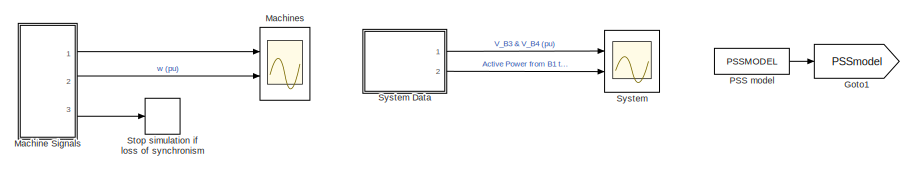
[diagram: root canvas - part 1/5, top left region]
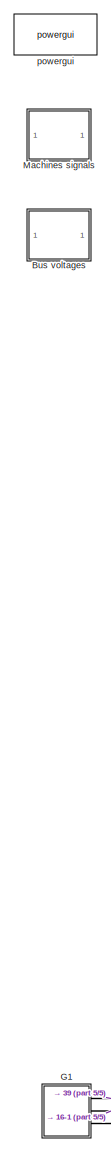
[diagram: root canvas - part 2/5, middle left region]
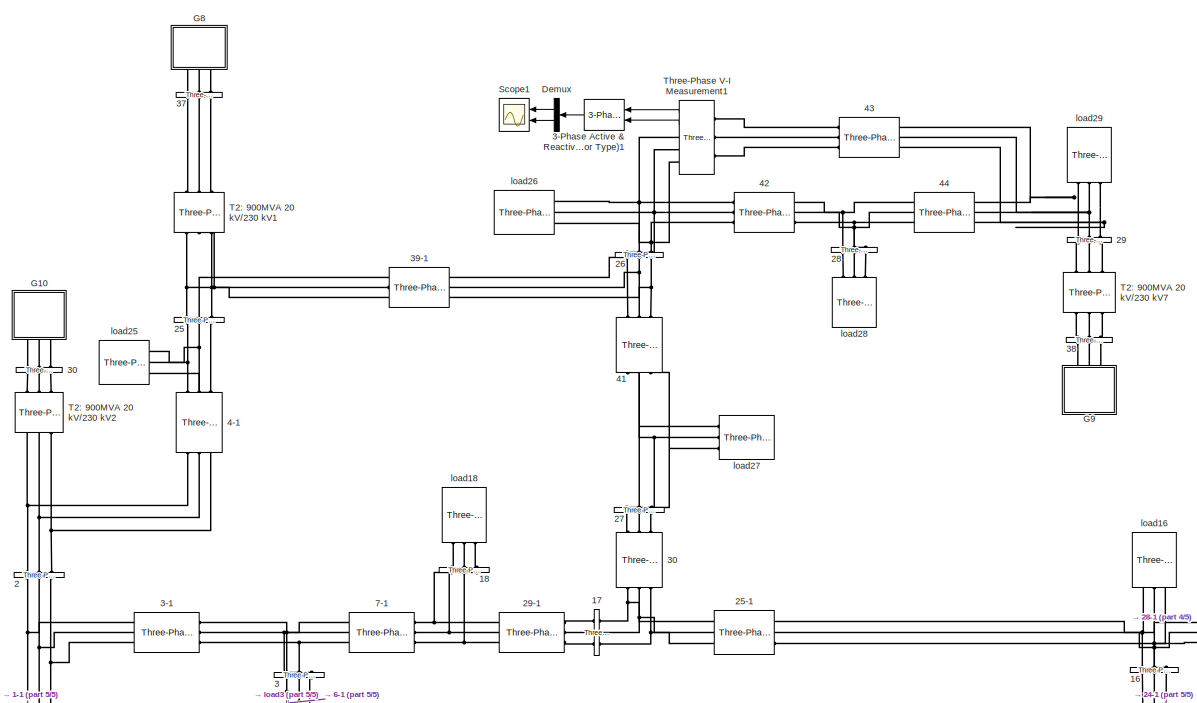
[diagram: root canvas - part 3/5, top center region]
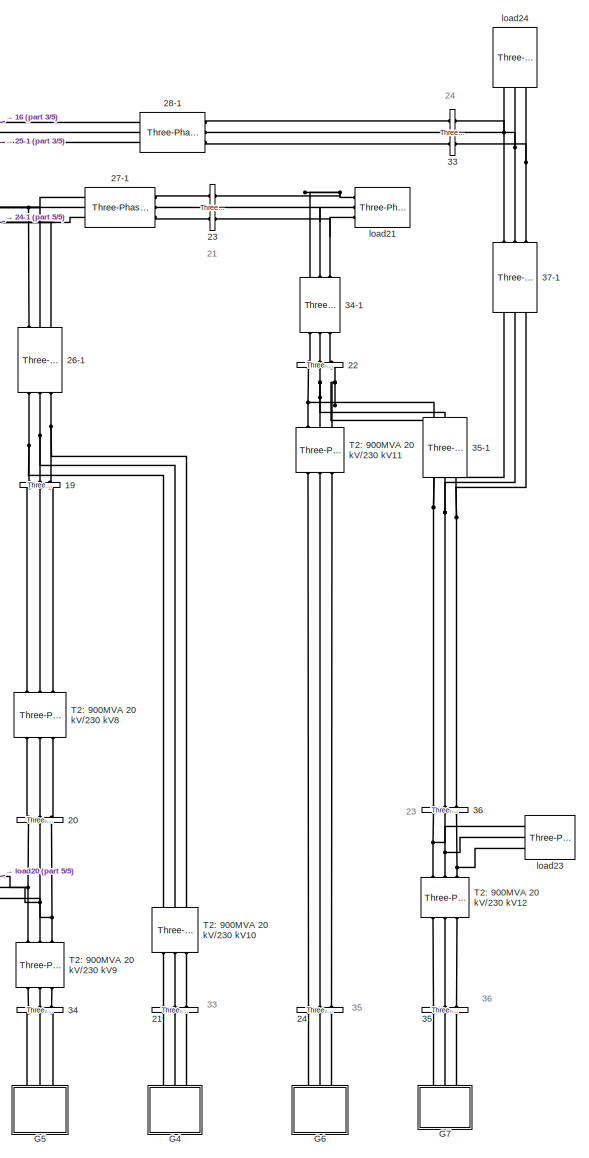
[diagram: root canvas - part 4/5, bottom right region]
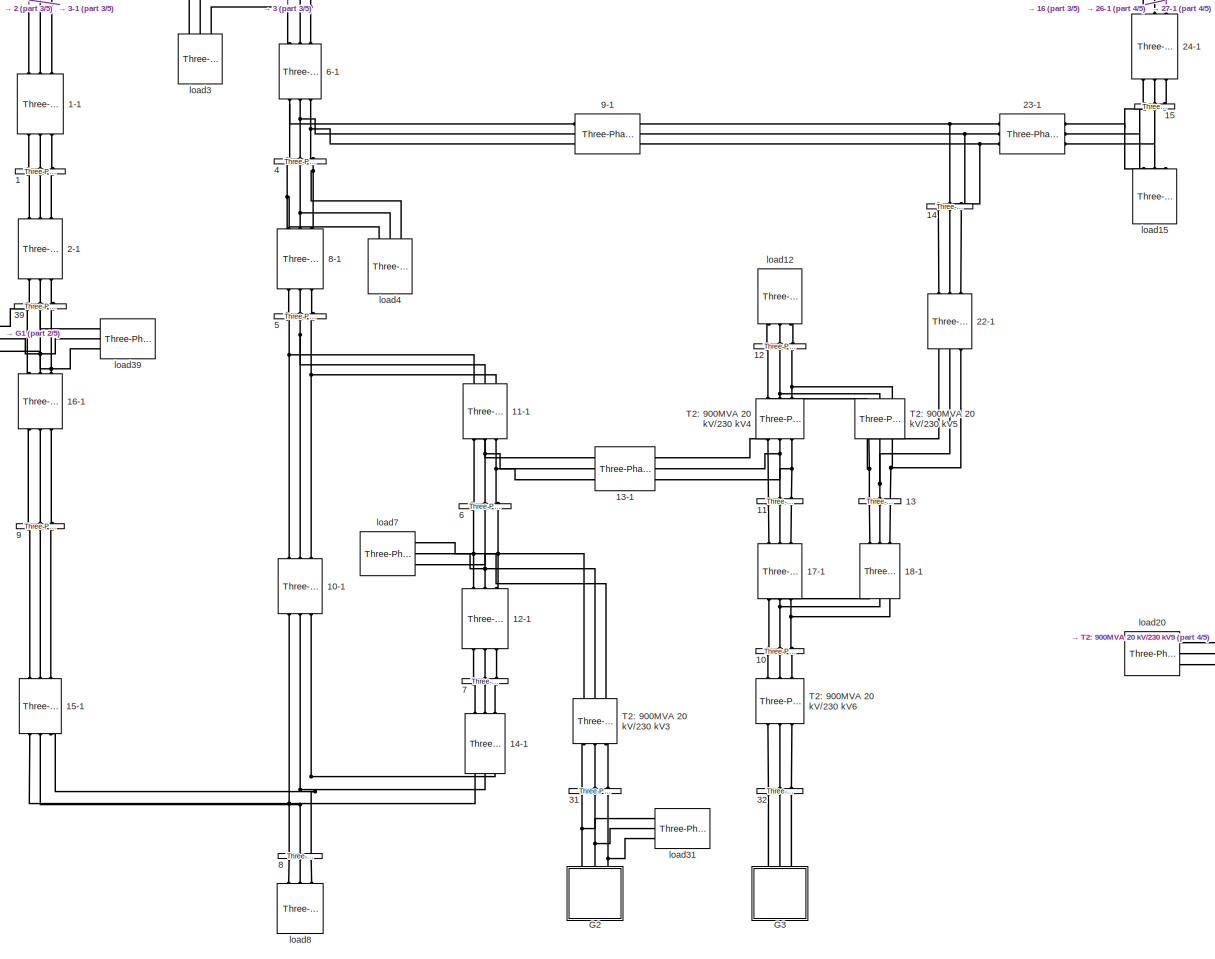
[diagram: root canvas - part 5/5, bottom center region]
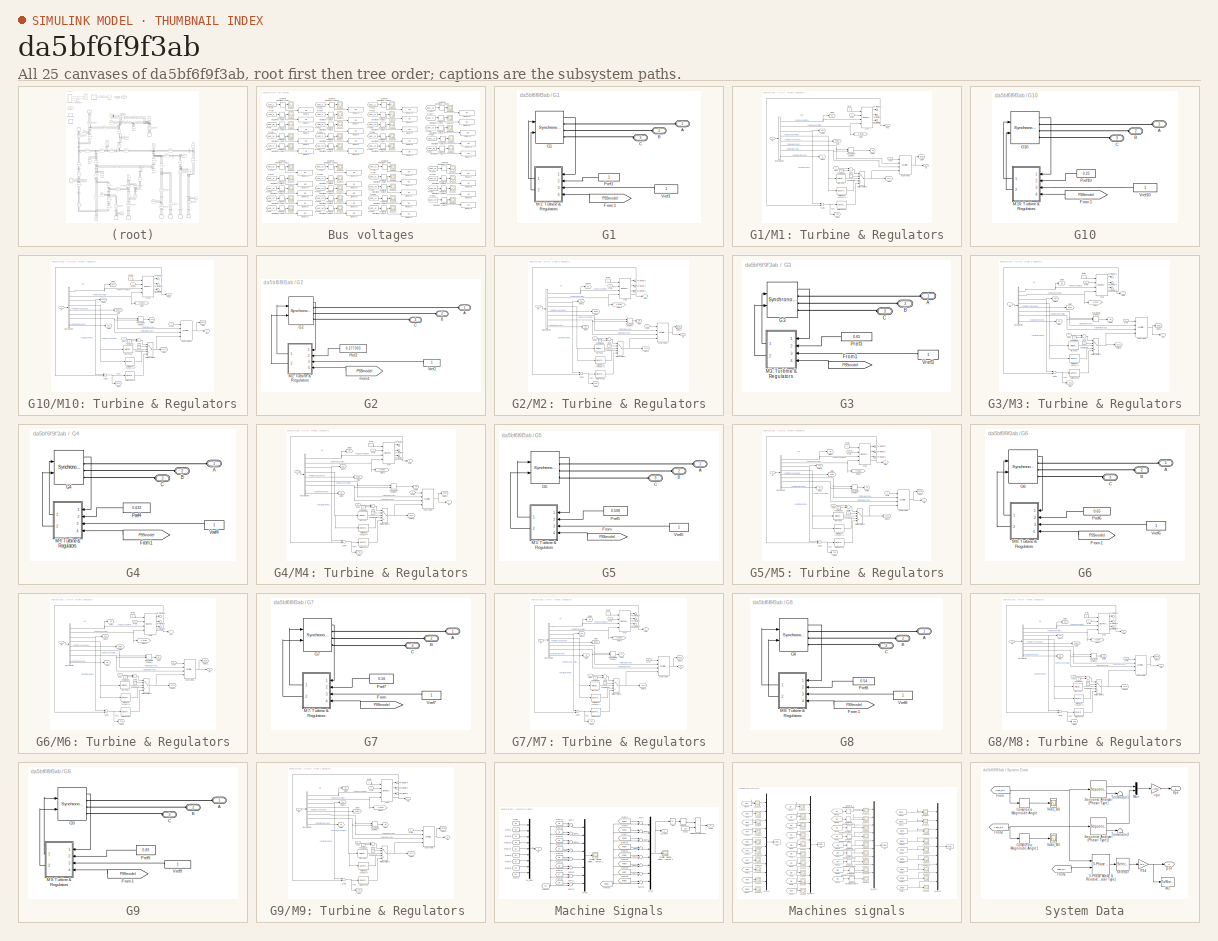
[diagram: thumbnail index - all 25 canvases of the model, root first then tree order]
MODEL slx_da5bf6f9f3ab
KIND model
CONFIG AbsTol = 1e-1
CONFIG FixedStep = auto
CONFIG MaxStep = 1/60
CONFIG MinStep = auto
CONFIG PreLoadFcn = NE39bus_data;\nPSSMODEL=1;\nLPSS=0;\nWAPSS=0;\nWAPSS2=0;
CONFIG RelTol = 1e-2
CONFIG SampleTimeConstraint = Unconstrained
CONFIG Solver = ode23tb
CONFIG SolverMode = Auto
CONFIG SolverName = ode23tb
CONFIG StartTime = 0.0
CONFIG StopTime = 5
BLOCK [Reference]  30  REF=powerlib/Elements/Three-Phase
PI Section Line
  AttributesFormatString = \n
  Capacitances = [line(30,5)  line(30,5)/3]
  Frequency = 60
  Inductances = [line(30,4)  3*line(30,4)]
  LConnTagsString = a|b|c
  Length = 1
  Ports = [0, 0, 0, 0, 0, 3, 3]
  RConnTagsString = A|B|C
  Resistances = [line(30,3)  3*line(30,3)]
  SourceBlock = powerlib/Elements/Three-Phase\nPI Section Line
  SourceType = Three-Phase PI Section Line
BLOCK [Reference] 1  REF=powerlib/Measurements/Three-Phase
V-I Measurement
  CurrentMeasurement = no
  Ipu = off
  LabelI = Iabc_B2
  LabelV = Vabc_1
  OutputType = Complex
  PSBequivalent = 0
  Pbase = 100e6
  PhasorSimulation = on
  Ports = [0, 0, 0, 0, 0, 3, 3]
  SetLabelI = on
  SetLabelV = on
  SourceBlock = powerlib/Measurements/Three-Phase\nV-I Measurement
  SourceType = Three-Phase VI Measurement
  Vbase = Bus(1,2)*1e3
  VoltageMeasurement = phase-to-phase
  Vpu = off
  VpuLL = on
BLOCK [Reference] 1-1  REF=powerlib/Elements/Three-Phase
PI Section Line
  AttributesFormatString = \n
  Capacitances = [line(1,5)  line(1,5)/3]
  Frequency = 60
  Inductances = [line(1,4)  3*line(1,4)]
  LConnTagsString = a|b|c
  Length = 1
  Ports = [0, 0, 0, 0, 0, 3, 3]
  RConnTagsString = A|B|C
  Resistances = [line(1,3)  3*line(1,3)]
  SourceBlock = powerlib/Elements/Three-Phase\nPI Section Line
  SourceType = Three-Phase PI Section Line
BLOCK [Reference] 10  REF=powerlib/Measurements/Three-Phase
V-I Measurement
  CurrentMeasurement = no
  Ipu = off
  LabelI = Iabc_B2
  LabelV = Vabc_10
  OutputType = Complex
  PSBequivalent = 0
  Pbase = 100e6
  PhasorSimulation = on
  Ports = [0, 0, 0, 0, 0, 3, 3]
  SetLabelI = on
  SetLabelV = on
  SourceBlock = powerlib/Measurements/Three-Phase\nV-I Measurement
  SourceType = Three-Phase VI Measurement
  Vbase = Bus(10,2)*1e3
  VoltageMeasurement = phase-to-phase
  Vpu = off
  VpuLL = on
BLOCK [Reference] 10-1  REF=powerlib/Elements/Three-Phase
PI Section Line
  AttributesFormatString = \n
  Capacitances = [line(10,5)  line(10,5)/3]
  Frequency = 60
  Inductances = [line(10,4)  3*line(10,4)]
  LConnTagsString = a|b|c
  Length = 1
  Ports = [0, 0, 0, 0, 0, 3, 3]
  RConnTagsString = A|B|C
  Resistances = [line(10,3)  3*line(10,3)]
  SourceBlock = powerlib/Elements/Three-Phase\nPI Section Line
  SourceType = Three-Phase PI Section Line
BLOCK [Reference] 11  REF=powerlib/Measurements/Three-Phase
V-I Measurement
  CurrentMeasurement = no
  Ipu = off
  LabelI = Iabc_B2
  LabelV = Vabc_11
  OutputType = Complex
  PSBequivalent = 0
  Pbase = 100e6
  PhasorSimulation = on
  Ports = [0, 0, 0, 0, 0, 3, 3]
  SetLabelI = on
  SetLabelV = on
  SourceBlock = powerlib/Measurements/Three-Phase\nV-I Measurement
  SourceType = Three-Phase VI Measurement
  Vbase = Bus(11,2)*1e3
  VoltageMeasurement = phase-to-phase
  Vpu = off
  VpuLL = on
BLOCK [Reference] 11-1  REF=powerlib/Elements/Three-Phase
PI Section Line
  AttributesFormatString = \n
  Capacitances = [line(11,5)   line(11,5)/3]
  Frequency = 60
  Inductances = [line(11,4)  3*line(11,4)]
  LConnTagsString = a|b|c
  Length = 1
  Ports = [0, 0, 0, 0, 0, 3, 3]
  RConnTagsString = A|B|C
  Resistances = [line(11,3)  3*line(11,3)]
  SourceBlock = powerlib/Elements/Three-Phase\nPI Section Line
  SourceType = Three-Phase PI Section Line
BLOCK [Reference] 12  REF=powerlib/Measurements/Three-Phase
V-I Measurement
  CurrentMeasurement = no
  Ipu = off
  LabelI = Iabc_B2
  LabelV = Vabc_12
  OutputType = Complex
  PSBequivalent = 0
  Pbase = 100e6
  PhasorSimulation = on
  Ports = [0, 0, 0, 0, 0, 3, 3]
  SetLabelI = on
  SetLabelV = on
  SourceBlock = powerlib/Measurements/Three-Phase\nV-I Measurement
  SourceType = Three-Phase VI Measurement
  Vbase = Bus(12,2)*1e3
  VoltageMeasurement = phase-to-phase
  Vpu = off
  VpuLL = on
BLOCK [Reference] 12-1  REF=powerlib/Elements/Three-Phase
PI Section Line
  AttributesFormatString = \n
  Capacitances = [line(12,5)   line(12,5)/3]
  Frequency = 60
  Inductances = [line(12,4)  3*line(12,4)]
  LConnTagsString = a|b|c
  Length = 1
  Ports = [0, 0, 0, 0, 0, 3, 3]
  RConnTagsString = A|B|C
  Resistances = [line(12,3)  3*line(12,3)]
  SourceBlock = powerlib/Elements/Three-Phase\nPI Section Line
  SourceType = Three-Phase PI Section Line
BLOCK [Reference] 13  REF=powerlib/Measurements/Three-Phase
V-I Measurement
  CurrentMeasurement = no
  Ipu = off
  LabelI = Iabc_B2
  LabelV = Vabc_13
  OutputType = Complex
  PSBequivalent = 0
  Pbase = 100e6
  PhasorSimulation = on
  Ports = [0, 0, 0, 0, 0, 3, 3]
  SetLabelI = on
  SetLabelV = on
  SourceBlock = powerlib/Measurements/Three-Phase\nV-I Measurement
  SourceType = Three-Phase VI Measurement
  Vbase = Bus(13,2)*1e3
  VoltageMeasurement = phase-to-phase
  Vpu = off
  VpuLL = on
BLOCK [Reference] 13-1  REF=powerlib/Elements/Three-Phase
PI Section Line
  AttributesFormatString = \n
  Capacitances = [line(13,5)  line(13,5)/3]
  Frequency = 60
  Inductances = [line(13,4)  3*line(13,4)]
  LConnTagsString = a|b|c
  Length = 1
  Ports = [0, 0, 0, 0, 0, 3, 3]
  RConnTagsString = A|B|C
  Resistances = [line(13,3) 3*line(13,3)]
  SourceBlock = powerlib/Elements/Three-Phase\nPI Section Line
  SourceType = Three-Phase PI Section Line
BLOCK [Reference] 14  REF=powerlib/Measurements/Three-Phase
V-I Measurement
  CurrentMeasurement = no
  Ipu = off
  LabelI = Iabc_B2
  LabelV = Vabc_14
  OutputType = Complex
  PSBequivalent = 0
  Pbase = 100e6
  PhasorSimulation = on
  Ports = [0, 0, 0, 0, 0, 3, 3]
  SetLabelI = on
  SetLabelV = on
  SourceBlock = powerlib/Measurements/Three-Phase\nV-I Measurement
  SourceType = Three-Phase VI Measurement
  Vbase = Bus(14,2)*1e3
  VoltageMeasurement = phase-to-phase
  Vpu = off
  VpuLL = on
BLOCK [Reference] 14-1  REF=powerlib/Elements/Three-Phase
PI Section Line
  AttributesFormatString = \n
  Capacitances = [line(14,5)   line(14,5)/3]
  Frequency = 60
  Inductances = [ line(14,4)  3*line(14,4)]
  LConnTagsString = a|b|c
  Length = 1
  Ports = [0, 0, 0, 0, 0, 3, 3]
  RConnTagsString = A|B|C
  Resistances = [ line(14,3) 3*line(14,3)]
  SourceBlock = powerlib/Elements/Three-Phase\nPI Section Line
  SourceType = Three-Phase PI Section Line
BLOCK [Reference] 15  REF=powerlib/Measurements/Three-Phase
V-I Measurement
  CurrentMeasurement = no
  Ipu = off
  LabelI = Iabc_B2
  LabelV = Vabc_15
  OutputType = Complex
  PSBequivalent = 0
  Pbase = 100e6
  PhasorSimulation = on
  Ports = [0, 0, 0, 0, 0, 3, 3]
  SetLabelI = on
  SetLabelV = on
  SourceBlock = powerlib/Measurements/Three-Phase\nV-I Measurement
  SourceType = Three-Phase VI Measurement
  Vbase = Bus(15,2)*1e3
  VoltageMeasurement = phase-to-phase
  Vpu = off
  VpuLL = on
BLOCK [Reference] 15-1  REF=powerlib/Elements/Three-Phase
PI Section Line
  AttributesFormatString = \n
  Capacitances = [line(15,5)   line(15,5)/5]
  Frequency = 60
  Inductances = [line(15,4)  3*line(15,4)]
  LConnTagsString = a|b|c
  Length = 1
  Ports = [0, 0, 0, 0, 0, 3, 3]
  RConnTagsString = A|B|C
  Resistances = [line(15,3)  3*line(15,3)]
  SourceBlock = powerlib/Elements/Three-Phase\nPI Section Line
  SourceType = Three-Phase PI Section Line
BLOCK [Reference] 16  REF=powerlib/Measurements/Three-Phase
V-I Measurement
  CurrentMeasurement = no
  Ipu = off
  LabelI = Iabc_B2
  LabelV = Vabc_16
  OutputType = Complex
  PSBequivalent = 0
  Pbase = 100e6
  PhasorSimulation = on
  Ports = [0, 0, 0, 0, 0, 3, 3]
  SetLabelI = on
  SetLabelV = on
  SourceBlock = powerlib/Measurements/Three-Phase\nV-I Measurement
  SourceType = Three-Phase VI Measurement
  Vbase = Bus(16,2)*1e3
  VoltageMeasurement = phase-to-phase
  Vpu = off
  VpuLL = on
BLOCK [Reference] 16-1  REF=powerlib/Elements/Three-Phase
PI Section Line
  AttributesFormatString = \n
  Capacitances = [line(8,5)   line(8,5)/3]
  Frequency = 60
  Inductances = [line(8,4)  3*line(8,4)]
  LConnTagsString = a|b|c
  Length = 1
  Ports = [0, 0, 0, 0, 0, 3, 3]
  RConnTagsString = A|B|C
  Resistances = [line(8,3)  3*line(8,3)]
  SourceBlock = powerlib/Elements/Three-Phase\nPI Section Line
  SourceType = Three-Phase PI Section Line
BLOCK [Reference] 17  REF=powerlib/Measurements/Three-Phase
V-I Measurement
  CurrentMeasurement = no
  Ipu = off
  LabelI = Iabc_B2
  LabelV = Vabc_17
  OutputType = Complex
  PSBequivalent = 0
  Pbase = 100e6
  PhasorSimulation = on
  Ports = [0, 0, 0, 0, 0, 3, 3]
  SetLabelI = on
  SetLabelV = on
  SourceBlock = powerlib/Measurements/Three-Phase\nV-I Measurement
  SourceType = Three-Phase VI Measurement
  Vbase = Bus(17,2)*1e3
  VoltageMeasurement = phase-to-phase
  Vpu = off
  VpuLL = on
BLOCK [Reference] 17-1  REF=powerlib/Elements/Three-Phase
PI Section Line
  AttributesFormatString = \n
  Capacitances = [line(17,5)   line(17,5)/3]
  Frequency = 60
  Inductances = [line(17,4)  3*line(17,4)]
  LConnTagsString = a|b|c
  Length = 1
  Ports = [0, 0, 0, 0, 0, 3, 3]
  RConnTagsString = A|B|C
  Resistances = [line(17,3)  3*line(17,3)]
  SourceBlock = powerlib/Elements/Three-Phase\nPI Section Line
  SourceType = Three-Phase PI Section Line
BLOCK [Reference] 18  REF=powerlib/Measurements/Three-Phase
V-I Measurement
  CurrentMeasurement = no
  Ipu = off
  LabelI = Iabc_B2
  LabelV = Vabc_18
  OutputType = Complex
  PSBequivalent = 0
  Pbase = 100e6
  PhasorSimulation = on
  Ports = [0, 0, 0, 0, 0, 3, 3]
  SetLabelI = on
  SetLabelV = on
  SourceBlock = powerlib/Measurements/Three-Phase\nV-I Measurement
  SourceType = Three-Phase VI Measurement
  Vbase = Bus(18,2)*1e3
  VoltageMeasurement = phase-to-phase
  Vpu = off
  VpuLL = on
BLOCK [Reference] 18-1  REF=powerlib/Elements/Three-Phase
PI Section Line
  AttributesFormatString = \n
  Capacitances = [line(18,5)   line(18,5)/3]
  Frequency = 60
  Inductances = [line(18,4)  3*line(18,4)]
  LConnTagsString = a|b|c
  Length = 1
  Ports = [0, 0, 0, 0, 0, 3, 3]
  RConnTagsString = A|B|C
  Resistances = [line(18,3)  3*line(18,3)]
  SourceBlock = powerlib/Elements/Three-Phase\nPI Section Line
  SourceType = Three-Phase PI Section Line
BLOCK [Reference] 19  REF=powerlib/Measurements/Three-Phase
V-I Measurement
  CurrentMeasurement = no
  Ipu = off
  LabelI = Iabc_B2
  LabelV = Vabc_19
  OutputType = Complex
  PSBequivalent = 0
  Pbase = 100e6
  PhasorSimulation = on
  Ports = [0, 0, 0, 0, 0, 3, 3]
  SetLabelI = on
  SetLabelV = on
  SourceBlock = powerlib/Measurements/Three-Phase\nV-I Measurement
  SourceType = Three-Phase VI Measurement
  Vbase = Bus(19,2)*1e3
  VoltageMeasurement = phase-to-phase
  Vpu = off
  VpuLL = on
BLOCK [Reference] 2  REF=powerlib/Measurements/Three-Phase
V-I Measurement
  CurrentMeasurement = no
  Ipu = off
  LabelI = Iabc_B2
  LabelV = Vabc_2
  OutputType = Complex
  PSBequivalent = 0
  Pbase = 100e6
  PhasorSimulation = on
  Ports = [0, 0, 0, 0, 0, 3, 3]
  SetLabelI = on
  SetLabelV = on
  SourceBlock = powerlib/Measurements/Three-Phase\nV-I Measurement
  SourceType = Three-Phase VI Measurement
  Vbase = Bus(2,2)*1e3
  VoltageMeasurement = phase-to-phase
  Vpu = off
  VpuLL = on
BLOCK [Reference] 2-1  REF=powerlib/Elements/Three-Phase
PI Section Line
  AttributesFormatString = \n
  Capacitances = [line(2,5)   line(2,5)/3]
  Frequency = 60
  Inductances = [line(2,4)  3*line(2,4)]
  LConnTagsString = a|b|c
  Length = 1
  Ports = [0, 0, 0, 0, 0, 3, 3]
  RConnTagsString = A|B|C
  Resistances = [line(2,3)  3*line(2,3)]
  SourceBlock = powerlib/Elements/Three-Phase\nPI Section Line
  SourceType = Three-Phase PI Section Line
BLOCK [Reference] 20  REF=powerlib/Measurements/Three-Phase
V-I Measurement
  CurrentMeasurement = no
  Ipu = off
  LabelI = Iabc_B2
  LabelV = Vabc_20
  OutputType = Complex
  PSBequivalent = 0
  Pbase = 100e6
  PhasorSimulation = on
  Ports = [0, 0, 0, 0, 0, 3, 3]
  SetLabelI = on
  SetLabelV = on
  SourceBlock = powerlib/Measurements/Three-Phase\nV-I Measurement
  SourceType = Three-Phase VI Measurement
  Vbase = Bus(20,2)*1e3
  VoltageMeasurement = phase-to-phase
  Vpu = off
  VpuLL = on
BLOCK [Reference] 21  REF=powerlib/Measurements/Three-Phase
V-I Measurement
  CurrentMeasurement = no
  Ipu = off
  LabelI = Iabc_B2
  LabelV = Vabc_33
  OutputType = Complex
  PSBequivalent = 0
  Pbase = 100e6
  PhasorSimulation = on
  Ports = [0, 0, 0, 0, 0, 3, 3]
  SetLabelI = on
  SetLabelV = on
  SourceBlock = powerlib/Measurements/Three-Phase\nV-I Measurement
  SourceType = Three-Phase VI Measurement
  Vbase = Bus(33,2)*1e3
  VoltageMeasurement = phase-to-phase
  Vpu = off
  VpuLL = on
BLOCK [Reference] 22  REF=powerlib/Measurements/Three-Phase
V-I Measurement
  CurrentMeasurement = no
  Ipu = off
  LabelI = Iabc_B2
  LabelV = Vabc_22
  OutputType = Complex
  PSBequivalent = 0
  Pbase = 100e6
  PhasorSimulation = on
  Ports = [0, 0, 0, 0, 0, 3, 3]
  SetLabelI = on
  SetLabelV = on
  SourceBlock = powerlib/Measurements/Three-Phase\nV-I Measurement
  SourceType = Three-Phase VI Measurement
  Vbase = Bus(22,2)*1e3
  VoltageMeasurement = phase-to-phase
  Vpu = off
  VpuLL = on
BLOCK [Reference] 22-1  REF=powerlib/Elements/Three-Phase
PI Section Line
  AttributesFormatString = \n
  Capacitances = [line(22,5)   line(22,5)/3]
  Frequency = 60
  Inductances = [line(22,4)  3*line(22,4)]
  LConnTagsString = a|b|c
  Length = 1
  Ports = [0, 0, 0, 0, 0, 3, 3]
  RConnTagsString = A|B|C
  Resistances = [line(22,3)  3*line(22,3)]
  SourceBlock = powerlib/Elements/Three-Phase\nPI Section Line
  SourceType = Three-Phase PI Section Line
BLOCK [Reference] 23  REF=powerlib/Measurements/Three-Phase
V-I Measurement
  CurrentMeasurement = no
  Ipu = off
  LabelI = Iabc_B2
  LabelV = Vabc_21
  OutputType = Complex
  PSBequivalent = 0
  Pbase = 100e6
  PhasorSimulation = on
  Ports = [0, 0, 0, 0, 0, 3, 3]
  SetLabelI = on
  SetLabelV = on
  SourceBlock = powerlib/Measurements/Three-Phase\nV-I Measurement
  SourceType = Three-Phase VI Measurement
  Vbase = Bus(21,2)*1e3
  VoltageMeasurement = phase-to-phase
  Vpu = off
  VpuLL = on
BLOCK [Reference] 23-1  REF=powerlib/Elements/Three-Phase
PI Section Line
  AttributesFormatString = \n
  Capacitances = [line(23,5)   line(23,5)/3]
  Frequency = 60
  Inductances = [line(23,4)  3*line(23,4)]
  LConnTagsString = a|b|c
  Length = 1
  Ports = [0, 0, 0, 0, 0, 3, 3]
  RConnTagsString = A|B|C
  Resistances = [line(23,3)  3*line(23,3)]
  SourceBlock = powerlib/Elements/Three-Phase\nPI Section Line
  SourceType = Three-Phase PI Section Line
BLOCK [Reference] 24  REF=powerlib/Measurements/Three-Phase
V-I Measurement
  CurrentMeasurement = no
  Ipu = off
  LabelI = Iabc_B2
  LabelV = Vabc_35
  OutputType = Complex
  PSBequivalent = 0
  Pbase = 100e6
  PhasorSimulation = on
  Ports = [0, 0, 0, 0, 0, 3, 3]
  SetLabelI = on
  SetLabelV = on
  SourceBlock = powerlib/Measurements/Three-Phase\nV-I Measurement
  SourceType = Three-Phase VI Measurement
  Vbase = Bus(35,2)*1e3
  VoltageMeasurement = phase-to-phase
  Vpu = off
  VpuLL = on
BLOCK [Reference] 24-1  REF=powerlib/Elements/Three-Phase
PI Section Line
  AttributesFormatString = \n
  Capacitances = [line(24,5)   line(24,5)/3]
  Frequency = 60
  Inductances = [line(24,4)  3*line(24,4)]
  LConnTagsString = a|b|c
  Length = 1
  Ports = [0, 0, 0, 0, 0, 3, 3]
  RConnTagsString = A|B|C
  Resistances = [line(24,3)  3*line(24,3)]
  SourceBlock = powerlib/Elements/Three-Phase\nPI Section Line
  SourceType = Three-Phase PI Section Line
BLOCK [Reference] 25  REF=powerlib/Measurements/Three-Phase
V-I Measurement
  CurrentMeasurement = no
  Ipu = off
  LabelI = Iabc_B2
  LabelV = Vabc_25
  OutputType = Complex
  PSBequivalent = 0
  Pbase = 100e6
  PhasorSimulation = on
  Ports = [0, 0, 0, 0, 0, 3, 3]
  SetLabelI = on
  SetLabelV = on
  SourceBlock = powerlib/Measurements/Three-Phase\nV-I Measurement
  SourceType = Three-Phase VI Measurement
  Vbase = Bus(25,2)*1e3
  VoltageMeasurement = phase-to-phase
  Vpu = off
  VpuLL = on
BLOCK [Reference] 25-1  REF=powerlib/Elements/Three-Phase
PI Section Line
  AttributesFormatString = \n
  Capacitances = [line(25,5)  line(25,5)/3]
  Frequency = 60
  Inductances = [ line(25,4)  3*line(25,4)]
  LConnTagsString = a|b|c
  Length = 1
  Ports = [0, 0, 0, 0, 0, 3, 3]
  RConnTagsString = A|B|C
  Resistances = [ line(25,3)  3*line(25,3)]
  SourceBlock = powerlib/Elements/Three-Phase\nPI Section Line
  SourceType = Three-Phase PI Section Line
BLOCK [Reference] 26  REF=powerlib/Measurements/Three-Phase
V-I Measurement
  CurrentMeasurement = no
  Ipu = off
  LabelI = Iabc_B2
  LabelV = Vabc_26
  OutputType = Complex
  PSBequivalent = 0
  Pbase = 100e6
  PhasorSimulation = on
  Ports = [0, 0, 0, 0, 0, 3, 3]
  SetLabelI = on
  SetLabelV = on
  SourceBlock = powerlib/Measurements/Three-Phase\nV-I Measurement
  SourceType = Three-Phase VI Measurement
  Vbase = Bus(26,2)*1e3
  VoltageMeasurement = phase-to-phase
  Vpu = off
  VpuLL = on
BLOCK [Reference] 26-1  REF=powerlib/Elements/Three-Phase
PI Section Line
  AttributesFormatString = \n
  Capacitances = [line(26,5)   line(26,5)/3]
  Frequency = 60
  Inductances = [line(26,4)  3*line(26,4)]
  LConnTagsString = a|b|c
  Length = 1
  Ports = [0, 0, 0, 0, 0, 3, 3]
  RConnTagsString = A|B|C
  Resistances = [line(26,3)   3*line(26,3)]
  SourceBlock = powerlib/Elements/Three-Phase\nPI Section Line
  SourceType = Three-Phase PI Section Line
BLOCK [Reference] 27  REF=powerlib/Measurements/Three-Phase
V-I Measurement
  CurrentMeasurement = no
  Ipu = off
  LabelI = Iabc_B2
  LabelV = Vabc_27
  OutputType = Complex
  PSBequivalent = 0
  Pbase = 100e6
  PhasorSimulation = on
  Ports = [0, 0, 0, 0, 0, 3, 3]
  SetLabelI = on
  SetLabelV = on
  SourceBlock = powerlib/Measurements/Three-Phase\nV-I Measurement
  SourceType = Three-Phase VI Measurement
  Vbase = Bus(27,2)*1e3
  VoltageMeasurement = phase-to-phase
  Vpu = off
  VpuLL = on
BLOCK [Reference] 27-1  REF=powerlib/Elements/Three-Phase
PI Section Line
  AttributesFormatString = \n
  Capacitances = [line(27,5)   line(27,5)/3]
  Frequency = 60
  Inductances = [line(27,4)  3*line(27,4)]
  LConnTagsString = a|b|c
  Length = 1
  Ports = [0, 0, 0, 0, 0, 3, 3]
  RConnTagsString = A|B|C
  Resistances = [line(27,3)  3*line(27,3)]
  SourceBlock = powerlib/Elements/Three-Phase\nPI Section Line
  SourceType = Three-Phase PI Section Line
BLOCK [Reference] 28  REF=powerlib/Measurements/Three-Phase
V-I Measurement
  CurrentMeasurement = no
  Ipu = off
  LabelI = Iabc_B2
  LabelV = Vabc_28
  OutputType = Complex
  PSBequivalent = 0
  Pbase = 100e6
  PhasorSimulation = on
  Ports = [0, 0, 0, 0, 0, 3, 3]
  SetLabelI = on
  SetLabelV = on
  SourceBlock = powerlib/Measurements/Three-Phase\nV-I Measurement
  SourceType = Three-Phase VI Measurement
  Vbase = Bus(28,2)*1e3
  VoltageMeasurement = phase-to-phase
  Vpu = off
  VpuLL = on
BLOCK [Reference] 28-1  REF=powerlib/Elements/Three-Phase
PI Section Line
  AttributesFormatString = \n
  Capacitances = [line(28,5)   line(28,5)/3]
  Frequency = 60
  Inductances = [line(28,4)  3*line(28,4)]
  LConnTagsString = a|b|c
  Length = 1
  Ports = [0, 0, 0, 0, 0, 3, 3]
  RConnTagsString = A|B|C
  Resistances = [line(28,3) 3*line(28,3) ]
  SourceBlock = powerlib/Elements/Three-Phase\nPI Section Line
  SourceType = Three-Phase PI Section Line
BLOCK [Reference] 29  REF=powerlib/Measurements/Three-Phase
V-I Measurement
  CurrentMeasurement = no
  Ipu = off
  LabelI = Iabc_B2
  LabelV = Vabc_29
  OutputType = Complex
  PSBequivalent = 0
  Pbase = 100e6
  PhasorSimulation = on
  Ports = [0, 0, 0, 0, 0, 3, 3]
  SetLabelI = on
  SetLabelV = on
  SourceBlock = powerlib/Measurements/Three-Phase\nV-I Measurement
  SourceType = Three-Phase VI Measurement
  Vbase = Bus(29,2)*1e3
  VoltageMeasurement = phase-to-phase
  Vpu = off
  VpuLL = on
BLOCK [Reference] 29-1  REF=powerlib/Elements/Three-Phase
PI Section Line
  AttributesFormatString = \n
  Capacitances = [line(29,5)    line(29,5)/3]
  Frequency = 60
  Inductances = [ line(29,4)  3*line(29,4)]
  LConnTagsString = a|b|c
  Length = 1
  Ports = [0, 0, 0, 0, 0, 3, 3]
  RConnTagsString = A|B|C
  Resistances = [ line(29,3) 3*line(29,3)]
  SourceBlock = powerlib/Elements/Three-Phase\nPI Section Line
  SourceType = Three-Phase PI Section Line
BLOCK [Reference] 3  REF=powerlib/Measurements/Three-Phase
V-I Measurement
  CurrentMeasurement = yes
  Ipu = off
  LabelI = Iabc_B3
  LabelV = Vabc_B3
  OutputType = Complex
  PSBequivalent = 0
  Pbase = 100e6
  PhasorSimulation = on
  Ports = [0, 0, 0, 0, 0, 3, 3]
  SetLabelI = on
  SetLabelV = on
  SourceBlock = powerlib/Measurements/Three-Phase\nV-I Measurement
  SourceType = Three-Phase VI Measurement
  Vbase = Bus(3,2)*1e3
  VoltageMeasurement = phase-to-phase
  Vpu = off
  VpuLL = on
BLOCK [Reference] 3-1  REF=powerlib/Elements/Three-Phase
PI Section Line
  AttributesFormatString = \n
  Capacitances = [line(3,5)   line(3,5)/3]
  Frequency = 60
  Inductances = [line(3,4)  3*line(3,4)]
  LConnTagsString = a|b|c
  Length = 1
  Ports = [0, 0, 0, 0, 0, 3, 3]
  RConnTagsString = A|B|C
  Resistances = [line(3,3) 3*line(3,3)]
  SourceBlock = powerlib/Elements/Three-Phase\nPI Section Line
  SourceType = Three-Phase PI Section Line
BLOCK [Reference] 3-Phase Active & Reactive Power (Phasor Type)1  REF=powerlib_extras/Phasor
Library/3-Phase
Active & Reactive Power
(Phasor Type)
  Ports = [2, 1]
  SourceBlock = powerlib_extras/Phasor\nLibrary/3-Phase\nActive & Reactive Power\n(Phasor Type)
  SourceType = 3-Phase Active & Reactive Power (Phasor Type)
BLOCK [Reference] 30  REF=powerlib/Measurements/Three-Phase
V-I Measurement
  CurrentMeasurement = no
  Ipu = off
  LabelI = Iabc_B2
  LabelV = Vabc_30
  OutputType = Complex
  PSBequivalent = 0
  Pbase = 100e6
  PhasorSimulation = on
  Ports = [0, 0, 0, 0, 0, 3, 3]
  SetLabelI = on
  SetLabelV = on
  SourceBlock = powerlib/Measurements/Three-Phase\nV-I Measurement
  SourceType = Three-Phase VI Measurement
  Vbase = Bus(30,2)*1e3
  VoltageMeasurement = phase-to-phase
  Vpu = off
  VpuLL = on
BLOCK [Reference] 31  REF=powerlib/Measurements/Three-Phase
V-I Measurement
  CurrentMeasurement = no
  Ipu = off
  LabelI = Iabc_B2
  LabelV = Vabc_31
  OutputType = Complex
  PSBequivalent = 0
  Pbase = 100e6
  PhasorSimulation = on
  Ports = [0, 0, 0, 0, 0, 3, 3]
  SetLabelI = on
  SetLabelV = on
  SourceBlock = powerlib/Measurements/Three-Phase\nV-I Measurement
  SourceType = Three-Phase VI Measurement
  Vbase = Bus(31,2)*1e3
  VoltageMeasurement = phase-to-phase
  Vpu = off
  VpuLL = on
BLOCK [Reference] 32  REF=powerlib/Measurements/Three-Phase
V-I Measurement
  CurrentMeasurement = no
  Ipu = off
  LabelI = Iabc_B2
  LabelV = Vabc_32
  OutputType = Complex
  PSBequivalent = 0
  Pbase = 100e6
  PhasorSimulation = on
  Ports = [0, 0, 0, 0, 0, 3, 3]
  SetLabelI = on
  SetLabelV = on
  SourceBlock = powerlib/Measurements/Three-Phase\nV-I Measurement
  SourceType = Three-Phase VI Measurement
  Vbase = Bus(32,2)*1e3
  VoltageMeasurement = phase-to-phase
  Vpu = off
  VpuLL = on
BLOCK [Reference] 33  REF=powerlib/Measurements/Three-Phase
V-I Measurement
  CurrentMeasurement = no
  Ipu = off
  LabelI = Iabc_B2
  LabelV = Vabc_24
  OutputType = Complex
  PSBequivalent = 0
  Pbase = 100e6
  PhasorSimulation = on
  Ports = [0, 0, 0, 0, 0, 3, 3]
  SetLabelI = on
  SetLabelV = on
  SourceBlock = powerlib/Measurements/Three-Phase\nV-I Measurement
  SourceType = Three-Phase VI Measurement
  Vbase = Bus(24,2)*1e3
  VoltageMeasurement = phase-to-phase
  Vpu = off
  VpuLL = on
BLOCK [Reference] 34  REF=powerlib/Measurements/Three-Phase
V-I Measurement
  CurrentMeasurement = no
  Ipu = off
  LabelI = Iabc_B2
  LabelV = Vabc_34
  OutputType = Complex
  PSBequivalent = 0
  Pbase = 100e6
  PhasorSimulation = on
  Ports = [0, 0, 0, 0, 0, 3, 3]
  SetLabelI = on
  SetLabelV = on
  SourceBlock = powerlib/Measurements/Three-Phase\nV-I Measurement
  SourceType = Three-Phase VI Measurement
  Vbase = Bus(34,2)*1e3
  VoltageMeasurement = phase-to-phase
  Vpu = off
  VpuLL = on
BLOCK [Reference] 34-1  REF=powerlib/Elements/Three-Phase
PI Section Line
  AttributesFormatString = \n
  Capacitances = [line(34,5)   line(34,5)/3]
  Frequency = 60
  Inductances = [line(34,4)  3*line(34,4)]
  LConnTagsString = a|b|c
  Length = 1
  Ports = [0, 0, 0, 0, 0, 3, 3]
  RConnTagsString = A|B|C
  Resistances = [line(34,3)  3*line(34,3) ]
  SourceBlock = powerlib/Elements/Three-Phase\nPI Section Line
  SourceType = Three-Phase PI Section Line
BLOCK [Reference] 35  REF=powerlib/Measurements/Three-Phase
V-I Measurement
  CurrentMeasurement = no
  Ipu = off
  LabelI = Iabc_B2
  LabelV = Vabc_36
  OutputType = Complex
  PSBequivalent = 0
  Pbase = 100e6
  PhasorSimulation = on
  Ports = [0, 0, 0, 0, 0, 3, 3]
  SetLabelI = on
  SetLabelV = on
  SourceBlock = powerlib/Measurements/Three-Phase\nV-I Measurement
  SourceType = Three-Phase VI Measurement
  Vbase = Bus(36,2)*1e3
  VoltageMeasurement = phase-to-phase
  Vpu = off
  VpuLL = on
BLOCK [Reference] 35-1  REF=powerlib/Elements/Three-Phase
PI Section Line
  AttributesFormatString = \n
  Capacitances = [line(35,5)   line(35,5)/3]
  Frequency = 60
  Inductances = [line(35,4)  3*line(35,4)]
  LConnTagsString = a|b|c
  Length = 1
  Ports = [0, 0, 0, 0, 0, 3, 3]
  RConnTagsString = A|B|C
  Resistances = [line(35,3)  3*line(35,3)]
  SourceBlock = powerlib/Elements/Three-Phase\nPI Section Line
  SourceType = Three-Phase PI Section Line
BLOCK [Reference] 36  REF=powerlib/Measurements/Three-Phase
V-I Measurement
  CurrentMeasurement = no
  Ipu = off
  LabelI = Iabc_B2
  LabelV = Vabc_23
  OutputType = Complex
  PSBequivalent = 0
  Pbase = 100e6
  PhasorSimulation = on
  Ports = [0, 0, 0, 0, 0, 3, 3]
  SetLabelI = on
  SetLabelV = on
  SourceBlock = powerlib/Measurements/Three-Phase\nV-I Measurement
  SourceType = Three-Phase VI Measurement
  Vbase = Bus(23,2)*1e3
  VoltageMeasurement = phase-to-phase
  Vpu = off
  VpuLL = on
BLOCK [Reference] 37  REF=powerlib/Measurements/Three-Phase
V-I Measurement
  CurrentMeasurement = no
  Ipu = off
  LabelI = Iabc_B2
  LabelV = Vabc_37
  OutputType = Complex
  PSBequivalent = 0
  Pbase = 100e6
  PhasorSimulation = on
  Ports = [0, 0, 0, 0, 0, 3, 3]
  SetLabelI = on
  SetLabelV = on
  SourceBlock = powerlib/Measurements/Three-Phase\nV-I Measurement
  SourceType = Three-Phase VI Measurement
  Vbase = Bus(37,2)*1e3
  VoltageMeasurement = phase-to-phase
  Vpu = off
  VpuLL = on
BLOCK [Reference] 37-1  REF=powerlib/Elements/Three-Phase
PI Section Line
  AttributesFormatString = \n
  Capacitances = [line(37,5)   line(37,5)/3]
  Frequency = 60
  Inductances = [line(37,4)  3*line(37,4)]
  LConnTagsString = a|b|c
  Length = 1
  Ports = [0, 0, 0, 0, 0, 3, 3]
  RConnTagsString = A|B|C
  Resistances = [line(37,3)  3*line(37,3) ]
  SourceBlock = powerlib/Elements/Three-Phase\nPI Section Line
  SourceType = Three-Phase PI Section Line
BLOCK [Reference] 38  REF=powerlib/Measurements/Three-Phase
V-I Measurement
  CurrentMeasurement = no
  Ipu = off
  LabelI = Iabc_B2
  LabelV = Vabc_38
  OutputType = Complex
  PSBequivalent = 0
  Pbase = 100e6
  PhasorSimulation = on
  Ports = [0, 0, 0, 0, 0, 3, 3]
  SetLabelI = off
  SetLabelV = on
  SourceBlock = powerlib/Measurements/Three-Phase\nV-I Measurement
  SourceType = Three-Phase VI Measurement
  Vbase = Bus(38,2)*1e3
  VoltageMeasurement = phase-to-phase
  Vpu = off
  VpuLL = on
BLOCK [Reference] 39  REF=powerlib/Measurements/Three-Phase
V-I Measurement
  CurrentMeasurement = no
  Ipu = off
  LabelI = Iabc_B2
  LabelV = Vabc_39
  OutputType = Complex
  PSBequivalent = 0
  Pbase = 100e6
  PhasorSimulation = on
  Ports = [0, 0, 0, 0, 0, 3, 3]
  SetLabelI = on
  SetLabelV = on
  SourceBlock = powerlib/Measurements/Three-Phase\nV-I Measurement
  SourceType = Three-Phase VI Measurement
  Vbase = Bus(39,2)*1e3
  VoltageMeasurement = phase-to-phase
  Vpu = off
  VpuLL = on
BLOCK [Reference] 39-1  REF=powerlib/Elements/Three-Phase
PI Section Line
  AttributesFormatString = \n
  Capacitances = [line(39,5)  line(39,5)/3]
  Frequency = 60
  Inductances = [ line(39,4)  3*line(39,4)]
  LConnTagsString = a|b|c
  Length = 1
  Ports = [0, 0, 0, 0, 0, 3, 3]
  RConnTagsString = A|B|C
  Resistances = [ line(39,3) 3* line(39,3)]
  SourceBlock = powerlib/Elements/Three-Phase\nPI Section Line
  SourceType = Three-Phase PI Section Line
BLOCK [Reference] 4  REF=powerlib/Measurements/Three-Phase
V-I Measurement
  CurrentMeasurement = yes
  Ipu = off
  LabelI = Iabc_B4
  LabelV = Vabc_B4
  OutputType = Complex
  PSBequivalent = 0
  Pbase = 100e6
  PhasorSimulation = on
  Ports = [0, 0, 0, 0, 0, 3, 3]
  SetLabelI = on
  SetLabelV = on
  SourceBlock = powerlib/Measurements/Three-Phase\nV-I Measurement
  SourceType = Three-Phase VI Measurement
  Vbase = Bus(4,2)*1e3
  VoltageMeasurement = phase-to-phase
  Vpu = off
  VpuLL = on
BLOCK [Reference] 4-1  REF=powerlib/Elements/Three-Phase
PI Section Line
  AttributesFormatString = \n
  Capacitances = [line(4,5)   line(4,5)/3]
  Frequency = 60
  Inductances = [line(4,4)  3*line(4,4)]
  LConnTagsString = a|b|c
  Length = 1
  Ports = [0, 0, 0, 0, 0, 3, 3]
  RConnTagsString = A|B|C
  Resistances = [line(4,3)  3*line(4,3)]
  SourceBlock = powerlib/Elements/Three-Phase\nPI Section Line
  SourceType = Three-Phase PI Section Line
BLOCK [Reference] 41  REF=powerlib/Elements/Three-Phase
PI Section Line
  AttributesFormatString = \n
  Capacitances = [line(41,5)    line(41,5)/3]
  Frequency = 60
  Inductances = [ line(41,4)  3*line(41,4)]
  LConnTagsString = a|b|c
  Length = 1
  Ports = [0, 0, 0, 0, 0, 3, 3]
  RConnTagsString = A|B|C
  Resistances = [ line(41,3)  3*line(41,3)]
  SourceBlock = powerlib/Elements/Three-Phase\nPI Section Line
  SourceType = Three-Phase PI Section Line
BLOCK [Reference] 42  REF=powerlib/Elements/Three-Phase
PI Section Line
  AttributesFormatString = \n
  Capacitances = [line(42,5)    line(42,5)/3]
  Frequency = 60
  Inductances = [ line(42,4)   3*line(42,4)]
  LConnTagsString = a|b|c
  Length = 1
  Ports = [0, 0, 0, 0, 0, 3, 3]
  RConnTagsString = A|B|C
  Resistances = [ line(42,3)   3*line(42,3)]
  SourceBlock = powerlib/Elements/Three-Phase\nPI Section Line
  SourceType = Three-Phase PI Section Line
BLOCK [Reference] 43  REF=powerlib/Elements/Three-Phase
PI Section Line
  AttributesFormatString = \n
  Capacitances = [line(43,5)   line(43,5)/3]
  Frequency = 60
  Inductances = [ line(43,4)   3*line(43,4)]
  LConnTagsString = a|b|c
  Length = 1
  Ports = [0, 0, 0, 0, 0, 3, 3]
  RConnTagsString = A|B|C
  Resistances = [ line(43,3)  3* line(43,3) ]
  SourceBlock = powerlib/Elements/Three-Phase\nPI Section Line
  SourceType = Three-Phase PI Section Line
BLOCK [Reference] 44  REF=powerlib/Elements/Three-Phase
PI Section Line
  AttributesFormatString = \n
  Capacitances = [line(44,5)   line(44,5)/3]
  Frequency = 60
  Inductances = [ line(44,4)  3* line(44,4)]
  LConnTagsString = a|b|c
  Length = 1
  Ports = [0, 0, 0, 0, 0, 3, 3]
  RConnTagsString = A|B|C
  Resistances = [ line(44,3)  3* line(44,3)]
  SourceBlock = powerlib/Elements/Three-Phase\nPI Section Line
  SourceType = Three-Phase PI Section Line
BLOCK [Reference] 5  REF=powerlib/Measurements/Three-Phase
V-I Measurement
  CurrentMeasurement = no
  Ipu = off
  LabelI = Iabc_B2
  LabelV = Vabc_5
  OutputType = Complex
  PSBequivalent = 0
  Pbase = 100e6
  PhasorSimulation = on
  Ports = [0, 0, 0, 0, 0, 3, 3]
  SetLabelI = on
  SetLabelV = on
  SourceBlock = powerlib/Measurements/Three-Phase\nV-I Measurement
  SourceType = Three-Phase VI Measurement
  Vbase = Bus(5,2)*1e3
  VoltageMeasurement = phase-to-phase
  Vpu = off
  VpuLL = on
BLOCK [Reference] 6  REF=powerlib/Measurements/Three-Phase
V-I Measurement
  CurrentMeasurement = no
  Ipu = off
  LabelI = Iabc_B2
  LabelV = Vabc_6
  OutputType = Complex
  PSBequivalent = 0
  Pbase = 100e6
  PhasorSimulation = on
  Ports = [0, 0, 0, 0, 0, 3, 3]
  SetLabelI = on
  SetLabelV = on
  SourceBlock = powerlib/Measurements/Three-Phase\nV-I Measurement
  SourceType = Three-Phase VI Measurement
  Vbase = Bus(6,2)*1e3
  VoltageMeasurement = phase-to-phase
  Vpu = off
  VpuLL = on
BLOCK [Reference] 6-1  REF=powerlib/Elements/Three-Phase
PI Section Line
  AttributesFormatString = \n
  Capacitances = [line(6,5)   line(6,5)/3]
  Frequency = 60
  Inductances = [line(6,4)   3*line(6,4)]
  LConnTagsString = a|b|c
  Length = 1
  Ports = [0, 0, 0, 0, 0, 3, 3]
  RConnTagsString = A|B|C
  Resistances = [line(6,3)    3*line(6,3) ]
  SourceBlock = powerlib/Elements/Three-Phase\nPI Section Line
  SourceType = Three-Phase PI Section Line
BLOCK [Reference] 7  REF=powerlib/Measurements/Three-Phase
V-I Measurement
  CurrentMeasurement = no
  Ipu = off
  LabelI = Iabc_B2
  LabelV = Vabc_7
  OutputType = Complex
  PSBequivalent = 0
  Pbase = 100e6
  PhasorSimulation = on
  Ports = [0, 0, 0, 0, 0, 3, 3]
  SetLabelI = on
  SetLabelV = on
  SourceBlock = powerlib/Measurements/Three-Phase\nV-I Measurement
  SourceType = Three-Phase VI Measurement
  Vbase = Bus(8,2)*1e3
  VoltageMeasurement = phase-to-phase
  Vpu = off
  VpuLL = on
BLOCK [Reference] 7-1  REF=powerlib/Elements/Three-Phase
PI Section Line
  AttributesFormatString = \n
  Capacitances = [line(7,5)   line(7,5)/3]
  Frequency = 60
  Inductances = [line(7,4)  3*line(7,4)]
  LConnTagsString = a|b|c
  Length = 1
  Ports = [0, 0, 0, 0, 0, 3, 3]
  RConnTagsString = A|B|C
  Resistances = [line(7,3)  3*line(7,3)]
  SourceBlock = powerlib/Elements/Three-Phase\nPI Section Line
  SourceType = Three-Phase PI Section Line
BLOCK [Reference] 8  REF=powerlib/Measurements/Three-Phase
V-I Measurement
  CurrentMeasurement = no
  Ipu = off
  LabelI = Iabc_B2
  LabelV = Vabc_8
  OutputType = Complex
  PSBequivalent = 0
  Pbase = 100e6
  PhasorSimulation = on
  Ports = [0, 0, 0, 0, 0, 3, 3]
  SetLabelI = on
  SetLabelV = on
  SourceBlock = powerlib/Measurements/Three-Phase\nV-I Measurement
  SourceType = Three-Phase VI Measurement
  Vbase = Bus(8,2)*1e3
  VoltageMeasurement = phase-to-phase
  Vpu = off
  VpuLL = on
BLOCK [Reference] 8-1  REF=powerlib/Elements/Three-Phase
PI Section Line
  AttributesFormatString = \n
  Capacitances = [line(8,5)   line(8,5)/3]
  Frequency = 60
  Inductances = [line(8,4)  3*line(8,4)]
  LConnTagsString = a|b|c
  Length = 1
  Ports = [0, 0, 0, 0, 0, 3, 3]
  RConnTagsString = A|B|C
  Resistances = [line(8,3)  3*line(8,3) ]
  SourceBlock = powerlib/Elements/Three-Phase\nPI Section Line
  SourceType = Three-Phase PI Section Line
BLOCK [Reference] 9  REF=powerlib/Measurements/Three-Phase
V-I Measurement
  CurrentMeasurement = no
  Ipu = off
  LabelI = Iabc_B2
  LabelV = Vabc_9
  OutputType = Complex
  PSBequivalent = 0
  Pbase = 100e6
  PhasorSimulation = on
  Ports = [0, 0, 0, 0, 0, 3, 3]
  SetLabelI = on
  SetLabelV = on
  SourceBlock = powerlib/Measurements/Three-Phase\nV-I Measurement
  SourceType = Three-Phase VI Measurement
  Vbase = Bus(9,2)*1e3
  VoltageMeasurement = phase-to-phase
  Vpu = off
  VpuLL = on
BLOCK [Reference] 9-1  REF=powerlib/Elements/Three-Phase
PI Section Line
  AttributesFormatString = \n
  Capacitances = [line(9,5)   line(9,5)/3]
  Frequency = 60
  Inductances = [ line(9,4)  3*line(9,4)]
  LConnTagsString = a|b|c
  Length = 1
  Ports = [0, 0, 0, 0, 0, 3, 3]
  RConnTagsString = A|B|C
  Resistances = [ line(9,3)  3*line(9,3) ]
  SourceBlock = powerlib/Elements/Three-Phase\nPI Section Line
  SourceType = Three-Phase PI Section Line
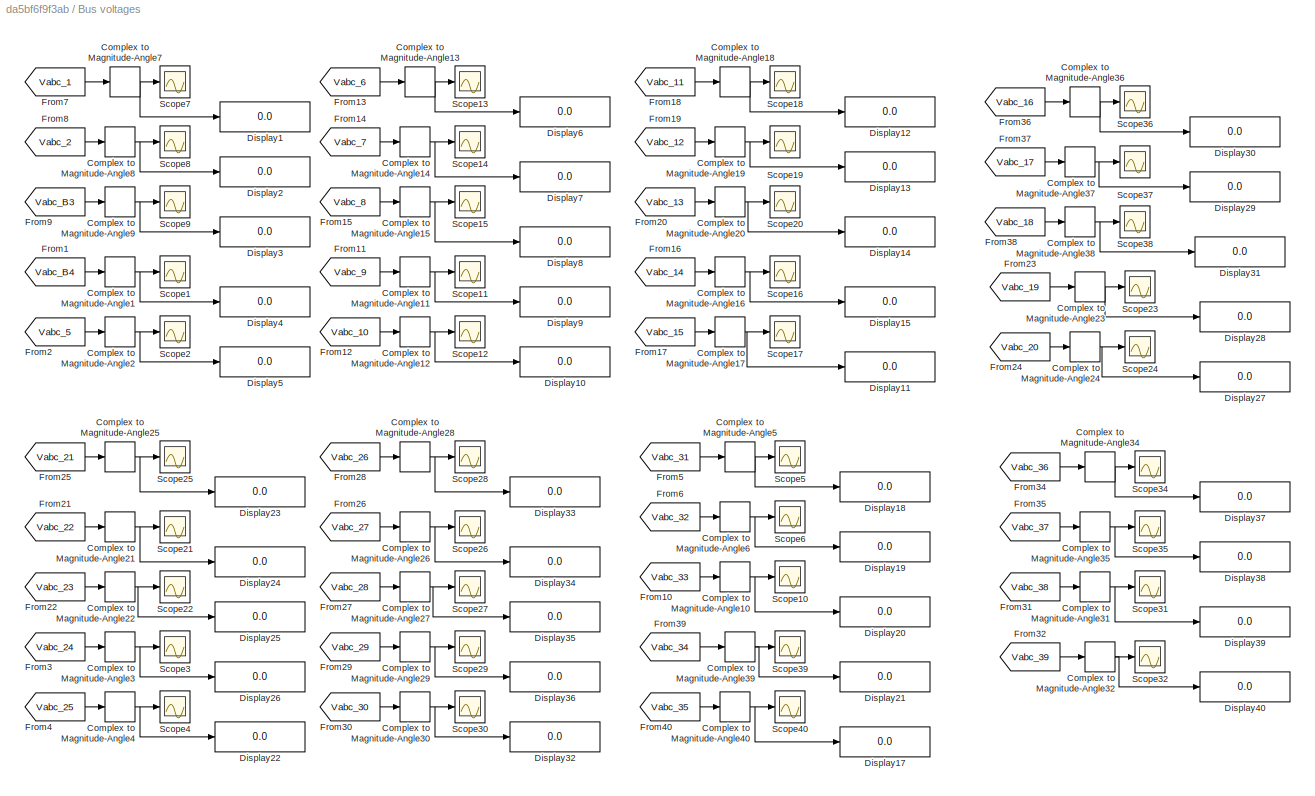
BLOCK [SubSystem] Bus voltages
  FunctionWithSeparateData = off
  MaskHideContents = off
  MinAlgLoopOccurrences = off
  Opaque = off
  Ports = []
  PropExecContextOutsideSubsystem = off
  RTWSystemCode = Auto
  RequestExecContextInheritance = off
BLOCK [ComplexToMagnitudeAngle] Bus voltages/Complex to Magnitude-Angle1
  Output = Magnitude
  Ports = [1, 1]
BLOCK [ComplexToMagnitudeAngle] Bus voltages/Complex to Magnitude-Angle10
  Output = Magnitude
  Ports = [1, 1]
BLOCK [ComplexToMagnitudeAngle] Bus voltages/Complex to Magnitude-Angle11
  Output = Magnitude
  Ports = [1, 1]
BLOCK [ComplexToMagnitudeAngle] Bus voltages/Complex to Magnitude-Angle12
  Output = Magnitude
  Ports = [1, 1]
BLOCK [ComplexToMagnitudeAngle] Bus voltages/Complex to Magnitude-Angle13
  Output = Magnitude
  Ports = [1, 1]
BLOCK [ComplexToMagnitudeAngle] Bus voltages/Complex to Magnitude-Angle14
  Output = Magnitude
  Ports = [1, 1]
BLOCK [ComplexToMagnitudeAngle] Bus voltages/Complex to Magnitude-Angle15
  Output = Magnitude
  Ports = [1, 1]
BLOCK [ComplexToMagnitudeAngle] Bus voltages/Complex to Magnitude-Angle16
  Output = Magnitude
  Ports = [1, 1]
BLOCK [ComplexToMagnitudeAngle] Bus voltages/Complex to Magnitude-Angle17
  Output = Magnitude
  Ports = [1, 1]
BLOCK [ComplexToMagnitudeAngle] Bus voltages/Complex to Magnitude-Angle18
  Output = Magnitude
  Ports = [1, 1]
BLOCK [ComplexToMagnitudeAngle] Bus voltages/Complex to Magnitude-Angle19
  Output = Magnitude
  Ports = [1, 1]
BLOCK [ComplexToMagnitudeAngle] Bus voltages/Complex to Magnitude-Angle2
  Output = Magnitude
  Ports = [1, 1]
BLOCK [ComplexToMagnitudeAngle] Bus voltages/Complex to Magnitude-Angle20
  Output = Magnitude
  Ports = [1, 1]
BLOCK [ComplexToMagnitudeAngle] Bus voltages/Complex to Magnitude-Angle21
  Output = Magnitude
  Ports = [1, 1]
BLOCK [ComplexToMagnitudeAngle] Bus voltages/Complex to Magnitude-Angle22
  Output = Magnitude
  Ports = [1, 1]
BLOCK [ComplexToMagnitudeAngle] Bus voltages/Complex to Magnitude-Angle23
  Output = Magnitude
  Ports = [1, 1]
BLOCK [ComplexToMagnitudeAngle] Bus voltages/Complex to Magnitude-Angle24
  Output = Magnitude
  Ports = [1, 1]
BLOCK [ComplexToMagnitudeAngle] Bus voltages/Complex to Magnitude-Angle25
  Output = Magnitude
  Ports = [1, 1]
BLOCK [ComplexToMagnitudeAngle] Bus voltages/Complex to Magnitude-Angle26
  Output = Magnitude
  Ports = [1, 1]
BLOCK [ComplexToMagnitudeAngle] Bus voltages/Complex to Magnitude-Angle27
  Output = Magnitude
  Ports = [1, 1]
BLOCK [ComplexToMagnitudeAngle] Bus voltages/Complex to Magnitude-Angle28
  Output = Magnitude
  Ports = [1, 1]
BLOCK [ComplexToMagnitudeAngle] Bus voltages/Complex to Magnitude-Angle29
  Output = Magnitude
  Ports = [1, 1]
BLOCK [ComplexToMagnitudeAngle] Bus voltages/Complex to Magnitude-Angle3
  Output = Magnitude
  Ports = [1, 1]
BLOCK [ComplexToMagnitudeAngle] Bus voltages/Complex to Magnitude-Angle30
  Output = Magnitude
  Ports = [1, 1]
BLOCK [ComplexToMagnitudeAngle] Bus voltages/Complex to Magnitude-Angle31
  Output = Magnitude
  Ports = [1, 1]
BLOCK [ComplexToMagnitudeAngle] Bus voltages/Complex to Magnitude-Angle32
  Output = Magnitude
  Ports = [1, 1]
BLOCK [ComplexToMagnitudeAngle] Bus voltages/Complex to Magnitude-Angle34
  Output = Magnitude
  Ports = [1, 1]
BLOCK [ComplexToMagnitudeAngle] Bus voltages/Complex to Magnitude-Angle35
  Output = Magnitude
  Ports = [1, 1]
BLOCK [ComplexToMagnitudeAngle] Bus voltages/Complex to Magnitude-Angle36
  Output = Magnitude
  Ports = [1, 1]
BLOCK [ComplexToMagnitudeAngle] Bus voltages/Complex to Magnitude-Angle37
  Output = Magnitude
  Ports = [1, 1]
BLOCK [ComplexToMagnitudeAngle] Bus voltages/Complex to Magnitude-Angle38
  Output = Magnitude
  Ports = [1, 1]
BLOCK [ComplexToMagnitudeAngle] Bus voltages/Complex to Magnitude-Angle39
  Output = Magnitude
  Ports = [1, 1]
BLOCK [ComplexToMagnitudeAngle] Bus voltages/Complex to Magnitude-Angle4
  Output = Magnitude
  Ports = [1, 1]
BLOCK [ComplexToMagnitudeAngle] Bus voltages/Complex to Magnitude-Angle40
  Output = Magnitude
  Ports = [1, 1]
BLOCK [ComplexToMagnitudeAngle] Bus voltages/Complex to Magnitude-Angle5
  Output = Magnitude
  Ports = [1, 1]
BLOCK [ComplexToMagnitudeAngle] Bus voltages/Complex to Magnitude-Angle6
  Output = Magnitude
  Ports = [1, 1]
BLOCK [ComplexToMagnitudeAngle] Bus voltages/Complex to Magnitude-Angle7
  Output = Magnitude
  Ports = [1, 1]
BLOCK [ComplexToMagnitudeAngle] Bus voltages/Complex to Magnitude-Angle8
  Output = Magnitude
  Ports = [1, 1]
BLOCK [ComplexToMagnitudeAngle] Bus voltages/Complex to Magnitude-Angle9
  Output = Magnitude
  Ports = [1, 1]
BLOCK [Display] Bus voltages/Display1
  Decimation = 1
  Ports = [1]
BLOCK [Display] Bus voltages/Display10
  Decimation = 1
  Ports = [1]
BLOCK [Display] Bus voltages/Display11
  Decimation = 1
  Ports = [1]
BLOCK [Display] Bus voltages/Display12
  Decimation = 1
  Ports = [1]
BLOCK [Display] Bus voltages/Display13
  Decimation = 1
  Ports = [1]
BLOCK [Display] Bus voltages/Display14
  Decimation = 1
  Ports = [1]
BLOCK [Display] Bus voltages/Display15
  Decimation = 1
  Ports = [1]
BLOCK [Display] Bus voltages/Display17
  Decimation = 1
  Ports = [1]
BLOCK [Display] Bus voltages/Display18
  Decimation = 1
  Ports = [1]
BLOCK [Display] Bus voltages/Display19
  Decimation = 1
  Ports = [1]
BLOCK [Display] Bus voltages/Display2
  Decimation = 1
  Ports = [1]
BLOCK [Display] Bus voltages/Display20
  Decimation = 1
  Ports = [1]
BLOCK [Display] Bus voltages/Display21
  Decimation = 1
  Ports = [1]
BLOCK [Display] Bus voltages/Display22
  Decimation = 1
  Ports = [1]
BLOCK [Display] Bus voltages/Display23
  Decimation = 1
  Ports = [1]
BLOCK [Display] Bus voltages/Display24
  Decimation = 1
  Ports = [1]
BLOCK [Display] Bus voltages/Display25
  Decimation = 1
  Ports = [1]
BLOCK [Display] Bus voltages/Display26
  Decimation = 1
  Ports = [1]
BLOCK [Display] Bus voltages/Display27
  Decimation = 1
  Ports = [1]
BLOCK [Display] Bus voltages/Display28
  Decimation = 1
  Ports = [1]
BLOCK [Display] Bus voltages/Display29
  Decimation = 1
  Ports = [1]
BLOCK [Display] Bus voltages/Display3
  Decimation = 1
  Ports = [1]
BLOCK [Display] Bus voltages/Display30
  Decimation = 1
  Ports = [1]
BLOCK [Display] Bus voltages/Display31
  Decimation = 1
  Ports = [1]
BLOCK [Display] Bus voltages/Display32
  Decimation = 1
  Ports = [1]
BLOCK [Display] Bus voltages/Display33
  Decimation = 1
  Ports = [1]
BLOCK [Display] Bus voltages/Display34
  Decimation = 1
  Ports = [1]
BLOCK [Display] Bus voltages/Display35
  Decimation = 1
  Ports = [1]
BLOCK [Display] Bus voltages/Display36
  Decimation = 1
  Ports = [1]
BLOCK [Display] Bus voltages/Display37
  Decimation = 1
  Ports = [1]
BLOCK [Display] Bus voltages/Display38
  Decimation = 1
  Ports = [1]
BLOCK [Display] Bus voltages/Display39
  Decimation = 1
  Ports = [1]
BLOCK [Display] Bus voltages/Display4
  Decimation = 1
  Ports = [1]
BLOCK [Display] Bus voltages/Display40
  Decimation = 1
  Ports = [1]
BLOCK [Display] Bus voltages/Display5
  Decimation = 1
  Ports = [1]
BLOCK [Display] Bus voltages/Display6
  Decimation = 1
  Ports = [1]
BLOCK [Display] Bus voltages/Display7
  Decimation = 1
  Ports = [1]
BLOCK [Display] Bus voltages/Display8
  Decimation = 1
  Ports = [1]
BLOCK [Display] Bus voltages/Display9
  Decimation = 1
  Ports = [1]
BLOCK [From] Bus voltages/From1
  CloseFcn = tagdialog Close
  GotoTag = Vabc_B4
  TagVisibility = global
BLOCK [From] Bus voltages/From10
  CloseFcn = tagdialog Close
  GotoTag = Vabc_33
  TagVisibility = global
BLOCK [From] Bus voltages/From11
  CloseFcn = tagdialog Close
  GotoTag = Vabc_9
  TagVisibility = global
BLOCK [From] Bus voltages/From12
  CloseFcn = tagdialog Close
  GotoTag = Vabc_10
  TagVisibility = global
BLOCK [From] Bus voltages/From13
  CloseFcn = tagdialog Close
  GotoTag = Vabc_6
  TagVisibility = global
BLOCK [From] Bus voltages/From14
  CloseFcn = tagdialog Close
  GotoTag = Vabc_7
  TagVisibility = global
BLOCK [From] Bus voltages/From15
  CloseFcn = tagdialog Close
  GotoTag = Vabc_8
  TagVisibility = global
BLOCK [From] Bus voltages/From16
  CloseFcn = tagdialog Close
  GotoTag = Vabc_14
  TagVisibility = global
BLOCK [From] Bus voltages/From17
  CloseFcn = tagdialog Close
  GotoTag = Vabc_15
  TagVisibility = global
BLOCK [From] Bus voltages/From18
  CloseFcn = tagdialog Close
  GotoTag = Vabc_11
  TagVisibility = global
BLOCK [From] Bus voltages/From19
  CloseFcn = tagdialog Close
  GotoTag = Vabc_12
  TagVisibility = global
BLOCK [From] Bus voltages/From2
  CloseFcn = tagdialog Close
  GotoTag = Vabc_5
  TagVisibility = global
BLOCK [From] Bus voltages/From20
  CloseFcn = tagdialog Close
  GotoTag = Vabc_13
  TagVisibility = global
BLOCK [From] Bus voltages/From21
  CloseFcn = tagdialog Close
  GotoTag = Vabc_22
  TagVisibility = global
BLOCK [From] Bus voltages/From22
  CloseFcn = tagdialog Close
  GotoTag = Vabc_23
  TagVisibility = global
BLOCK [From] Bus voltages/From23
  CloseFcn = tagdialog Close
  GotoTag = Vabc_19
  TagVisibility = global
BLOCK [From] Bus voltages/From24
  CloseFcn = tagdialog Close
  GotoTag = Vabc_20
  TagVisibility = global
BLOCK [From] Bus voltages/From25
  CloseFcn = tagdialog Close
  GotoTag = Vabc_21
  TagVisibility = global
BLOCK [From] Bus voltages/From26
  CloseFcn = tagdialog Close
  GotoTag = Vabc_27
  TagVisibility = global
BLOCK [From] Bus voltages/From27
  CloseFcn = tagdialog Close
  GotoTag = Vabc_28
  TagVisibility = global
BLOCK [From] Bus voltages/From28
  CloseFcn = tagdialog Close
  GotoTag = Vabc_26
  TagVisibility = global
BLOCK [From] Bus voltages/From29
  CloseFcn = tagdialog Close
  GotoTag = Vabc_29
  TagVisibility = global
BLOCK [From] Bus voltages/From3
  CloseFcn = tagdialog Close
  GotoTag = Vabc_24
  TagVisibility = global
BLOCK [From] Bus voltages/From30
  CloseFcn = tagdialog Close
  GotoTag = Vabc_30
  TagVisibility = global
BLOCK [From] Bus voltages/From31
  CloseFcn = tagdialog Close
  GotoTag = Vabc_38
  TagVisibility = global
BLOCK [From] Bus voltages/From32
  CloseFcn = tagdialog Close
  GotoTag = Vabc_39
  TagVisibility = global
BLOCK [From] Bus voltages/From34
  CloseFcn = tagdialog Close
  GotoTag = Vabc_36
  TagVisibility = global
BLOCK [From] Bus voltages/From35
  CloseFcn = tagdialog Close
  GotoTag = Vabc_37
  TagVisibility = global
BLOCK [From] Bus voltages/From36
  CloseFcn = tagdialog Close
  GotoTag = Vabc_16
  TagVisibility = global
BLOCK [From] Bus voltages/From37
  CloseFcn = tagdialog Close
  GotoTag = Vabc_17
  TagVisibility = global
BLOCK [From] Bus voltages/From38
  CloseFcn = tagdialog Close
  GotoTag = Vabc_18
  TagVisibility = global
BLOCK [From] Bus voltages/From39
  CloseFcn = tagdialog Close
  GotoTag = Vabc_34
  TagVisibility = global
BLOCK [From] Bus voltages/From4
  CloseFcn = tagdialog Close
  GotoTag = Vabc_25
  TagVisibility = global
BLOCK [From] Bus voltages/From40
  CloseFcn = tagdialog Close
  GotoTag = Vabc_35
  TagVisibility = global
BLOCK [From] Bus voltages/From5
  CloseFcn = tagdialog Close
  GotoTag = Vabc_31
  TagVisibility = global
BLOCK [From] Bus voltages/From6
  CloseFcn = tagdialog Close
  GotoTag = Vabc_32
  TagVisibility = global
BLOCK [From] Bus voltages/From7
  CloseFcn = tagdialog Close
  GotoTag = Vabc_1
  TagVisibility = global
BLOCK [From] Bus voltages/From8
  CloseFcn = tagdialog Close
  GotoTag = Vabc_2
  TagVisibility = global
BLOCK [From] Bus voltages/From9
  CloseFcn = tagdialog Close
  GotoTag = Vabc_B3
  TagVisibility = global
BLOCK [Scope] Bus voltages/Scope1
  DataFormat = StructureWithTime
  Floating = off
  LimitDataPoints = off
  NumInputPorts = 1
  Ports = [1]
  SampleTime = 0
  SaveName = v
  SaveToWorkspace = on
  ShowLegends = off
  YMax = 0.07
  YMin = -0.07
  ZoomMode = xonly
BLOCK [Scope] Bus voltages/Scope10
  DataFormat = StructureWithTime
  Floating = off
  LimitDataPoints = off
  NumInputPorts = 1
  Ports = [1]
  SampleTime = 0
  SaveName = v2
  SaveToWorkspace = on
  ShowLegends = off
  YMax = 0.07
  YMin = -0.07
  ZoomMode = xonly
BLOCK [Scope] Bus voltages/Scope11
  DataFormat = StructureWithTime
  Floating = off
  LimitDataPoints = off
  NumInputPorts = 1
  Ports = [1]
  SampleTime = 0
  SaveName = v11
  SaveToWorkspace = on
  ShowLegends = off
  YMax = 0.07
  YMin = -0.07
  ZoomMode = xonly
BLOCK [Scope] Bus voltages/Scope12
  DataFormat = StructureWithTime
  Floating = off
  LimitDataPoints = off
  NumInputPorts = 1
  Ports = [1]
  SampleTime = 0
  SaveName = v12
  SaveToWorkspace = on
  ShowLegends = off
  YMax = 0.07
  YMin = -0.07
  ZoomMode = xonly
BLOCK [Scope] Bus voltages/Scope13
  DataFormat = StructureWithTime
  Floating = off
  LimitDataPoints = off
  NumInputPorts = 1
  Ports = [1]
  SampleTime = 0
  SaveName = v13
  SaveToWorkspace = on
  ShowLegends = off
  YMax = 0.07
  YMin = -0.07
  ZoomMode = xonly
BLOCK [Scope] Bus voltages/Scope14
  DataFormat = StructureWithTime
  Floating = off
  LimitDataPoints = off
  NumInputPorts = 1
  Ports = [1]
  SampleTime = 0
  SaveName = v14
  SaveToWorkspace = on
  ShowLegends = off
  YMax = 0.07
  YMin = -0.07
  ZoomMode = xonly
BLOCK [Scope] Bus voltages/Scope15
  DataFormat = StructureWithTime
  Floating = off
  LimitDataPoints = off
  NumInputPorts = 1
  Ports = [1]
  SampleTime = 0
  SaveName = v15
  SaveToWorkspace = on
  ShowLegends = off
  YMax = 0.07
  YMin = -0.07
  ZoomMode = xonly
BLOCK [Scope] Bus voltages/Scope16
  DataFormat = StructureWithTime
  Floating = off
  LimitDataPoints = off
  NumInputPorts = 1
  Ports = [1]
  SampleTime = 0
  SaveName = v16
  SaveToWorkspace = on
  ShowLegends = off
  YMax = 0.07
  YMin = -0.07
  ZoomMode = xonly
BLOCK [Scope] Bus voltages/Scope17
  DataFormat = StructureWithTime
  Floating = off
  LimitDataPoints = off
  NumInputPorts = 1
  Ports = [1]
  SampleTime = 0
  SaveName = v17
  SaveToWorkspace = on
  ShowLegends = off
  YMax = 0.07
  YMin = -0.07
  ZoomMode = xonly
BLOCK [Scope] Bus voltages/Scope18
  DataFormat = StructureWithTime
  Floating = off
  LimitDataPoints = off
  NumInputPorts = 1
  Ports = [1]
  SampleTime = 0
  SaveName = v18
  SaveToWorkspace = on
  ShowLegends = off
  YMax = 0.07
  YMin = -0.07
  ZoomMode = xonly
BLOCK [Scope] Bus voltages/Scope19
  DataFormat = StructureWithTime
  Floating = off
  LimitDataPoints = off
  NumInputPorts = 1
  Ports = [1]
  SampleTime = 0
  SaveName = v19
  SaveToWorkspace = on
  ShowLegends = off
  YMax = 0.07
  YMin = -0.07
  ZoomMode = xonly
BLOCK [Scope] Bus voltages/Scope2
  DataFormat = StructureWithTime
  Floating = off
  LimitDataPoints = off
  NumInputPorts = 1
  Ports = [1]
  SampleTime = 0
  SaveName = v1
  SaveToWorkspace = on
  ShowLegends = off
  YMax = 0.07
  YMin = -0.07
  ZoomMode = xonly
BLOCK [Scope] Bus voltages/Scope20
  DataFormat = StructureWithTime
  Floating = off
  LimitDataPoints = off
  NumInputPorts = 1
  Ports = [1]
  SampleTime = 0
  SaveName = v20
  SaveToWorkspace = on
  ShowLegends = off
  YMax = 0.07
  YMin = -0.07
  ZoomMode = xonly
BLOCK [Scope] Bus voltages/Scope21
  DataFormat = StructureWithTime
  Floating = off
  LimitDataPoints = off
  NumInputPorts = 1
  Ports = [1]
  SampleTime = 0
  SaveName = v21
  SaveToWorkspace = on
  ShowLegends = off
  YMax = 0.07
  YMin = -0.07
  ZoomMode = xonly
BLOCK [Scope] Bus voltages/Scope22
  DataFormat = StructureWithTime
  Floating = off
  LimitDataPoints = off
  NumInputPorts = 1
  Ports = [1]
  SampleTime = 0
  SaveName = v22
  SaveToWorkspace = on
  ShowLegends = off
  YMax = 0.07
  YMin = -0.07
  ZoomMode = xonly
BLOCK [Scope] Bus voltages/Scope23
  DataFormat = StructureWithTime
  Floating = off
  LimitDataPoints = off
  NumInputPorts = 1
  Ports = [1]
  SampleTime = 0
  SaveName = v68
  SaveToWorkspace = on
  ShowLegends = off
  YMax = 0.07
  YMin = -0.07
  ZoomMode = xonly
BLOCK [Scope] Bus voltages/Scope24
  DataFormat = StructureWithTime
  Floating = off
  LimitDataPoints = off
  NumInputPorts = 1
  Ports = [1]
  SampleTime = 0
  SaveName = v69
  SaveToWorkspace = on
  ShowLegends = off
  YMax = 0.07
  YMin = -0.07
  ZoomMode = xonly
BLOCK [Scope] Bus voltages/Scope25
  DataFormat = StructureWithTime
  Floating = off
  LimitDataPoints = off
  NumInputPorts = 1
  Ports = [1]
  SampleTime = 0
  SaveName = v70
  SaveToWorkspace = on
  ShowLegends = off
  YMax = 0.07
  YMin = -0.07
  ZoomMode = xonly
BLOCK [Scope] Bus voltages/Scope26
  DataFormat = StructureWithTime
  Floating = off
  LimitDataPoints = off
  NumInputPorts = 1
  Ports = [1]
  SampleTime = 0
  SaveName = v63
  SaveToWorkspace = on
  ShowLegends = off
  YMax = 0.07
  YMin = -0.07
  ZoomMode = xonly
BLOCK [Scope] Bus voltages/Scope27
  DataFormat = StructureWithTime
  Floating = off
  LimitDataPoints = off
  NumInputPorts = 1
  Ports = [1]
  SampleTime = 0
  SaveName = v64
  SaveToWorkspace = on
  ShowLegends = off
  YMax = 0.07
  YMin = -0.07
  ZoomMode = xonly
BLOCK [Scope] Bus voltages/Scope28
  DataFormat = StructureWithTime
  Floating = off
  LimitDataPoints = off
  NumInputPorts = 1
  Ports = [1]
  SampleTime = 0
  SaveName = v65
  SaveToWorkspace = on
  ShowLegends = off
  YMax = 0.07
  YMin = -0.07
  ZoomMode = xonly
BLOCK [Scope] Bus voltages/Scope29
  DataFormat = StructureWithTime
  Floating = off
  LimitDataPoints = off
  NumInputPorts = 1
  Ports = [1]
  SampleTime = 0
  SaveName = v66
  SaveToWorkspace = on
  ShowLegends = off
  YMax = 0.07
  YMin = -0.07
  ZoomMode = xonly
BLOCK [Scope] Bus voltages/Scope3
  DataFormat = StructureWithTime
  Floating = off
  LimitDataPoints = off
  NumInputPorts = 1
  Ports = [1]
  SampleTime = 0
  SaveName = v3
  SaveToWorkspace = on
  ShowLegends = off
  YMax = 0.07
  YMin = -0.07
  ZoomMode = xonly
BLOCK [Scope] Bus voltages/Scope30
  DataFormat = StructureWithTime
  Floating = off
  LimitDataPoints = off
  NumInputPorts = 1
  Ports = [1]
  SampleTime = 0
  SaveName = v67
  SaveToWorkspace = on
  ShowLegends = off
  YMax = 0.07
  YMin = -0.07
  ZoomMode = xonly
BLOCK [Scope] Bus voltages/Scope31
  DataFormat = StructureWithTime
  Floating = off
  LimitDataPoints = off
  NumInputPorts = 1
  Ports = [1]
  SampleTime = 0
  SaveName = v71
  SaveToWorkspace = on
  ShowLegends = off
  YMax = 0.07
  YMin = -0.07
  ZoomMode = xonly
BLOCK [Scope] Bus voltages/Scope32
  DataFormat = StructureWithTime
  Floating = off
  LimitDataPoints = off
  NumInputPorts = 1
  Ports = [1]
  SampleTime = 0
  SaveName = v72
  SaveToWorkspace = on
  ShowLegends = off
  YMax = 0.07
  YMin = -0.07
  ZoomMode = xonly
BLOCK [Scope] Bus voltages/Scope34
  DataFormat = StructureWithTime
  Floating = off
  LimitDataPoints = off
  NumInputPorts = 1
  Ports = [1]
  SampleTime = 0
  SaveName = v74
  SaveToWorkspace = on
  ShowLegends = off
  YMax = 0.07
  YMin = -0.07
  ZoomMode = xonly
BLOCK [Scope] Bus voltages/Scope35
  DataFormat = StructureWithTime
  Floating = off
  LimitDataPoints = off
  NumInputPorts = 1
  Ports = [1]
  SampleTime = 0
  SaveName = v75
  SaveToWorkspace = on
  ShowLegends = off
  YMax = 0.07
  YMin = -0.07
  ZoomMode = xonly
BLOCK [Scope] Bus voltages/Scope36
  DataFormat = StructureWithTime
  Floating = off
  LimitDataPoints = off
  NumInputPorts = 1
  Ports = [1]
  SampleTime = 0
  SaveName = v48
  SaveToWorkspace = on
  ShowLegends = off
  YMax = 0.07
  YMin = -0.07
  ZoomMode = xonly
BLOCK [Scope] Bus voltages/Scope37
  DataFormat = StructureWithTime
  Floating = off
  LimitDataPoints = off
  NumInputPorts = 1
  Ports = [1]
  SampleTime = 0
  SaveName = v49
  SaveToWorkspace = on
  ShowLegends = off
  YMax = 0.07
  YMin = -0.07
  ZoomMode = xonly
BLOCK [Scope] Bus voltages/Scope38
  DataFormat = StructureWithTime
  Floating = off
  LimitDataPoints = off
  NumInputPorts = 1
  Ports = [1]
  SampleTime = 0
  SaveName = v50
  SaveToWorkspace = on
  ShowLegends = off
  YMax = 0.07
  YMin = -0.07
  ZoomMode = xonly
BLOCK [Scope] Bus voltages/Scope39
  DataFormat = StructureWithTime
  Floating = off
  LimitDataPoints = off
  NumInputPorts = 1
  Ports = [1]
  SampleTime = 0
  SaveName = v51
  SaveToWorkspace = on
  ShowLegends = off
  YMax = 0.07
  YMin = -0.07
  ZoomMode = xonly
BLOCK [Scope] Bus voltages/Scope4
  DataFormat = StructureWithTime
  Floating = off
  LimitDataPoints = off
  NumInputPorts = 1
  Ports = [1]
  SampleTime = 0
  SaveName = v4
  SaveToWorkspace = on
  ShowLegends = off
  YMax = 0.07
  YMin = -0.07
  ZoomMode = xonly
BLOCK [Scope] Bus voltages/Scope40
  DataFormat = StructureWithTime
  Floating = off
  LimitDataPoints = off
  NumInputPorts = 1
  Ports = [1]
  SampleTime = 0
  SaveName = v62
  SaveToWorkspace = on
  ShowLegends = off
  YMax = 0.07
  YMin = -0.07
  ZoomMode = xonly
BLOCK [Scope] Bus voltages/Scope5
  DataFormat = StructureWithTime
  Floating = off
  LimitDataPoints = off
  NumInputPorts = 1
  Ports = [1]
  SampleTime = 0
  SaveName = v5
  SaveToWorkspace = on
  ShowLegends = off
  YMax = 0.07
  YMin = -0.07
  ZoomMode = xonly
BLOCK [Scope] Bus voltages/Scope6
  DataFormat = StructureWithTime
  Floating = off
  LimitDataPoints = off
  NumInputPorts = 1
  Ports = [1]
  SampleTime = 0
  SaveName = v10
  SaveToWorkspace = on
  ShowLegends = off
  YMax = 0.07
  YMin = -0.07
  ZoomMode = xonly
BLOCK [Scope] Bus voltages/Scope7
  DataFormat = StructureWithTime
  Floating = off
  LimitDataPoints = off
  NumInputPorts = 1
  Ports = [1]
  SampleTime = 0
  SaveName = v6
  SaveToWorkspace = on
  ShowLegends = off
  YMax = 0.07
  YMin = -0.07
  ZoomMode = xonly
BLOCK [Scope] Bus voltages/Scope8
  DataFormat = StructureWithTime
  Floating = off
  LimitDataPoints = off
  NumInputPorts = 1
  Ports = [1]
  SampleTime = 0
  SaveName = v8
  SaveToWorkspace = on
  ShowLegends = off
  YMax = 0.07
  YMin = -0.07
  ZoomMode = xonly
BLOCK [Scope] Bus voltages/Scope9
  DataFormat = StructureWithTime
  Floating = off
  LimitDataPoints = off
  NumInputPorts = 1
  Ports = [1]
  SampleTime = 0
  SaveName = v9
  SaveToWorkspace = on
  ShowLegends = off
  YMax = 0.07
  YMin = -0.07
  ZoomMode = xonly
BLOCK [Demux] Demux
  Outputs = 2
  Ports = [1, 2]
BLOCK [SubSystem] G1
  FunctionWithSeparateData = off
  MaskHideContents = off
  MinAlgLoopOccurrences = off
  Opaque = off
  Ports = [0, 0, 0, 0, 0, 3]
  PropExecContextOutsideSubsystem = off
  RTWSystemCode = Auto
  RequestExecContextInheritance = off
BLOCK [PMIOPort] G1/A
  Port = 1
  Side = Left
BLOCK [PMIOPort] G1/B
  Port = 2
  Side = Left
BLOCK [PMIOPort] G1/C
  Port = 3
  Side = Left
BLOCK [From] G1/From1
  CloseFcn = tagdialog Close
  GotoTag = PSSmodel
  TagVisibility = global
BLOCK [Reference] G1/G1  REF=powerlib/Machines/Synchronous Machine
pu Standard
  AttributesFormatString = \n\n
  BusType = PV
  InitialConditions = [0 -53.3817 1.03438 1.03438 1.03438 11.5505 -108.45 131.55 1.07168]
  IterativeModel = Forward Euler
  LoadFlowParameters = [1 1000000000 0 0 0]
  Mechanical = [ mac_con(1,16)  0  4]
  MechanicalLoad = Mechanical power Pm
  NominalParameters = [Pn(1,1)*1E9  345000   60 ]
  PLF = 0
  PolePairs = 4
  Ports = [2, 1, 0, 0, 0, 0, 3]
  Pref = p0(1,1)*1E9
  PresetModel = No
  QLF = 0
  Qmax = inf
  Qmin = -inf
  Qref = 0
  Reactances1 = [mac_con(1,6:8)  mac_con(1,11:13)  mac_con(1,4)]
  Reactances2 = [ 1.305, 0.296, 0.252, 0.474, 0.243, 0.18 ]
  RotorType = Round
  Saturation = [0.6404,0.7127,0.8441,0.9214,0.9956,1.082,1.19,1.316,1.457;0.7,0.7698,0.8872,0.9466,0.9969,1.046,1.1,1.151,1.201]
  SetSaturation = off
  ShowDetailedParameters = on
  SourceBlock = powerlib/Machines/Synchronous Machine\npu Standard
  SourceType = Synchronous Machine
  StatorResistance = mac_con(1,5)
  TimeConstants1 = []
  TimeConstants2 = [mac_con(1,9:10)  mac_con(1,14:15)]
  TimeConstants3 = []
  TimeConstants4 = []
  TimeConstants5 = [ 1.01, 0.053, 0.1 ]
  TimeConstants6 = []
  TimeConstants7 = []
  TimeConstants8 = []
  TsBlock = -1
  TsPowergui = 0
  Units = per unit standard parameters
  dAxisTimeConstants = Open-circuit
  qAxisTimeConstants = Open-circuit
BLOCK [SubSystem] G1/M1: Turbine & Regulators
  FunctionWithSeparateData = off
  MaskHideContents = off
  MinAlgLoopOccurrences = off
  Opaque = off
  Ports = [4, 2]
  PropExecContextOutsideSubsystem = off
  RTWSystemCode = Auto
  RequestExecContextInheritance = off
BLOCK [BusSelector] G1/M1: Turbine & Regulators/Bus Selector
  OutputSignals = Mechanical.Rotor speed  wm  (pu),Mechanical.Rotor angle deviation  d_theta (rad),Mechanical.Electrical power  Pe (pu),Mechanical.Rotor speed deviation  dw (pu),Mechanical.Rotor mechanical angle  theta (deg),dq0 components.Stator voltage  vd (pu),dq0 components.Stator voltage  vq (pu),Output reactive power  Qeo (pu)  <repeated x10 — deduplicated; at blocks: Bus Selector>
  Ports = [1, 8]
BLOCK [Reference] G1/M1: Turbine & Regulators/Delta Pa PSS 1  REF=powerlib/Machines/Generic
Power System Stabilizer
  FreqRange = logspace(-2,2,500)
  K = 2.5*1.25
  MagdB_On = on
  Plot_On = off
  Ports = [1, 1]
  SourceBlock = powerlib/Machines/Generic\nPower System Stabilizer
  SourceType = Generic Power System Stabilizer
  Tleadlag1 = [60e-3 1]
  Tleadlag2 = [0 0]
  Tsensor = 15e-3
  Twashout = 1
  VSlimits = [-0.15 0.15]
  Vinit = 0
BLOCK [Reference] G1/M1: Turbine & Regulators/Delta w PSS (Kundur) 1  REF=powerlib/Machines/Generic
Power System Stabilizer
  FreqRange = logspace(-2,2,500)
  K = 30
  MagdB_On = on
  Plot_On = off
  Ports = [1, 1]
  SourceBlock = powerlib/Machines/Generic\nPower System Stabilizer
  SourceType = Generic Power System Stabilizer
  Tleadlag1 = [50e-3 20e-3]
  Tleadlag2 = [3 5.4]
  Tsensor = 15e-3
  Twashout = 10
  VSlimits = [-0.15 0.15]
  Vinit = 0
BLOCK [Reference] G1/M1: Turbine & Regulators/EXCITATION1  REF=sps_avr/Excitation System
  Ports = [4, 1]
  SourceBlock = sps_avr/Excitation System
  SourceType = Excitation System
  damp = [ 0, 0 ]
  exc = [ 1, 0 ]
  lim = [ AVR_Data(1,7:8)  0 ]
  reg = [ AVR_Data(1,2:3) ]
  sat = [ 0, 0 ]
  tgr = [ AVR_Data(1,4:5)]
  tr = AVR_Data(1,1)
  v0 = [1,1.07168]
BLOCK [Goto] G1/M1: Turbine & Regulators/Goto
  GotoTag = theta1
  TagVisibility = global
BLOCK [Goto] G1/M1: Turbine & Regulators/Goto1
  GotoTag = Vt1
  TagVisibility = global
BLOCK [Goto] G1/M1: Turbine & Regulators/Goto2
  GotoTag = w1
  TagVisibility = global
BLOCK [Goto] G1/M1: Turbine & Regulators/Goto3
  GotoTag = Q1
  TagVisibility = global
BLOCK [Goto] G1/M1: Turbine & Regulators/Goto4
  GotoTag = pss1
  TagVisibility = global
BLOCK [Goto] G1/M1: Turbine & Regulators/Goto5
  GotoTag = EFD1
  TagVisibility = global
BLOCK [Goto] G1/M1: Turbine & Regulators/Goto6
  GotoTag = Pe1
  TagVisibility = global
BLOCK [Goto] G1/M1: Turbine & Regulators/Goto7
  GotoTag = d_theta1
  TagVisibility = global
BLOCK [Goto] G1/M1: Turbine & Regulators/Goto8
  GotoTag = Pa1
  TagVisibility = global
BLOCK [Reference] G1/M1: Turbine & Regulators/MB-PSS1  REF=powerlib/Machines/Multi-Band
Power System Stabilizer
  FreqRange = logspace(-2,2,500)
  GH = [MB(6) MB(7)]
  GHd = [66 66 233]
  GI = [MB(4) MB(5)]
  GId = [66 66 47.6]
  GL = [MB(2) MB(3)]
  GLd = [66 66 9.4]
  Kg = MB(1)
  LIM = [.075 .15 .15 .15]
  MagdB_On = off
  OperationMode = Simplified settings
  Plot_On = off
  Ports = [1, 1]
  SourceBlock = powerlib/Machines/Multi-Band\nPower System Stabilizer
  SourceType = Multi-Band Power System Stabilizer
  TcHF = [0.01 0.012 0 0 0 0  0.012 0.0144 0 0 0 0 1 1]
  TcIF = [1 1 0.25 0.3 0 0 1 1 0.3 0.36 0 0 0 0]
  TcLF = [1.667 2 0 0 0 0 2 2.4 0 0 0 0 1 1]
BLOCK [MultiPortSwitch] G1/M1: Turbine & Regulators/Multiport Switch1
  Inputs = 4
  Ports = [5, 1]
  SaturateOnIntegerOverflow = off
BLOCK [Constant] G1/M1: Turbine & Regulators/PSS model3
  Value = 0
BLOCK [Constant] G1/M1: Turbine & Regulators/PSS model4
BLOCK [Inport] G1/M1: Turbine & Regulators/PSS1
  IconDisplay = Port number
  Port = 4
BLOCK [Outport] G1/M1: Turbine & Regulators/Pm1
  IconDisplay = Port number
  InitialOutput = 0
BLOCK [Inport] G1/M1: Turbine & Regulators/Pref1
  IconDisplay = Port number
  Port = 2
BLOCK [RealImagToComplex] G1/M1: Turbine & Regulators/Real-Imag to Complex
  Ports = [2, 1]
BLOCK [Reference] G1/M1: Turbine & Regulators/STG1  REF=powerlib/Machines/Steam Turbine
and Governor
  DA = [ 0.0115  0.3575  0.3663   0.0137  ]
  HA = [ 0.046  1.430  1.465   0.192 ]
  KA = [ 90.44  53.88  64.59   62.94  ]
  N = Ns
  Ports = [4, 4]
  SourceBlock = powerlib/Machines/Steam Turbine\nand Governor
  SourceType = Steam Turbine and Governor
  gentype = Tandem-compound (single mass)
  ini1 = 1
  ini2 = [0.779316,-31.4247]
  reg1 = [ 1  0.05    0 ]
  reg2 = [ 0.001  0.15 ]
  reg3 = [ -0.1  0.1  0  4.496 ]
  turb1 = [ 0  10   3.3   0.5   ]
  turb2 = [   0   0.36    0.36   0.28   ]
BLOCK [Sum] G1/M1: Turbine & Regulators/Sum2
  Ports = [2, 1]
BLOCK [Sum] G1/M1: Turbine & Regulators/Sum3
  Inputs = -+
  Ports = [2, 1]
BLOCK [Terminator] G1/M1: Turbine & Regulators/Terminator
BLOCK [Terminator] G1/M1: Turbine & Regulators/Terminator1
BLOCK [Terminator] G1/M1: Turbine & Regulators/Terminator2
BLOCK [Outport] G1/M1: Turbine & Regulators/Vf1
  IconDisplay = Port number
  InitialOutput = 0
  Port = 2
BLOCK [Inport] G1/M1: Turbine & Regulators/Vref1
  IconDisplay = Port number
  Port = 3
BLOCK [Inport] G1/M1: Turbine & Regulators/m
  IconDisplay = Port number
BLOCK [Constant] G1/M1: Turbine & Regulators/wref
BLOCK [Constant] G1/Pref1
BLOCK [Constant] G1/Vref1
BLOCK [SubSystem] G10
  FunctionWithSeparateData = off
  MaskHideContents = off
  MinAlgLoopOccurrences = off
  Opaque = off
  Ports = [0, 0, 0, 0, 0, 3]
  PropExecContextOutsideSubsystem = off
  RTWSystemCode = Auto
  RequestExecContextInheritance = off
BLOCK [PMIOPort] G10/A
  Port = 1
  Side = Left
BLOCK [PMIOPort] G10/B
  Port = 2
  Side = Left
BLOCK [PMIOPort] G10/C
  Port = 3
  Side = Left
BLOCK [From] G10/From1
  CloseFcn = tagdialog Close
  GotoTag = PSSmodel
  TagVisibility = global
BLOCK [Reference] G10/G10  REF=powerlib/Machines/Synchronous Machine
pu Standard
  AttributesFormatString = \n\n
  BusType = PV
  InitialConditions = [0 -76.9944 0.265611 0.265611 0.265611 -15.9627 -135.963 104.037 1.1157]
  IterativeModel = Forward Euler
  LoadFlowParameters = [1 250000000 0 0 0]
  Mechanical = [ mac_con(10,16)  0  4]
  MechanicalLoad = Mechanical power Pm
  NominalParameters = [Pn(10,1)*1E9  22000   60 ]
  PLF = 0
  PolePairs = 4
  Ports = [2, 1, 0, 0, 0, 0, 3]
  Pref = p0(10,1)*1E9
  PresetModel = No
  QLF = 0
  Qmax = inf
  Qmin = -inf
  Qref = 0
  Reactances1 = [mac_con(10,6:8)  mac_con(10,11:13)  mac_con(10,4)]
  Reactances2 = [ 1.305, 0.296, 0.252, 0.474, 0.243, 0.18 ]
  RotorType = Round
  Saturation = [0.6404,0.7127,0.8441,0.9214,0.9956,1.082,1.19,1.316,1.457;0.7,0.7698,0.8872,0.9466,0.9969,1.046,1.1,1.151,1.201]
  SetSaturation = off
  ShowDetailedParameters = on
  SourceBlock = powerlib/Machines/Synchronous Machine\npu Standard
  SourceType = Synchronous Machine
  StatorResistance = mac_con(10,5)
  TimeConstants1 = []
  TimeConstants2 = [mac_con(10,9:10)  mac_con(10,14:15)]
  TimeConstants3 = []
  TimeConstants4 = []
  TimeConstants5 = [ 1.01, 0.053, 0.1 ]
  TimeConstants6 = []
  TimeConstants7 = []
  TimeConstants8 = []
  TsBlock = -1
  TsPowergui = 0
  Units = per unit standard parameters
  dAxisTimeConstants = Open-circuit
  qAxisTimeConstants = Open-circuit
BLOCK [SubSystem] G10/M10: Turbine & Regulators
  FunctionWithSeparateData = off
  MaskHideContents = off
  MinAlgLoopOccurrences = off
  Opaque = off
  Ports = [4, 2]
  PropExecContextOutsideSubsystem = off
  RTWSystemCode = Auto
  RequestExecContextInheritance = off
BLOCK [BusSelector] G10/M10: Turbine & Regulators/Bus Selector
  Ports = [1, 8]
BLOCK [Reference] G10/M10: Turbine & Regulators/Delta Pa PSS 10  REF=powerlib/Machines/Generic
Power System Stabilizer
  FreqRange = logspace(-2,2,500)
  K = 2.5*1.25
  MagdB_On = on
  Plot_On = off
  Ports = [1, 1]
  SourceBlock = powerlib/Machines/Generic\nPower System Stabilizer
  SourceType = Generic Power System Stabilizer
  Tleadlag1 = [60e-3 1]
  Tleadlag2 = [0 0]
  Tsensor = 15e-3
  Twashout = 1
  VSlimits = [-0.15 0.15]
  Vinit = 0
BLOCK [Reference] G10/M10: Turbine & Regulators/Delta w PSS (Kundur) 10  REF=powerlib/Machines/Generic
Power System Stabilizer
  FreqRange = logspace(-2,2,500)
  K = 30
  MagdB_On = on
  Plot_On = off
  Ports = [1, 1]
  SourceBlock = powerlib/Machines/Generic\nPower System Stabilizer
  SourceType = Generic Power System Stabilizer
  Tleadlag1 = [50e-3 20e-3]
  Tleadlag2 = [3 5.4]
  Tsensor = 15e-3
  Twashout = 10
  VSlimits = [-0.15 0.15]
  Vinit = 0
BLOCK [Reference] G10/M10: Turbine & Regulators/EXCITATION10  REF=sps_avr/Excitation System
  Ports = [4, 1]
  SourceBlock = sps_avr/Excitation System
  SourceType = Excitation System
  damp = [ 0, 0 ]
  exc = [ 1, 0 ]
  lim = [ AVR_Data(1,7:8)  0 ]
  reg = [ AVR_Data(1,2:3) ]
  sat = [ 0, 0 ]
  tgr = [ AVR_Data(1,4:5)]
  tr = AVR_Data(1,1)
  v0 = [1,1.1157]
BLOCK [Goto] G10/M10: Turbine & Regulators/Goto
  GotoTag = theta10
  TagVisibility = global
BLOCK [Goto] G10/M10: Turbine & Regulators/Goto1
  GotoTag = Vt10
  TagVisibility = global
BLOCK [Goto] G10/M10: Turbine & Regulators/Goto2
  GotoTag = w10
  TagVisibility = global
BLOCK [Goto] G10/M10: Turbine & Regulators/Goto3
  GotoTag = Q10
  TagVisibility = global
BLOCK [Goto] G10/M10: Turbine & Regulators/Goto4
  GotoTag = pss10
  TagVisibility = global
BLOCK [Goto] G10/M10: Turbine & Regulators/Goto5
  GotoTag = EFD10
  TagVisibility = global
BLOCK [Goto] G10/M10: Turbine & Regulators/Goto6
  GotoTag = Pe10
  TagVisibility = global
BLOCK [Goto] G10/M10: Turbine & Regulators/Goto7
  GotoTag = d_theta10
  TagVisibility = global
BLOCK [Goto] G10/M10: Turbine & Regulators/Goto8
  GotoTag = Pa10
  TagVisibility = global
BLOCK [Reference] G10/M10: Turbine & Regulators/MB-PSS10   REF=powerlib/Machines/Multi-Band
Power System Stabilizer
  FreqRange = logspace(-2,2,500)
  GH = [MB(6) MB(7)]
  GHd = [66 66 233]
  GI = [MB(4) MB(5)]
  GId = [66 66 47.6]
  GL = [MB(2) MB(3)]
  GLd = [66 66 9.4]
  Kg = MB(1)
  LIM = [.075 .15 .15 .15]
  MagdB_On = off
  OperationMode = Simplified settings
  Plot_On = off
  Ports = [1, 1]
  SourceBlock = powerlib/Machines/Multi-Band\nPower System Stabilizer
  SourceType = Multi-Band Power System Stabilizer
  TcHF = [0.01 0.012 0 0 0 0  0.012 0.0144 0 0 0 0 1 1]
  TcIF = [1 1 0.25 0.3 0 0 1 1 0.3 0.36 0 0 0 0]
  TcLF = [1.667 2 0 0 0 0 2 2.4 0 0 0 0 1 1]
BLOCK [MultiPortSwitch] G10/M10: Turbine & Regulators/Multiport Switch1
  Inputs = 4
  Ports = [5, 1]
  SaturateOnIntegerOverflow = off
BLOCK [Constant] G10/M10: Turbine & Regulators/PSS model3
  Value = 0
BLOCK [Constant] G10/M10: Turbine & Regulators/PSS model4
BLOCK [Inport] G10/M10: Turbine & Regulators/PSS10
  IconDisplay = Port number
  Port = 4
BLOCK [Outport] G10/M10: Turbine & Regulators/Pm10
  IconDisplay = Port number
  InitialOutput = 0
BLOCK [Inport] G10/M10: Turbine & Regulators/Pref10
  IconDisplay = Port number
  Port = 2
BLOCK [RealImagToComplex] G10/M10: Turbine & Regulators/Real-Imag to Complex
  Ports = [2, 1]
BLOCK [Reference] G10/M10: Turbine & Regulators/STG10  REF=powerlib/Machines/Steam Turbine
and Governor
  DA = [ 0.0115  0.3575  0.3663   0.0137  ]
  HA = [ 0.046  1.430  1.465   0.192 ]
  KA = [ 90.44  53.88  64.59   62.94  ]
  N = Ns
  Ports = [4, 4]
  SourceBlock = powerlib/Machines/Steam Turbine\nand Governor
  SourceType = Steam Turbine and Governor
  gentype = Tandem-compound (single mass)
  ini1 = 0.25
  ini2 = [0.779316,-31.4247]
  reg1 = [ 1  0.05    0 ]
  reg2 = [ 0.001  0.15 ]
  reg3 = [ -0.1  0.1  0  4.496 ]
  turb1 = [ 0  10   3.3   0.5   ]
  turb2 = [   0   0.36    0.36   0.28   ]
BLOCK [Sum] G10/M10: Turbine & Regulators/Sum2
  Ports = [2, 1]
BLOCK [Sum] G10/M10: Turbine & Regulators/Sum3
  Inputs = -+
  Ports = [2, 1]
BLOCK [Terminator] G10/M10: Turbine & Regulators/Terminator
BLOCK [Terminator] G10/M10: Turbine & Regulators/Terminator1
BLOCK [Terminator] G10/M10: Turbine & Regulators/Terminator2
BLOCK [Outport] G10/M10: Turbine & Regulators/Vf10
  IconDisplay = Port number
  InitialOutput = 0
  Port = 2
BLOCK [Inport] G10/M10: Turbine & Regulators/Vref10
  IconDisplay = Port number
  Port = 3
BLOCK [Inport] G10/M10: Turbine & Regulators/m
  IconDisplay = Port number
BLOCK [Constant] G10/M10: Turbine & Regulators/wref10
BLOCK [Constant] G10/Pref10
  Value = 0.25
BLOCK [Constant] G10/Vref10
BLOCK [SubSystem] G2
  FunctionWithSeparateData = off
  MaskHideContents = off
  MinAlgLoopOccurrences = off
  Opaque = off
  Ports = [0, 0, 0, 0, 0, 3]
  PropExecContextOutsideSubsystem = off
  RTWSystemCode = Auto
  RequestExecContextInheritance = off
BLOCK [PMIOPort] G2/A
  Port = 1
  Side = Left
BLOCK [PMIOPort] G2/B
  Port = 2
  Side = Left
BLOCK [PMIOPort] G2/C
  Port = 3
  Side = Left
BLOCK [From] G2/From1
  CloseFcn = tagdialog Close
  GotoTag = PSSmodel
  TagVisibility = global
BLOCK [Reference] G2/G2  REF=powerlib/Machines/Synchronous Machine
pu Standard
  AttributesFormatString = \n\n
  BusType = swing
  InitialConditions = [0 -63.2657 0.339533 0.339533 0.339533 -35.2425 -155.242 84.7575 1.77729]
  IterativeModel = Forward Euler
  LoadFlowParameters = [2 546000000 0 0 0]
  Mechanical = [ mac_con(2,16)  0  4]
  MechanicalLoad = Mechanical power Pm
  NominalParameters = [Pn(2,1)*1E9  22000   60 ]
  PLF = 0
  PolePairs = 4
  Ports = [2, 1, 0, 0, 0, 0, 3]
  Pref = 0
  PresetModel = No
  QLF = 0
  Qmax = inf
  Qmin = -inf
  Qref = 0
  Reactances1 = [mac_con(2,6:8)  mac_con(2,11:13)  mac_con(2,4)]
  Reactances2 = [ 1.305, 0.296, 0.252, 0.474, 0.243, 0.18 ]
  RotorType = Round
  Saturation = [0.6404,0.7127,0.8441,0.9214,0.9956,1.082,1.19,1.316,1.457;0.7,0.7698,0.8872,0.9466,0.9969,1.046,1.1,1.151,1.201]
  SetSaturation = off
  ShowDetailedParameters = on
  SourceBlock = powerlib/Machines/Synchronous Machine\npu Standard
  SourceType = Synchronous Machine
  StatorResistance = mac_con(2,5)
  TimeConstants1 = []
  TimeConstants2 = [mac_con(2,9:10)  mac_con(2,14:15)]
  TimeConstants3 = []
  TimeConstants4 = []
  TimeConstants5 = [ 1.01, 0.053, 0.1 ]
  TimeConstants6 = []
  TimeConstants7 = []
  TimeConstants8 = []
  TsBlock = -1
  TsPowergui = 0
  Units = per unit standard parameters
  dAxisTimeConstants = Open-circuit
  qAxisTimeConstants = Open-circuit
BLOCK [SubSystem] G2/M2: Turbine & Regulators
  FunctionWithSeparateData = off
  MaskHideContents = off
  MinAlgLoopOccurrences = off
  Opaque = off
  Ports = [4, 2]
  PropExecContextOutsideSubsystem = off
  RTWSystemCode = Auto
  RequestExecContextInheritance = off
BLOCK [BusSelector] G2/M2: Turbine & Regulators/Bus Selector
  Ports = [1, 8]
BLOCK [Reference] G2/M2: Turbine & Regulators/Delta Pa PSS 2  REF=powerlib/Machines/Generic
Power System Stabilizer
  FreqRange = logspace(-2,2,500)
  K = 2.5*1.25
  MagdB_On = on
  Plot_On = off
  Ports = [1, 1]
  SourceBlock = powerlib/Machines/Generic\nPower System Stabilizer
  SourceType = Generic Power System Stabilizer
  Tleadlag1 = [60e-3 1]
  Tleadlag2 = [0 0]
  Tsensor = 15e-3
  Twashout = 1
  VSlimits = [-0.15 0.15]
  Vinit = 0
BLOCK [Reference] G2/M2: Turbine & Regulators/Delta w PSS (Kundur) 2  REF=powerlib/Machines/Generic
Power System Stabilizer
  FreqRange = logspace(-2,2,500)
  K = 30
  MagdB_On = on
  Plot_On = off
  Ports = [1, 1]
  SourceBlock = powerlib/Machines/Generic\nPower System Stabilizer
  SourceType = Generic Power System Stabilizer
  Tleadlag1 = [50e-3 20e-3]
  Tleadlag2 = [3 5.4]
  Tsensor = 15e-3
  Twashout = 10
  VSlimits = [-0.15 0.15]
  Vinit = 0
BLOCK [Reference] G2/M2: Turbine & Regulators/EXCITATION2  REF=sps_avr/Excitation System
  Ports = [4, 1]
  SourceBlock = sps_avr/Excitation System
  SourceType = Excitation System
  damp = [ 0, 0 ]
  exc = [ 1, 0 ]
  lim = [ AVR_Data(2,7:8)  0 ]
  reg = [ AVR_Data(2,2:3) ]
  sat = [ 0, 0 ]
  tgr = [ AVR_Data(2,4:5)]
  tr = AVR_Data(2,1)
  v0 = [1,1.77729]
BLOCK [Goto] G2/M2: Turbine & Regulators/Goto1
  GotoTag = Q2
  TagVisibility = global
BLOCK [Goto] G2/M2: Turbine & Regulators/Goto10
  GotoTag = w2
  TagVisibility = global
BLOCK [Goto] G2/M2: Turbine & Regulators/Goto11
  GotoTag = pss2
  TagVisibility = global
BLOCK [Goto] G2/M2: Turbine & Regulators/Goto12
  GotoTag = EFD2
  TagVisibility = global
BLOCK [Goto] G2/M2: Turbine & Regulators/Goto13
  GotoTag = Pe2
  TagVisibility = global
BLOCK [Goto] G2/M2: Turbine & Regulators/Goto14
  GotoTag = d_theta2
  TagVisibility = global
BLOCK [Goto] G2/M2: Turbine & Regulators/Goto2
  GotoTag = Pa2
  TagVisibility = global
BLOCK [Goto] G2/M2: Turbine & Regulators/Goto8
  GotoTag = theta2
  TagVisibility = global
BLOCK [Goto] G2/M2: Turbine & Regulators/Goto9
  GotoTag = Vt2
  TagVisibility = global
BLOCK [Reference] G2/M2: Turbine & Regulators/MB-PSS2  REF=powerlib/Machines/Multi-Band
Power System Stabilizer
  FreqRange = logspace(-2,2,500)
  GH = [MB(6) MB(7)]
  GHd = [66 66 233]
  GI = [MB(4) MB(5)]
  GId = [66 66 47.6]
  GL = [MB(2) MB(3)]
  GLd = [66 66 9.4]
  Kg = MB(1)
  LIM = [.075 .15 .15 .15]
  MagdB_On = off
  OperationMode = Simplified settings
  Plot_On = off
  Ports = [1, 1]
  SourceBlock = powerlib/Machines/Multi-Band\nPower System Stabilizer
  SourceType = Multi-Band Power System Stabilizer
  TcHF = [0.01 0.012 0 0 0 0  0.012 0.0144 0 0 0 0 1 1]
  TcIF = [1 1 0.25 0.3 0 0 1 1 0.3 0.36 0 0 0 0]
  TcLF = [1.667 2 0 0 0 0 2 2.4 0 0 0 0 1 1]
BLOCK [MultiPortSwitch] G2/M2: Turbine & Regulators/Multiport Switch1
  Inputs = 4
  Ports = [5, 1]
  SaturateOnIntegerOverflow = off
BLOCK [Constant] G2/M2: Turbine & Regulators/PSS model3
  Value = 0
BLOCK [Constant] G2/M2: Turbine & Regulators/PSS model4
BLOCK [Inport] G2/M2: Turbine & Regulators/PSS2
  IconDisplay = Port number
  Port = 4
BLOCK [Outport] G2/M2: Turbine & Regulators/Pm2
  IconDisplay = Port number
  InitialOutput = 0
BLOCK [Inport] G2/M2: Turbine & Regulators/Pref2
  IconDisplay = Port number
  Port = 2
BLOCK [RealImagToComplex] G2/M2: Turbine & Regulators/Real-Imag to Complex1
  Ports = [2, 1]
BLOCK [Reference] G2/M2: Turbine & Regulators/STG2  REF=powerlib/Machines/Steam Turbine
and Governor
  DA = [ 0.0115  0.3575  0.3663   0.0137  ]
  HA = [ 0.046  1.430  1.465   0.192 ]
  KA = [ 90.44  53.88  64.59   62.94  ]
  N = Ns
  Ports = [4, 4]
  SourceBlock = powerlib/Machines/Steam Turbine\nand Governor
  SourceType = Steam Turbine and Governor
  gentype = Tandem-compound (single mass)
  ini1 = 0.277303
  ini2 = [0.779316,-31.4247]
  reg1 = [ 1  0.05    0 ]
  reg2 = [ 0.001  0.15 ]
  reg3 = [ -0.1  0.1  0  4.496 ]
  turb1 = [ 0  10   3.3   0.5   ]
  turb2 = [   0   0.36    0.36   0.28   ]
BLOCK [Sum] G2/M2: Turbine & Regulators/Sum2
  Ports = [2, 1]
BLOCK [Sum] G2/M2: Turbine & Regulators/Sum3
  Inputs = -+
  Ports = [2, 1]
BLOCK [Terminator] G2/M2: Turbine & Regulators/Terminator3
BLOCK [Terminator] G2/M2: Turbine & Regulators/Terminator4
BLOCK [Terminator] G2/M2: Turbine & Regulators/Terminator5
BLOCK [Outport] G2/M2: Turbine & Regulators/Vf2
  IconDisplay = Port number
  InitialOutput = 0
  Port = 2
BLOCK [Inport] G2/M2: Turbine & Regulators/Vref2
  IconDisplay = Port number
  Port = 3
BLOCK [Inport] G2/M2: Turbine & Regulators/m2
  IconDisplay = Port number
BLOCK [Constant] G2/M2: Turbine & Regulators/wref2
BLOCK [Constant] G2/Pref2
  Value = 0.277303
BLOCK [Constant] G2/Vref2
BLOCK [SubSystem] G3
  FunctionWithSeparateData = off
  MaskHideContents = off
  MinAlgLoopOccurrences = off
  Opaque = off
  Ports = [0, 0, 0, 0, 0, 3]
  PropExecContextOutsideSubsystem = off
  RTWSystemCode = Auto
  RequestExecContextInheritance = off
BLOCK [PMIOPort] G3/A
  Port = 1
  Side = Left
BLOCK [PMIOPort] G3/B
  Port = 2
  Side = Left
BLOCK [PMIOPort] G3/C
  Port = 3
  Side = Left
BLOCK [From] G3/From1
  CloseFcn = tagdialog Close
  GotoTag = PSSmodel
  TagVisibility = global
BLOCK [Reference] G3/G3  REF=powerlib/Machines/Synchronous Machine
pu Standard
  AttributesFormatString = \n\n
  BusType = PV
  InitialConditions = [0 -37.958 0.689466 0.689466 0.689466 -12.356 -132.356 107.644 2.25944]
  IterativeModel = Forward Euler
  LoadFlowParameters = [1 650000000 0 0 0]
  Mechanical = [ mac_con(3,16)  0  4]
  MechanicalLoad = Mechanical power Pm
  NominalParameters = [Pn(3,1)*1E9  22000   60 ]
  PLF = 0
  PolePairs = 4
  Ports = [2, 1, 0, 0, 0, 0, 3]
  Pref = p0(3,1)*1E9
  PresetModel = No
  QLF = 0
  Qmax = inf
  Qmin = -inf
  Qref = 0
  Reactances1 = [mac_con(3,6:8)  mac_con(3,11:13)  mac_con(3,4)]
  Reactances2 = [ 1.305, 0.296, 0.252, 0.474, 0.243, 0.18 ]
  RotorType = Round
  Saturation = [0.6404,0.7127,0.8441,0.9214,0.9956,1.082,1.19,1.316,1.457;0.7,0.7698,0.8872,0.9466,0.9969,1.046,1.1,1.151,1.201]
  SetSaturation = off
  ShowDetailedParameters = on
  SourceBlock = powerlib/Machines/Synchronous Machine\npu Standard
  SourceType = Synchronous Machine
  StatorResistance = mac_con(3,5)
  TimeConstants1 = []
  TimeConstants2 = [mac_con(3,9:10)  mac_con(3,14:15)]
  TimeConstants3 = []
  TimeConstants4 = []
  TimeConstants5 = [ 1.01, 0.053, 0.1 ]
  TimeConstants6 = []
  TimeConstants7 = []
  TimeConstants8 = []
  TsBlock = -1
  TsPowergui = 0
  Units = per unit standard parameters
  dAxisTimeConstants = Open-circuit
  qAxisTimeConstants = Open-circuit
BLOCK [SubSystem] G3/M3: Turbine & Regulators
  FunctionWithSeparateData = off
  MaskHideContents = off
  MinAlgLoopOccurrences = off
  Opaque = off
  Ports = [4, 2]
  PropExecContextOutsideSubsystem = off
  RTWSystemCode = Auto
  RequestExecContextInheritance = off
BLOCK [BusSelector] G3/M3: Turbine & Regulators/Bus Selector
  Ports = [1, 8]
BLOCK [Reference] G3/M3: Turbine & Regulators/Delta Pa PSS 3  REF=powerlib/Machines/Generic
Power System Stabilizer
  FreqRange = logspace(-2,2,500)
  K = 2.5*1.25
  MagdB_On = on
  Plot_On = off
  Ports = [1, 1]
  SourceBlock = powerlib/Machines/Generic\nPower System Stabilizer
  SourceType = Generic Power System Stabilizer
  Tleadlag1 = [60e-3 1]
  Tleadlag2 = [0 0]
  Tsensor = 15e-3
  Twashout = 1
  VSlimits = [-0.15 0.15]
  Vinit = 0
BLOCK [Reference] G3/M3: Turbine & Regulators/Delta w PSS (Kundur) 3  REF=powerlib/Machines/Generic
Power System Stabilizer
  FreqRange = logspace(-2,2,500)
  K = 30
  MagdB_On = on
  Plot_On = off
  Ports = [1, 1]
  SourceBlock = powerlib/Machines/Generic\nPower System Stabilizer
  SourceType = Generic Power System Stabilizer
  Tleadlag1 = [50e-3 20e-3]
  Tleadlag2 = [3 5.4]
  Tsensor = 15e-3
  Twashout = 10
  VSlimits = [-0.15 0.15]
  Vinit = 0
BLOCK [Reference] G3/M3: Turbine & Regulators/EXCITATION3  REF=sps_avr/Excitation System
  Ports = [4, 1]
  SourceBlock = sps_avr/Excitation System
  SourceType = Excitation System
  damp = [ 0, 0 ]
  exc = [ 1, 0 ]
  lim = [ AVR_Data(3,7:8)  0 ]
  reg = [ AVR_Data(3,2:3) ]
  sat = [ 0, 0 ]
  tgr = [ AVR_Data(3,4:5)]
  tr = AVR_Data(3,1)
  v0 = [1,2.25944]
BLOCK [Goto] G3/M3: Turbine & Regulators/Goto1
  GotoTag = Q3
  TagVisibility = global
BLOCK [Goto] G3/M3: Turbine & Regulators/Goto10
  GotoTag = pss3
  TagVisibility = global
BLOCK [Goto] G3/M3: Turbine & Regulators/Goto11
  GotoTag = EFD3
  TagVisibility = global
BLOCK [Goto] G3/M3: Turbine & Regulators/Goto12
  GotoTag = Pe3
  TagVisibility = global
BLOCK [Goto] G3/M3: Turbine & Regulators/Goto13
  GotoTag = d_theta3
  TagVisibility = global
BLOCK [Goto] G3/M3: Turbine & Regulators/Goto2
  GotoTag = Pa3
  TagVisibility = global
BLOCK [Goto] G3/M3: Turbine & Regulators/Goto7
  GotoTag = theta3
  TagVisibility = global
BLOCK [Goto] G3/M3: Turbine & Regulators/Goto8
  GotoTag = Vt3
  TagVisibility = global
BLOCK [Goto] G3/M3: Turbine & Regulators/Goto9
  GotoTag = w3
  TagVisibility = global
BLOCK [Reference] G3/M3: Turbine & Regulators/MB-PSS3  REF=powerlib/Machines/Multi-Band
Power System Stabilizer
  FreqRange = logspace(-2,2,500)
  GH = [MB(6) MB(7)]
  GHd = [66 66 233]
  GI = [MB(4) MB(5)]
  GId = [66 66 47.6]
  GL = [MB(2) MB(3)]
  GLd = [66 66 9.4]
  Kg = MB(1)
  LIM = [.075 .15 .15 .15]
  MagdB_On = off
  OperationMode = Simplified settings
  Plot_On = off
  Ports = [1, 1]
  SourceBlock = powerlib/Machines/Multi-Band\nPower System Stabilizer
  SourceType = Multi-Band Power System Stabilizer
  TcHF = [0.01 0.012 0 0 0 0  0.012 0.0144 0 0 0 0 1 1]
  TcIF = [1 1 0.25 0.3 0 0 1 1 0.3 0.36 0 0 0 0]
  TcLF = [1.667 2 0 0 0 0 2 2.4 0 0 0 0 1 1]
BLOCK [MultiPortSwitch] G3/M3: Turbine & Regulators/Multiport Switch1
  Inputs = 4
  Ports = [5, 1]
  SaturateOnIntegerOverflow = off
BLOCK [Constant] G3/M3: Turbine & Regulators/PSS model3
  Value = 0
BLOCK [Constant] G3/M3: Turbine & Regulators/PSS model4
BLOCK [Inport] G3/M3: Turbine & Regulators/PSS3
  IconDisplay = Port number
  Port = 4
BLOCK [Outport] G3/M3: Turbine & Regulators/Pm3
  IconDisplay = Port number
  InitialOutput = 0
BLOCK [Inport] G3/M3: Turbine & Regulators/Pref3
  IconDisplay = Port number
  Port = 2
BLOCK [RealImagToComplex] G3/M3: Turbine & Regulators/Real-Imag to Complex1
  Ports = [2, 1]
BLOCK [Reference] G3/M3: Turbine & Regulators/STG3  REF=powerlib/Machines/Steam Turbine
and Governor
  DA = [ 0.0115  0.3575  0.3663   0.0137  ]
  HA = [ 0.046  1.430  1.465   0.192 ]
  KA = [ 90.44  53.88  64.59   62.94  ]
  N = Ns
  Ports = [4, 4]
  SourceBlock = powerlib/Machines/Steam Turbine\nand Governor
  SourceType = Steam Turbine and Governor
  gentype = Tandem-compound (single mass)
  ini1 = 0.65
  ini2 = [0.779316,-31.4247]
  reg1 = [ 1  0.05    0 ]
  reg2 = [ 0.001  0.15 ]
  reg3 = [ -0.1  0.1  0  4.496 ]
  turb1 = [ 0  10   3.3   0.5   ]
  turb2 = [   0   0.36    0.36   0.28   ]
BLOCK [Sum] G3/M3: Turbine & Regulators/Sum2
  Ports = [2, 1]
BLOCK [Sum] G3/M3: Turbine & Regulators/Sum3
  Inputs = -+
  Ports = [2, 1]
BLOCK [Terminator] G3/M3: Turbine & Regulators/Terminator3
BLOCK [Terminator] G3/M3: Turbine & Regulators/Terminator4
BLOCK [Terminator] G3/M3: Turbine & Regulators/Terminator5
BLOCK [Outport] G3/M3: Turbine & Regulators/Vf3
  IconDisplay = Port number
  InitialOutput = 0
  Port = 2
BLOCK [Inport] G3/M3: Turbine & Regulators/Vref3
  IconDisplay = Port number
  Port = 3
BLOCK [Inport] G3/M3: Turbine & Regulators/m3
  IconDisplay = Port number
BLOCK [Constant] G3/M3: Turbine & Regulators/wref3
BLOCK [Constant] G3/Pref3
  Value = 0.65
BLOCK [Constant] G3/Vref3
BLOCK [SubSystem] G4
  FunctionWithSeparateData = off
  MaskHideContents = off
  MinAlgLoopOccurrences = off
  Opaque = off
  Ports = [0, 0, 0, 0, 0, 3]
  PropExecContextOutsideSubsystem = off
  RTWSystemCode = Auto
  RequestExecContextInheritance = off
BLOCK [PMIOPort] G4/A
  Port = 1
  Side = Left
BLOCK [PMIOPort] G4/B
  Port = 2
  Side = Left
BLOCK [PMIOPort] G4/C
  Port = 3
  Side = Left
BLOCK [From] G4/From1
  CloseFcn = tagdialog Close
  GotoTag = PSSmodel
  TagVisibility = global
BLOCK [Reference] G4/G4  REF=powerlib/Machines/Synchronous Machine
pu Standard
  AttributesFormatString = \n\n
  BusType = PV
  InitialConditions = [0 -27.7466 0.647548 0.647548 0.647548 -0.416201 -120.416 119.584 2.14879]
  IterativeModel = Forward Euler
  LoadFlowParameters = [1 632000000 22000 0 0]
  Mechanical = [ mac_con(4,16)  0  4]
  MechanicalLoad = Mechanical power Pm
  NominalParameters = [Pn(4,1)*1E9  22000   60 ]
  PLF = 0
  PolePairs = 4
  Ports = [2, 1, 0, 0, 0, 0, 3]
  Pref = p0(4,1)*1E9
  PresetModel = No
  QLF = 0
  Qmax = inf
  Qmin = -inf
  Qref = 0
  Reactances1 = [mac_con(4,6:8)  mac_con(4,11:13)  mac_con(4,4)]
  Reactances2 = [ 1.305, 0.296, 0.252, 0.474, 0.243, 0.18 ]
  RotorType = Round
  Saturation = [0.6404,0.7127,0.8441,0.9214,0.9956,1.082,1.19,1.316,1.457;0.7,0.7698,0.8872,0.9466,0.9969,1.046,1.1,1.151,1.201]
  SetSaturation = off
  ShowDetailedParameters = on
  SourceBlock = powerlib/Machines/Synchronous Machine\npu Standard
  SourceType = Synchronous Machine
  StatorResistance = mac_con(4,5)
  TimeConstants1 = []
  TimeConstants2 = [mac_con(4,9:10)  mac_con(4,14:15)]
  TimeConstants3 = []
  TimeConstants4 = []
  TimeConstants5 = [ 1.01, 0.053, 0.1 ]
  TimeConstants6 = []
  TimeConstants7 = []
  TimeConstants8 = []
  TsBlock = -1
  TsPowergui = 0
  Units = per unit standard parameters
  dAxisTimeConstants = Open-circuit
  qAxisTimeConstants = Open-circuit
BLOCK [SubSystem] G4/M4: Turbine & Regulators
  FunctionWithSeparateData = off
  MaskHideContents = off
  MinAlgLoopOccurrences = off
  Opaque = off
  Ports = [4, 2]
  PropExecContextOutsideSubsystem = off
  RTWSystemCode = Auto
  RequestExecContextInheritance = off
BLOCK [BusSelector] G4/M4: Turbine & Regulators/Bus Selector
  Ports = [1, 8]
BLOCK [Reference] G4/M4: Turbine & Regulators/Delta Pa PSS 4  REF=powerlib/Machines/Generic
Power System Stabilizer
  FreqRange = logspace(-2,2,500)
  K = 2.5*1.25
  MagdB_On = on
  Plot_On = off
  Ports = [1, 1]
  SourceBlock = powerlib/Machines/Generic\nPower System Stabilizer
  SourceType = Generic Power System Stabilizer
  Tleadlag1 = [60e-3 1]
  Tleadlag2 = [0 0]
  Tsensor = 15e-3
  Twashout = 1
  VSlimits = [-0.15 0.15]
  Vinit = 0
BLOCK [Reference] G4/M4: Turbine & Regulators/Delta w PSS (Kundur) 4  REF=powerlib/Machines/Generic
Power System Stabilizer
  FreqRange = logspace(-2,2,500)
  K = 30
  MagdB_On = on
  Plot_On = off
  Ports = [1, 1]
  SourceBlock = powerlib/Machines/Generic\nPower System Stabilizer
  SourceType = Generic Power System Stabilizer
  Tleadlag1 = [50e-3 20e-3]
  Tleadlag2 = [3 5.4]
  Tsensor = 15e-3
  Twashout = 10
  VSlimits = [-0.15 0.15]
  Vinit = 0
BLOCK [Reference] G4/M4: Turbine & Regulators/EXCITATION4  REF=sps_avr/Excitation System
  Ports = [4, 1]
  SourceBlock = sps_avr/Excitation System
  SourceType = Excitation System
  damp = [ 0, 0 ]
  exc = [ 1, 0 ]
  lim = [ AVR_Data(4,7:8)  0 ]
  reg = [ AVR_Data(4,2:3) ]
  sat = [ 0, 0 ]
  tgr = [ AVR_Data(4,4:5)]
  tr = AVR_Data(1)
  v0 = [1,2.14879]
BLOCK [Goto] G4/M4: Turbine & Regulators/Goto1
  GotoTag = Q4
  TagVisibility = global
BLOCK [Goto] G4/M4: Turbine & Regulators/Goto10
  GotoTag = pss4
  TagVisibility = global
BLOCK [Goto] G4/M4: Turbine & Regulators/Goto11
  GotoTag = EFD4
  TagVisibility = global
BLOCK [Goto] G4/M4: Turbine & Regulators/Goto12
  GotoTag = Pe4
  TagVisibility = global
BLOCK [Goto] G4/M4: Turbine & Regulators/Goto13
  GotoTag = d_theta4
  TagVisibility = global
BLOCK [Goto] G4/M4: Turbine & Regulators/Goto2
  GotoTag = Pa4
  TagVisibility = global
BLOCK [Goto] G4/M4: Turbine & Regulators/Goto7
  GotoTag = theta4
  TagVisibility = global
BLOCK [Goto] G4/M4: Turbine & Regulators/Goto8
  GotoTag = Vt4
  TagVisibility = global
BLOCK [Goto] G4/M4: Turbine & Regulators/Goto9
  GotoTag = w4
  TagVisibility = global
BLOCK [Reference] G4/M4: Turbine & Regulators/MB-PSS4  REF=powerlib/Machines/Multi-Band
Power System Stabilizer
  FreqRange = logspace(-2,2,500)
  GH = [MB(6) MB(7)]
  GHd = [66 66 233]
  GI = [MB(4) MB(5)]
  GId = [66 66 47.6]
  GL = [MB(2) MB(3)]
  GLd = [66 66 9.4]
  Kg = MB(1)
  LIM = [.075 .15 .15 .15]
  MagdB_On = off
  OperationMode = Simplified settings
  Plot_On = off
  Ports = [1, 1]
  SourceBlock = powerlib/Machines/Multi-Band\nPower System Stabilizer
  SourceType = Multi-Band Power System Stabilizer
  TcHF = [0.01 0.012 0 0 0 0  0.012 0.0144 0 0 0 0 1 1]
  TcIF = [1 1 0.25 0.3 0 0 1 1 0.3 0.36 0 0 0 0]
  TcLF = [1.667 2 0 0 0 0 2 2.4 0 0 0 0 1 1]
BLOCK [MultiPortSwitch] G4/M4: Turbine & Regulators/Multiport Switch1
  Inputs = 4
  Ports = [5, 1]
  SaturateOnIntegerOverflow = off
BLOCK [Constant] G4/M4: Turbine & Regulators/PSS model3
  Value = 0
BLOCK [Constant] G4/M4: Turbine & Regulators/PSS model4
BLOCK [Inport] G4/M4: Turbine & Regulators/PSS4
  IconDisplay = Port number
  Port = 4
BLOCK [Outport] G4/M4: Turbine & Regulators/Pm4
  IconDisplay = Port number
  InitialOutput = 0
BLOCK [Inport] G4/M4: Turbine & Regulators/Pref4
  IconDisplay = Port number
  Port = 2
BLOCK [RealImagToComplex] G4/M4: Turbine & Regulators/Real-Imag to Complex1
  Ports = [2, 1]
BLOCK [Reference] G4/M4: Turbine & Regulators/STG4  REF=powerlib/Machines/Steam Turbine
and Governor
  DA = [ 0.0115  0.3575  0.3663   0.0137  ]
  HA = [ 0.046  1.430  1.465   0.192 ]
  KA = [ 90.44  53.88  64.59   62.94  ]
  N = Ns
  Ports = [4, 4]
  SourceBlock = powerlib/Machines/Steam Turbine\nand Governor
  SourceType = Steam Turbine and Governor
  gentype = Tandem-compound (single mass)
  ini1 = 0.632
  ini2 = [0.779316,-31.4247]
  reg1 = [ 1  0.05    0 ]
  reg2 = [ 0.001  0.15 ]
  reg3 = [ -0.1  0.1  0  4.496 ]
  turb1 = [ 0  10   3.3   0.5   ]
  turb2 = [   0   0.36    0.36   0.28   ]
BLOCK [Sum] G4/M4: Turbine & Regulators/Sum2
  Ports = [2, 1]
BLOCK [Sum] G4/M4: Turbine & Regulators/Sum3
  Inputs = -+
  Ports = [2, 1]
BLOCK [Terminator] G4/M4: Turbine & Regulators/Terminator3
BLOCK [Terminator] G4/M4: Turbine & Regulators/Terminator4
BLOCK [Terminator] G4/M4: Turbine & Regulators/Terminator5
BLOCK [Outport] G4/M4: Turbine & Regulators/Vf4
  IconDisplay = Port number
  InitialOutput = 0
  Port = 2
BLOCK [Inport] G4/M4: Turbine & Regulators/Vref4
  IconDisplay = Port number
  Port = 3
BLOCK [Inport] G4/M4: Turbine & Regulators/m4
  IconDisplay = Port number
BLOCK [Constant] G4/M4: Turbine & Regulators/wref4
BLOCK [Constant] G4/Pref4
  Value = 0.632
BLOCK [Constant] G4/Vref4
BLOCK [SubSystem] G5
  FunctionWithSeparateData = off
  MaskHideContents = off
  MinAlgLoopOccurrences = off
  Opaque = off
  Ports = [0, 0, 0, 0, 0, 3]
  PropExecContextOutsideSubsystem = off
  RTWSystemCode = Auto
  RequestExecContextInheritance = off
BLOCK [PMIOPort] G5/A
  Port = 1
  Side = Left
BLOCK [PMIOPort] G5/B
  Port = 2
  Side = Left
BLOCK [PMIOPort] G5/C
  Port = 3
  Side = Left
BLOCK [From] G5/From
  CloseFcn = tagdialog Close
  GotoTag = PSSmodel
  TagVisibility = global
BLOCK [Reference] G5/G5  REF=powerlib/Machines/Synchronous Machine
pu Standard
  AttributesFormatString = \n\n
  BusType = PV
  InitialConditions = [0 -18.657 0.524928 0.524928 0.524928 -3.22796 -123.228 116.772 3.89055]
  IterativeModel = Forward Euler
  LoadFlowParameters = [1 508000000 0 0 0]
  Mechanical = [ mac_con(5,16)  0  4]
  MechanicalLoad = Mechanical power Pm
  NominalParameters = [Pn(5,1)*1E9  22000   60 ]
  PLF = 0
  PolePairs = 4
  Ports = [2, 1, 0, 0, 0, 0, 3]
  Pref = p0(5,1)*1E9
  PresetModel = No
  QLF = 0
  Qmax = inf
  Qmin = -inf
  Qref = 0
  Reactances1 = [mac_con(5,6:8)  mac_con(5,11:13)  mac_con(5,4)]
  Reactances2 = [ 1.305, 0.296, 0.252, 0.474, 0.243, 0.18 ]
  RotorType = Round
  Saturation = [0.6404,0.7127,0.8441,0.9214,0.9956,1.082,1.19,1.316,1.457;0.7,0.7698,0.8872,0.9466,0.9969,1.046,1.1,1.151,1.201]
  SetSaturation = off
  ShowDetailedParameters = on
  SourceBlock = powerlib/Machines/Synchronous Machine\npu Standard
  SourceType = Synchronous Machine
  StatorResistance = mac_con(5,5)
  TimeConstants1 = []
  TimeConstants2 = [mac_con(5,9:10)  mac_con(5,14:15)]
  TimeConstants3 = []
  TimeConstants4 = []
  TimeConstants5 = [ 1.01, 0.053, 0.1 ]
  TimeConstants6 = []
  TimeConstants7 = []
  TimeConstants8 = []
  TsBlock = -1
  TsPowergui = 0
  Units = per unit standard parameters
  dAxisTimeConstants = Open-circuit
  qAxisTimeConstants = Open-circuit
BLOCK [SubSystem] G5/M5: Turbine & Regulators
  FunctionWithSeparateData = off
  MaskHideContents = off
  MinAlgLoopOccurrences = off
  Opaque = off
  Ports = [4, 2]
  PropExecContextOutsideSubsystem = off
  RTWSystemCode = Auto
  RequestExecContextInheritance = off
BLOCK [BusSelector] G5/M5: Turbine & Regulators/Bus Selector
  Ports = [1, 8]
BLOCK [Reference] G5/M5: Turbine & Regulators/Delta Pa PSS 5  REF=powerlib/Machines/Generic
Power System Stabilizer
  FreqRange = logspace(-2,2,500)
  K = 2.5*1.25
  MagdB_On = on
  Plot_On = off
  Ports = [1, 1]
  SourceBlock = powerlib/Machines/Generic\nPower System Stabilizer
  SourceType = Generic Power System Stabilizer
  Tleadlag1 = [60e-3 1]
  Tleadlag2 = [0 0]
  Tsensor = 15e-3
  Twashout = 1
  VSlimits = [-0.15 0.15]
  Vinit = 0
BLOCK [Reference] G5/M5: Turbine & Regulators/Delta w PSS (Kundur) 5  REF=powerlib/Machines/Generic
Power System Stabilizer
  FreqRange = logspace(-2,2,500)
  K = 30
  MagdB_On = on
  Plot_On = off
  Ports = [1, 1]
  SourceBlock = powerlib/Machines/Generic\nPower System Stabilizer
  SourceType = Generic Power System Stabilizer
  Tleadlag1 = [50e-3 20e-3]
  Tleadlag2 = [3 5.4]
  Tsensor = 15e-3
  Twashout = 10
  VSlimits = [-0.15 0.15]
  Vinit = 0
BLOCK [Reference] G5/M5: Turbine & Regulators/EXCITATION5  REF=sps_avr/Excitation System
  Ports = [4, 1]
  SourceBlock = sps_avr/Excitation System
  SourceType = Excitation System
  damp = [ 0, 0 ]
  exc = [ 1, 0 ]
  lim = [ AVR_Data(5,7:8)  0 ]
  reg = [ AVR_Data(5,2:3) ]
  sat = [ 0, 0 ]
  tgr = [ AVR_Data(5,4:5)]
  tr = AVR_Data(5,1)
  v0 = [1,3.89055]
BLOCK [Goto] G5/M5: Turbine & Regulators/Goto1
  GotoTag = Q5
  TagVisibility = global
BLOCK [Goto] G5/M5: Turbine & Regulators/Goto10
  GotoTag = pss5
  TagVisibility = global
BLOCK [Goto] G5/M5: Turbine & Regulators/Goto11
  GotoTag = EFD5
  TagVisibility = global
BLOCK [Goto] G5/M5: Turbine & Regulators/Goto12
  GotoTag = Pe5
  TagVisibility = global
BLOCK [Goto] G5/M5: Turbine & Regulators/Goto13
  GotoTag = d_theta5
  TagVisibility = global
BLOCK [Goto] G5/M5: Turbine & Regulators/Goto2
  GotoTag = Pa5
  TagVisibility = global
BLOCK [Goto] G5/M5: Turbine & Regulators/Goto7
  GotoTag = theta5
  TagVisibility = global
BLOCK [Goto] G5/M5: Turbine & Regulators/Goto8
  GotoTag = Vt5
  TagVisibility = global
BLOCK [Goto] G5/M5: Turbine & Regulators/Goto9
  GotoTag = w5
  TagVisibility = global
BLOCK [Reference] G5/M5: Turbine & Regulators/MB-PSS5  REF=powerlib/Machines/Multi-Band
Power System Stabilizer
  FreqRange = logspace(-2,2,500)
  GH = [MB(6) MB(7)]
  GHd = [66 66 233]
  GI = [MB(4) MB(5)]
  GId = [66 66 47.6]
  GL = [MB(2) MB(3)]
  GLd = [66 66 9.4]
  Kg = MB(1)
  LIM = [.075 .15 .15 .15]
  MagdB_On = off
  OperationMode = Simplified settings
  Plot_On = off
  Ports = [1, 1]
  SourceBlock = powerlib/Machines/Multi-Band\nPower System Stabilizer
  SourceType = Multi-Band Power System Stabilizer
  TcHF = [0.01 0.012 0 0 0 0  0.012 0.0144 0 0 0 0 1 1]
  TcIF = [1 1 0.25 0.3 0 0 1 1 0.3 0.36 0 0 0 0]
  TcLF = [1.667 2 0 0 0 0 2 2.4 0 0 0 0 1 1]
BLOCK [MultiPortSwitch] G5/M5: Turbine & Regulators/Multiport Switch1
  Inputs = 4
  Ports = [5, 1]
  SaturateOnIntegerOverflow = off
BLOCK [Constant] G5/M5: Turbine & Regulators/PSS model3
  Value = 0
BLOCK [Constant] G5/M5: Turbine & Regulators/PSS model4
BLOCK [Inport] G5/M5: Turbine & Regulators/PSS5
  IconDisplay = Port number
  Port = 4
BLOCK [Outport] G5/M5: Turbine & Regulators/Pm5
  IconDisplay = Port number
  InitialOutput = 0
BLOCK [Inport] G5/M5: Turbine & Regulators/Pref5
  IconDisplay = Port number
  Port = 2
BLOCK [RealImagToComplex] G5/M5: Turbine & Regulators/Real-Imag to Complex1
  Ports = [2, 1]
BLOCK [Reference] G5/M5: Turbine & Regulators/STG5  REF=powerlib/Machines/Steam Turbine
and Governor
  DA = [ 0.0115  0.3575  0.3663   0.0137  ]
  HA = [ 0.046  1.430  1.465   0.192 ]
  KA = [ 90.44  53.88  64.59   62.94  ]
  N = Ns
  Ports = [4, 4]
  SourceBlock = powerlib/Machines/Steam Turbine\nand Governor
  SourceType = Steam Turbine and Governor
  gentype = Tandem-compound (single mass)
  ini1 = 0.508
  ini2 = [0.779316,-31.4247]
  reg1 = [ 1  0.05    0 ]
  reg2 = [ 0.001  0.15 ]
  reg3 = [ -0.1  0.1  0  4.496 ]
  turb1 = [ 0  10   3.3   0.5   ]
  turb2 = [   0   0.36    0.36   0.28   ]
BLOCK [Sum] G5/M5: Turbine & Regulators/Sum2
  Ports = [2, 1]
BLOCK [Sum] G5/M5: Turbine & Regulators/Sum3
  Inputs = -+
  Ports = [2, 1]
BLOCK [Terminator] G5/M5: Turbine & Regulators/Terminator3
BLOCK [Terminator] G5/M5: Turbine & Regulators/Terminator4
BLOCK [Terminator] G5/M5: Turbine & Regulators/Terminator5
BLOCK [Outport] G5/M5: Turbine & Regulators/Vf5
  IconDisplay = Port number
  InitialOutput = 0
  Port = 2
BLOCK [Inport] G5/M5: Turbine & Regulators/Vref5
  IconDisplay = Port number
  Port = 3
BLOCK [Inport] G5/M5: Turbine & Regulators/m5
  IconDisplay = Port number
BLOCK [Constant] G5/M5: Turbine & Regulators/wref5
BLOCK [Constant] G5/Pref5
  Value = 0.508
BLOCK [Constant] G5/Vref5
BLOCK [SubSystem] G6
  FunctionWithSeparateData = off
  MaskHideContents = off
  MinAlgLoopOccurrences = off
  Opaque = off
  Ports = [0, 0, 0, 0, 0, 3]
  PropExecContextOutsideSubsystem = off
  RTWSystemCode = Auto
  RequestExecContextInheritance = off
BLOCK [PMIOPort] G6/A
  Port = 1
  Side = Left
BLOCK [PMIOPort] G6/B
  Port = 2
  Side = Left
BLOCK [PMIOPort] G6/C
  Port = 3
  Side = Left
BLOCK [From] G6/From1
  CloseFcn = tagdialog Close
  GotoTag = PSSmodel
  TagVisibility = global
BLOCK [Reference] G6/G6  REF=powerlib/Machines/Synchronous Machine
pu Standard
  AttributesFormatString = \n\n
  BusType = PV
  InitialConditions = [0 -28.3893 0.677322 0.677322 0.677322 -1.75458 -121.755 118.245 2.21937]
  IterativeModel = Forward Euler
  LoadFlowParameters = [1 650000000 0 0 0]
  Mechanical = [ mac_con(6,16)  0  4]
  MechanicalLoad = Mechanical power Pm
  NominalParameters = [Pn(6,1)*1E9  22000   60 ]
  PLF = 0
  PolePairs = 4
  Ports = [2, 1, 0, 0, 0, 0, 3]
  Pref = p0(6,1)*1E9
  PresetModel = No
  QLF = 0
  Qmax = inf
  Qmin = -inf
  Qref = 0
  Reactances1 = [mac_con(6,6:8)  mac_con(6,11:13)  mac_con(6,4)]
  Reactances2 = [ 1.305, 0.296, 0.252, 0.474, 0.243, 0.18 ]
  RotorType = Round
  Saturation = [0.6404,0.7127,0.8441,0.9214,0.9956,1.082,1.19,1.316,1.457;0.7,0.7698,0.8872,0.9466,0.9969,1.046,1.1,1.151,1.201]
  SetSaturation = off
  ShowDetailedParameters = on
  SourceBlock = powerlib/Machines/Synchronous Machine\npu Standard
  SourceType = Synchronous Machine
  StatorResistance = mac_con(6,5)
  TimeConstants1 = []
  TimeConstants2 = [mac_con(6,9:10)  mac_con(6,14:15)]
  TimeConstants3 = []
  TimeConstants4 = []
  TimeConstants5 = [ 1.01, 0.053, 0.1 ]
  TimeConstants6 = []
  TimeConstants7 = []
  TimeConstants8 = []
  TsBlock = -1
  TsPowergui = 0
  Units = per unit standard parameters
  dAxisTimeConstants = Open-circuit
  qAxisTimeConstants = Open-circuit
BLOCK [SubSystem] G6/M6: Turbine & Regulators
  FunctionWithSeparateData = off
  MaskHideContents = off
  MinAlgLoopOccurrences = off
  Opaque = off
  Ports = [4, 2]
  PropExecContextOutsideSubsystem = off
  RTWSystemCode = Auto
  RequestExecContextInheritance = off
BLOCK [BusSelector] G6/M6: Turbine & Regulators/Bus Selector
  Ports = [1, 8]
BLOCK [Reference] G6/M6: Turbine & Regulators/Delta Pa PSS 6  REF=powerlib/Machines/Generic
Power System Stabilizer
  FreqRange = logspace(-2,2,500)
  K = 2.5*1.25
  MagdB_On = on
  Plot_On = off
  Ports = [1, 1]
  SourceBlock = powerlib/Machines/Generic\nPower System Stabilizer
  SourceType = Generic Power System Stabilizer
  Tleadlag1 = [60e-3 1]
  Tleadlag2 = [0 0]
  Tsensor = 15e-3
  Twashout = 1
  VSlimits = [-0.15 0.15]
  Vinit = 0
BLOCK [Reference] G6/M6: Turbine & Regulators/Delta w PSS (Kundur) 6  REF=powerlib/Machines/Generic
Power System Stabilizer
  FreqRange = logspace(-2,2,500)
  K = 30
  MagdB_On = on
  Plot_On = off
  Ports = [1, 1]
  SourceBlock = powerlib/Machines/Generic\nPower System Stabilizer
  SourceType = Generic Power System Stabilizer
  Tleadlag1 = [50e-3 20e-3]
  Tleadlag2 = [3 5.4]
  Tsensor = 15e-3
  Twashout = 10
  VSlimits = [-0.15 0.15]
  Vinit = 0
BLOCK [Reference] G6/M6: Turbine & Regulators/EXCITATION6  REF=sps_avr/Excitation System
  Ports = [4, 1]
  SourceBlock = sps_avr/Excitation System
  SourceType = Excitation System
  damp = [ 0, 0 ]
  exc = [ 1, 0 ]
  lim = [ AVR_Data(6,7:8)  0 ]
  reg = [ AVR_Data(6,2:3) ]
  sat = [ 0, 0 ]
  tgr = [ AVR_Data(6,4:5)]
  tr = AVR_Data(6,1)
  v0 = [1,2.21937]
BLOCK [Goto] G6/M6: Turbine & Regulators/Goto1
  GotoTag = Q6
  TagVisibility = global
BLOCK [Goto] G6/M6: Turbine & Regulators/Goto10
  GotoTag = pss6
  TagVisibility = global
BLOCK [Goto] G6/M6: Turbine & Regulators/Goto11
  GotoTag = EFD6
  TagVisibility = global
BLOCK [Goto] G6/M6: Turbine & Regulators/Goto12
  GotoTag = Pe6
  TagVisibility = global
BLOCK [Goto] G6/M6: Turbine & Regulators/Goto13
  GotoTag = d_theta6
  TagVisibility = global
BLOCK [Goto] G6/M6: Turbine & Regulators/Goto2
  GotoTag = Pa6
  TagVisibility = global
BLOCK [Goto] G6/M6: Turbine & Regulators/Goto7
  GotoTag = theta6
  TagVisibility = global
BLOCK [Goto] G6/M6: Turbine & Regulators/Goto8
  GotoTag = Vt6
  TagVisibility = global
BLOCK [Goto] G6/M6: Turbine & Regulators/Goto9
  GotoTag = w6
  TagVisibility = global
BLOCK [Reference] G6/M6: Turbine & Regulators/MB-PSS6  REF=powerlib/Machines/Multi-Band
Power System Stabilizer
  FreqRange = logspace(-2,2,500)
  GH = [MB(6) MB(7)]
  GHd = [66 66 233]
  GI = [MB(4) MB(5)]
  GId = [66 66 47.6]
  GL = [MB(2) MB(3)]
  GLd = [66 66 9.4]
  Kg = MB(1)
  LIM = [.075 .15 .15 .15]
  MagdB_On = off
  OperationMode = Simplified settings
  Plot_On = off
  Ports = [1, 1]
  SourceBlock = powerlib/Machines/Multi-Band\nPower System Stabilizer
  SourceType = Multi-Band Power System Stabilizer
  TcHF = [0.01 0.012 0 0 0 0  0.012 0.0144 0 0 0 0 1 1]
  TcIF = [1 1 0.25 0.3 0 0 1 1 0.3 0.36 0 0 0 0]
  TcLF = [1.667 2 0 0 0 0 2 2.4 0 0 0 0 1 1]
BLOCK [MultiPortSwitch] G6/M6: Turbine & Regulators/Multiport Switch1
  Inputs = 4
  Ports = [5, 1]
  SaturateOnIntegerOverflow = off
BLOCK [Constant] G6/M6: Turbine & Regulators/PSS model3
  Value = 0
BLOCK [Constant] G6/M6: Turbine & Regulators/PSS model4
BLOCK [Inport] G6/M6: Turbine & Regulators/PSS6
  IconDisplay = Port number
  Port = 4
BLOCK [Outport] G6/M6: Turbine & Regulators/Pm6
  IconDisplay = Port number
  InitialOutput = 0
BLOCK [Inport] G6/M6: Turbine & Regulators/Pref6
  IconDisplay = Port number
  Port = 2
BLOCK [RealImagToComplex] G6/M6: Turbine & Regulators/Real-Imag to Complex1
  Ports = [2, 1]
BLOCK [Reference] G6/M6: Turbine & Regulators/STG6  REF=powerlib/Machines/Steam Turbine
and Governor
  DA = [ 0.0115  0.3575  0.3663   0.0137  ]
  HA = [ 0.046  1.430  1.465   0.192 ]
  KA = [ 90.44  53.88  64.59   62.94  ]
  N = Ns
  Ports = [4, 4]
  SourceBlock = powerlib/Machines/Steam Turbine\nand Governor
  SourceType = Steam Turbine and Governor
  gentype = Tandem-compound (single mass)
  ini1 = 0.65
  ini2 = [0.779316,-31.4247]
  reg1 = [ 1  0.05    0 ]
  reg2 = [ 0.001  0.15 ]
  reg3 = [ -0.1  0.1  0  4.496 ]
  turb1 = [ 0  10   3.3   0.5   ]
  turb2 = [   0   0.36    0.36   0.28   ]
BLOCK [Sum] G6/M6: Turbine & Regulators/Sum2
  Ports = [2, 1]
BLOCK [Sum] G6/M6: Turbine & Regulators/Sum3
  Inputs = -+
  Ports = [2, 1]
BLOCK [Terminator] G6/M6: Turbine & Regulators/Terminator3
BLOCK [Terminator] G6/M6: Turbine & Regulators/Terminator4
BLOCK [Terminator] G6/M6: Turbine & Regulators/Terminator5
BLOCK [Outport] G6/M6: Turbine & Regulators/Vf6
  IconDisplay = Port number
  InitialOutput = 0
  Port = 2
BLOCK [Inport] G6/M6: Turbine & Regulators/Vref6
  IconDisplay = Port number
  Port = 3
BLOCK [Inport] G6/M6: Turbine & Regulators/m6
  IconDisplay = Port number
BLOCK [Constant] G6/M6: Turbine & Regulators/wref6
BLOCK [Constant] G6/Pref6
  Value = 0.65
BLOCK [Constant] G6/Vref6
BLOCK [SubSystem] G7
  FunctionWithSeparateData = off
  MaskHideContents = off
  MinAlgLoopOccurrences = off
  Opaque = off
  Ports = [0, 0, 0, 0, 0, 3]
  PropExecContextOutsideSubsystem = off
  RTWSystemCode = Auto
  RequestExecContextInheritance = off
BLOCK [PMIOPort] G7/A
  Port = 1
  Side = Left
BLOCK [PMIOPort] G7/B
  Port = 2
  Side = Left
BLOCK [PMIOPort] G7/C
  Port = 3
  Side = Left
BLOCK [From] G7/From
  CloseFcn = tagdialog Close
  GotoTag = PSSmodel
  TagVisibility = global
BLOCK [Reference] G7/G7  REF=powerlib/Machines/Synchronous Machine
pu Standard
  AttributesFormatString = \n\n
  BusType = PV
  InitialConditions = [0 -22.3007 0.574969 0.574969 0.574969 4.77124 -115.229 124.771 2.15543]
  IterativeModel = Forward Euler
  LoadFlowParameters = [1 560000000 0 0 0]
  Mechanical = [ mac_con(7,16)  0  4]
  MechanicalLoad = Mechanical power Pm
  NominalParameters = [Pn(7,1)*1E9  22000   60 ]
  PLF = 0
  PolePairs = 4
  Ports = [2, 1, 0, 0, 0, 0, 3]
  Pref = p0(7,1)*1E9
  PresetModel = No
  QLF = 0
  Qmax = inf
  Qmin = -inf
  Qref = 0
  Reactances1 = [mac_con(7,6:8)  mac_con(7,11:13)  mac_con(7,4)]
  Reactances2 = [ 1.305, 0.296, 0.252, 0.474, 0.243, 0.18 ]
  RotorType = Round
  Saturation = [0.6404,0.7127,0.8441,0.9214,0.9956,1.082,1.19,1.316,1.457;0.7,0.7698,0.8872,0.9466,0.9969,1.046,1.1,1.151,1.201]
  SetSaturation = off
  ShowDetailedParameters = on
  SourceBlock = powerlib/Machines/Synchronous Machine\npu Standard
  SourceType = Synchronous Machine
  StatorResistance = mac_con(7,5)
  TimeConstants1 = []
  TimeConstants2 = [mac_con(7,9:10)  mac_con(7,14:15)]
  TimeConstants3 = []
  TimeConstants4 = []
  TimeConstants5 = [ 1.01, 0.053, 0.1 ]
  TimeConstants6 = []
  TimeConstants7 = []
  TimeConstants8 = []
  TsBlock = -1
  TsPowergui = 0
  Units = per unit standard parameters
  dAxisTimeConstants = Open-circuit
  qAxisTimeConstants = Open-circuit
BLOCK [SubSystem] G7/M7: Turbine & Regulators
  FunctionWithSeparateData = off
  MaskHideContents = off
  MinAlgLoopOccurrences = off
  Opaque = off
  Ports = [4, 2]
  PropExecContextOutsideSubsystem = off
  RTWSystemCode = Auto
  RequestExecContextInheritance = off
BLOCK [BusSelector] G7/M7: Turbine & Regulators/Bus Selector
  Ports = [1, 8]
BLOCK [Reference] G7/M7: Turbine & Regulators/Delta Pa PSS 7  REF=powerlib/Machines/Generic
Power System Stabilizer
  FreqRange = logspace(-2,2,500)
  K = 2.5*1.25
  MagdB_On = on
  Plot_On = off
  Ports = [1, 1]
  SourceBlock = powerlib/Machines/Generic\nPower System Stabilizer
  SourceType = Generic Power System Stabilizer
  Tleadlag1 = [60e-3 1]
  Tleadlag2 = [0 0]
  Tsensor = 15e-3
  Twashout = 1
  VSlimits = [-0.15 0.15]
  Vinit = 0
BLOCK [Reference] G7/M7: Turbine & Regulators/Delta w PSS (Kundur) 7  REF=powerlib/Machines/Generic
Power System Stabilizer
  FreqRange = logspace(-2,2,500)
  K = 30
  MagdB_On = on
  Plot_On = off
  Ports = [1, 1]
  SourceBlock = powerlib/Machines/Generic\nPower System Stabilizer
  SourceType = Generic Power System Stabilizer
  Tleadlag1 = [50e-3 20e-3]
  Tleadlag2 = [3 5.4]
  Tsensor = 15e-3
  Twashout = 10
  VSlimits = [-0.15 0.15]
  Vinit = 0
BLOCK [Reference] G7/M7: Turbine & Regulators/EXCITATION7  REF=sps_avr/Excitation System
  Ports = [4, 1]
  SourceBlock = sps_avr/Excitation System
  SourceType = Excitation System
  damp = [ 0, 0 ]
  exc = [ 1, 0 ]
  lim = [ AVR_Data(7,7:8)  0 ]
  reg = [ AVR_Data(7,2:3) ]
  sat = [ 0, 0 ]
  tgr = [ AVR_Data(7,4:5)]
  tr = AVR_Data(7,1)
  v0 = [1,2.15543]
BLOCK [Goto] G7/M7: Turbine & Regulators/Goto1
  GotoTag = Q7
  TagVisibility = global
BLOCK [Goto] G7/M7: Turbine & Regulators/Goto10
  GotoTag = pss7
  TagVisibility = global
BLOCK [Goto] G7/M7: Turbine & Regulators/Goto11
  GotoTag = EFD7
  TagVisibility = global
BLOCK [Goto] G7/M7: Turbine & Regulators/Goto12
  GotoTag = Pe7
  TagVisibility = global
BLOCK [Goto] G7/M7: Turbine & Regulators/Goto13
  GotoTag = d_theta7
  TagVisibility = global
BLOCK [Goto] G7/M7: Turbine & Regulators/Goto2
  GotoTag = Pa7
  TagVisibility = global
BLOCK [Goto] G7/M7: Turbine & Regulators/Goto7
  GotoTag = theta7
  TagVisibility = global
BLOCK [Goto] G7/M7: Turbine & Regulators/Goto8
  GotoTag = Vt7
  TagVisibility = global
BLOCK [Goto] G7/M7: Turbine & Regulators/Goto9
  GotoTag = w7
  TagVisibility = global
BLOCK [Reference] G7/M7: Turbine & Regulators/MB-PSS7  REF=powerlib/Machines/Multi-Band
Power System Stabilizer
  FreqRange = logspace(-2,2,500)
  GH = [MB(6) MB(7)]
  GHd = [66 66 233]
  GI = [MB(4) MB(5)]
  GId = [66 66 47.6]
  GL = [MB(2) MB(3)]
  GLd = [66 66 9.4]
  Kg = MB(1)
  LIM = [.075 .15 .15 .15]
  MagdB_On = off
  OperationMode = Simplified settings
  Plot_On = off
  Ports = [1, 1]
  SourceBlock = powerlib/Machines/Multi-Band\nPower System Stabilizer
  SourceType = Multi-Band Power System Stabilizer
  TcHF = [0.01 0.012 0 0 0 0  0.012 0.0144 0 0 0 0 1 1]
  TcIF = [1 1 0.25 0.3 0 0 1 1 0.3 0.36 0 0 0 0]
  TcLF = [1.667 2 0 0 0 0 2 2.4 0 0 0 0 1 1]
BLOCK [MultiPortSwitch] G7/M7: Turbine & Regulators/Multiport Switch1
  Inputs = 4
  Ports = [5, 1]
  SaturateOnIntegerOverflow = off
BLOCK [Constant] G7/M7: Turbine & Regulators/PSS model3
  Value = 0
BLOCK [Constant] G7/M7: Turbine & Regulators/PSS model4
BLOCK [Inport] G7/M7: Turbine & Regulators/PSS7
  IconDisplay = Port number
  Port = 4
BLOCK [Outport] G7/M7: Turbine & Regulators/Pm7
  IconDisplay = Port number
  InitialOutput = 0
BLOCK [Inport] G7/M7: Turbine & Regulators/Pref7
  IconDisplay = Port number
  Port = 2
BLOCK [RealImagToComplex] G7/M7: Turbine & Regulators/Real-Imag to Complex1
  Ports = [2, 1]
BLOCK [Reference] G7/M7: Turbine & Regulators/STG7  REF=powerlib/Machines/Steam Turbine
and Governor
  DA = [ 0.0115  0.3575  0.3663   0.0137  ]
  HA = [ 0.046  1.430  1.465   0.192 ]
  KA = [ 90.44  53.88  64.59   62.94  ]
  N = Ns
  Ports = [4, 4]
  SourceBlock = powerlib/Machines/Steam Turbine\nand Governor
  SourceType = Steam Turbine and Governor
  gentype = Tandem-compound (single mass)
  ini1 = 0.56
  ini2 = [0.779316,-31.4247]
  reg1 = [ 1  0.05    0 ]
  reg2 = [ 0.001  0.15 ]
  reg3 = [ -0.1  0.1  0  4.496 ]
  turb1 = [ 0  10   3.3   0.5   ]
  turb2 = [   0   0.36    0.36   0.28   ]
BLOCK [Sum] G7/M7: Turbine & Regulators/Sum2
  Ports = [2, 1]
BLOCK [Sum] G7/M7: Turbine & Regulators/Sum3
  Inputs = -+
  Ports = [2, 1]
BLOCK [Terminator] G7/M7: Turbine & Regulators/Terminator3
BLOCK [Terminator] G7/M7: Turbine & Regulators/Terminator4
BLOCK [Terminator] G7/M7: Turbine & Regulators/Terminator5
BLOCK [Outport] G7/M7: Turbine & Regulators/Vf7
  IconDisplay = Port number
  InitialOutput = 0
  Port = 2
BLOCK [Inport] G7/M7: Turbine & Regulators/Vref7
  IconDisplay = Port number
  Port = 3
BLOCK [Inport] G7/M7: Turbine & Regulators/m7
  IconDisplay = Port number
BLOCK [Constant] G7/M7: Turbine & Regulators/wref7
BLOCK [Constant] G7/Pref7
  Value = 0.56
BLOCK [Constant] G7/Vref7
BLOCK [SubSystem] G8
  FunctionWithSeparateData = off
  MaskHideContents = off
  MinAlgLoopOccurrences = off
  Opaque = off
  Ports = [0, 0, 0, 0, 0, 3]
  PropExecContextOutsideSubsystem = off
  RTWSystemCode = Auto
  RequestExecContextInheritance = off
BLOCK [PMIOPort] G8/A
  Port = 1
  Side = Left
BLOCK [PMIOPort] G8/B
  Port = 2
  Side = Left
BLOCK [PMIOPort] G8/C
  Port = 3
  Side = Left
BLOCK [From] G8/From1
  CloseFcn = tagdialog Close
  GotoTag = PSSmodel
  TagVisibility = global
BLOCK [Reference] G8/G8  REF=powerlib/Machines/Synchronous Machine
pu Standard
  AttributesFormatString = \n\n
  BusType = PV
  InitialConditions = [0 -25.6939 0.5409 0.5409 0.5409 6.7214 -113.279 126.721 1.90805]
  IterativeModel = Forward Euler
  LoadFlowParameters = [1 540000000 0 0 0]
  Mechanical = [ mac_con(8,16)  0  4]
  MechanicalLoad = Mechanical power Pm
  NominalParameters = [Pn(8,1)*1e9  22000   60 ]
  PLF = 0
  PolePairs = 4
  Ports = [2, 1, 0, 0, 0, 0, 3]
  Pref = p0(8,1)*1E9
  PresetModel = No
  QLF = 0
  Qmax = inf
  Qmin = -inf
  Qref = 0
  Reactances1 = [mac_con(8,6:8)  mac_con(8,11:13)  mac_con(8,4)]
  Reactances2 = [ 1.305, 0.296, 0.252, 0.474, 0.243, 0.18 ]
  RotorType = Round
  Saturation = [0.6404,0.7127,0.8441,0.9214,0.9956,1.082,1.19,1.316,1.457;0.7,0.7698,0.8872,0.9466,0.9969,1.046,1.1,1.151,1.201]
  SetSaturation = off
  ShowDetailedParameters = on
  SourceBlock = powerlib/Machines/Synchronous Machine\npu Standard
  SourceType = Synchronous Machine
  StatorResistance = mac_con(8,5)
  TimeConstants1 = []
  TimeConstants2 = [mac_con(8,9:10)  mac_con(8,14:15)]
  TimeConstants3 = []
  TimeConstants4 = []
  TimeConstants5 = [ 1.01, 0.053, 0.1 ]
  TimeConstants6 = []
  TimeConstants7 = []
  TimeConstants8 = []
  TsBlock = -1
  TsPowergui = 0
  Units = per unit standard parameters
  dAxisTimeConstants = Open-circuit
  qAxisTimeConstants = Open-circuit
BLOCK [SubSystem] G8/M8: Turbine & Regulators
  FunctionWithSeparateData = off
  MaskHideContents = off
  MinAlgLoopOccurrences = off
  Opaque = off
  Ports = [4, 2]
  PropExecContextOutsideSubsystem = off
  RTWSystemCode = Auto
  RequestExecContextInheritance = off
BLOCK [BusSelector] G8/M8: Turbine & Regulators/Bus Selector
  Ports = [1, 8]
BLOCK [Reference] G8/M8: Turbine & Regulators/Delta Pa PSS 8  REF=powerlib/Machines/Generic
Power System Stabilizer
  FreqRange = logspace(-2,2,500)
  K = 2.5*1.25
  MagdB_On = on
  Plot_On = off
  Ports = [1, 1]
  SourceBlock = powerlib/Machines/Generic\nPower System Stabilizer
  SourceType = Generic Power System Stabilizer
  Tleadlag1 = [60e-3 1]
  Tleadlag2 = [0 0]
  Tsensor = 15e-3
  Twashout = 1
  VSlimits = [-0.15 0.15]
  Vinit = 0
BLOCK [Reference] G8/M8: Turbine & Regulators/Delta w PSS (Kundur) 8  REF=powerlib/Machines/Generic
Power System Stabilizer
  FreqRange = logspace(-2,2,500)
  K = 30
  MagdB_On = on
  Plot_On = off
  Ports = [1, 1]
  SourceBlock = powerlib/Machines/Generic\nPower System Stabilizer
  SourceType = Generic Power System Stabilizer
  Tleadlag1 = [50e-3 20e-3]
  Tleadlag2 = [3 5.4]
  Tsensor = 15e-3
  Twashout = 10
  VSlimits = [-0.15 0.15]
  Vinit = 0
BLOCK [Reference] G8/M8: Turbine & Regulators/EXCITATION8  REF=sps_avr/Excitation System
  Ports = [4, 1]
  SourceBlock = sps_avr/Excitation System
  SourceType = Excitation System
  damp = [ 0, 0 ]
  exc = [ 1, 0 ]
  lim = [ AVR_Data(8,7:8)  0 ]
  reg = [ AVR_Data(8,2:3) ]
  sat = [ 0, 0 ]
  tgr = [ AVR_Data(8,4:5)]
  tr = AVR_Data(8,1)
  v0 = [1,1.90805]
BLOCK [Goto] G8/M8: Turbine & Regulators/Goto
  GotoTag = theta8
  TagVisibility = global
BLOCK [Goto] G8/M8: Turbine & Regulators/Goto1
  GotoTag = Q8
  TagVisibility = global
BLOCK [Goto] G8/M8: Turbine & Regulators/Goto10
  GotoTag = pss8
  TagVisibility = global
BLOCK [Goto] G8/M8: Turbine & Regulators/Goto11
  GotoTag = EFD8
  TagVisibility = global
BLOCK [Goto] G8/M8: Turbine & Regulators/Goto12
  GotoTag = Pe8
  TagVisibility = global
BLOCK [Goto] G8/M8: Turbine & Regulators/Goto13
  GotoTag = d_theta8
  TagVisibility = global
BLOCK [Goto] G8/M8: Turbine & Regulators/Goto2
  GotoTag = Pa8
  TagVisibility = global
BLOCK [Goto] G8/M8: Turbine & Regulators/Goto8
  GotoTag = Vt8
  TagVisibility = global
BLOCK [Goto] G8/M8: Turbine & Regulators/Goto9
  GotoTag = w8
  TagVisibility = global
BLOCK [Reference] G8/M8: Turbine & Regulators/MB-PSS8  REF=powerlib/Machines/Multi-Band
Power System Stabilizer
  FreqRange = logspace(-2,2,500)
  GH = [MB(6) MB(7)]
  GHd = [66 66 233]
  GI = [MB(4) MB(5)]
  GId = [66 66 47.6]
  GL = [MB(2) MB(3)]
  GLd = [66 66 9.4]
  Kg = MB(1)
  LIM = [.075 .15 .15 .15]
  MagdB_On = off
  OperationMode = Simplified settings
  Plot_On = off
  Ports = [1, 1]
  SourceBlock = powerlib/Machines/Multi-Band\nPower System Stabilizer
  SourceType = Multi-Band Power System Stabilizer
  TcHF = [0.01 0.012 0 0 0 0  0.012 0.0144 0 0 0 0 1 1]
  TcIF = [1 1 0.25 0.3 0 0 1 1 0.3 0.36 0 0 0 0]
  TcLF = [1.667 2 0 0 0 0 2 2.4 0 0 0 0 1 1]
BLOCK [MultiPortSwitch] G8/M8: Turbine & Regulators/Multiport Switch2
  Inputs = 4
  Ports = [5, 1]
  SaturateOnIntegerOverflow = off
BLOCK [Constant] G8/M8: Turbine & Regulators/PSS model1
  Value = 0
BLOCK [Constant] G8/M8: Turbine & Regulators/PSS model2
BLOCK [Inport] G8/M8: Turbine & Regulators/PSS8
  IconDisplay = Port number
  Port = 4
BLOCK [Outport] G8/M8: Turbine & Regulators/Pm8
  IconDisplay = Port number
  InitialOutput = 0
BLOCK [Inport] G8/M8: Turbine & Regulators/Pref8
  IconDisplay = Port number
  Port = 2
BLOCK [RealImagToComplex] G8/M8: Turbine & Regulators/Real-Imag to Complex1
  Ports = [2, 1]
BLOCK [Reference] G8/M8: Turbine & Regulators/STG8  REF=powerlib/Machines/Steam Turbine
and Governor
  DA = [ 0.0115  0.3575  0.3663   0.0137  ]
  HA = [ 0.046  1.430  1.465   0.192 ]
  KA = [ 90.44  53.88  64.59   62.94  ]
  N = Ns
  Ports = [4, 4]
  SourceBlock = powerlib/Machines/Steam Turbine\nand Governor
  SourceType = Steam Turbine and Governor
  gentype = Tandem-compound (single mass)
  ini1 = 0.54
  ini2 = [0.779316,-31.4247]
  reg1 = [ 1  0.05    0 ]
  reg2 = [ 0.001  0.15 ]
  reg3 = [ -0.1  0.1  0  4.496 ]
  turb1 = [ 0  10   3.3   0.5   ]
  turb2 = [   0   0.36    0.36   0.28   ]
BLOCK [Sum] G8/M8: Turbine & Regulators/Sum1
  Inputs = -+
  Ports = [2, 1]
BLOCK [Sum] G8/M8: Turbine & Regulators/Sum2
  Ports = [2, 1]
BLOCK [Terminator] G8/M8: Turbine & Regulators/Terminator3
BLOCK [Terminator] G8/M8: Turbine & Regulators/Terminator4
BLOCK [Terminator] G8/M8: Turbine & Regulators/Terminator5
BLOCK [Outport] G8/M8: Turbine & Regulators/Vf8
  IconDisplay = Port number
  InitialOutput = 0
  Port = 2
BLOCK [Inport] G8/M8: Turbine & Regulators/Vref8
  IconDisplay = Port number
  Port = 3
BLOCK [Inport] G8/M8: Turbine & Regulators/m8
  IconDisplay = Port number
BLOCK [Constant] G8/M8: Turbine & Regulators/wref8
BLOCK [Constant] G8/Pref8
  Value = 0.54
BLOCK [Constant] G8/Vref8
BLOCK [SubSystem] G9
  FunctionWithSeparateData = off
  MaskHideContents = off
  MinAlgLoopOccurrences = off
  Opaque = off
  Ports = [0, 0, 0, 0, 0, 3]
  PropExecContextOutsideSubsystem = off
  RTWSystemCode = Auto
  RequestExecContextInheritance = off
BLOCK [PMIOPort] G9/A
  Port = 1
  Side = Left
BLOCK [PMIOPort] G9/B
  Port = 2
  Side = Left
BLOCK [PMIOPort] G9/C
  Port = 3
  Side = Left
BLOCK [From] G9/From1
  CloseFcn = tagdialog Close
  GotoTag = PSSmodel
  TagVisibility = global
BLOCK [Reference] G9/G9  REF=powerlib/Machines/Synchronous Machine
pu Standard
  AttributesFormatString = \n\n
  BusType = PV
  InitialConditions = [0 -16.7125 0.832308 0.832308 0.832308 12.5378 -107.462 132.538 2.08155]
  IterativeModel = Forward Euler
  LoadFlowParameters = [1 830000000 0 0 0]
  Mechanical = [ mac_con(9,16)  0  4]
  MechanicalLoad = Mechanical power Pm
  NominalParameters = [Pn(9,1)*1E9  22000   60 ]
  PLF = 0
  PolePairs = 4
  Ports = [2, 1, 0, 0, 0, 0, 3]
  Pref = p0(9,1)*1E9
  PresetModel = No
  QLF = 0
  Qmax = inf
  Qmin = -inf
  Qref = 0
  Reactances1 = [mac_con(9,6:8)  mac_con(9,11:13)  mac_con(9,4)]
  Reactances2 = [ 1.305, 0.296, 0.252, 0.474, 0.243, 0.18 ]
  RotorType = Round
  Saturation = [0.6404,0.7127,0.8441,0.9214,0.9956,1.082,1.19,1.316,1.457;0.7,0.7698,0.8872,0.9466,0.9969,1.046,1.1,1.151,1.201]
  SetSaturation = off
  ShowDetailedParameters = on
  SourceBlock = powerlib/Machines/Synchronous Machine\npu Standard
  SourceType = Synchronous Machine
  StatorResistance = mac_con(9,5)
  TimeConstants1 = []
  TimeConstants2 = [mac_con(9,9:10)  mac_con(9,14:15)]
  TimeConstants3 = []
  TimeConstants4 = []
  TimeConstants5 = [ 1.01, 0.053, 0.1 ]
  TimeConstants6 = []
  TimeConstants7 = []
  TimeConstants8 = []
  TsBlock = -1
  TsPowergui = 0
  Units = per unit standard parameters
  dAxisTimeConstants = Open-circuit
  qAxisTimeConstants = Open-circuit
BLOCK [SubSystem] G9/M9: Turbine & Regulators 
  FunctionWithSeparateData = off
  MaskHideContents = off
  MinAlgLoopOccurrences = off
  Opaque = off
  Ports = [4, 2]
  PropExecContextOutsideSubsystem = off
  RTWSystemCode = Auto
  RequestExecContextInheritance = off
BLOCK [BusSelector] G9/M9: Turbine & Regulators /Bus Selector
  Ports = [1, 8]
BLOCK [Reference] G9/M9: Turbine & Regulators /Delta Pa PSS 9  REF=powerlib/Machines/Generic
Power System Stabilizer
  FreqRange = logspace(-2,2,500)
  K = 2.5*1.25
  MagdB_On = on
  Plot_On = off
  Ports = [1, 1]
  SourceBlock = powerlib/Machines/Generic\nPower System Stabilizer
  SourceType = Generic Power System Stabilizer
  Tleadlag1 = [60e-3 1]
  Tleadlag2 = [0 0]
  Tsensor = 15e-3
  Twashout = 1
  VSlimits = [-0.15 0.15]
  Vinit = 0
BLOCK [Reference] G9/M9: Turbine & Regulators /Delta w PSS (Kundur) 9  REF=powerlib/Machines/Generic
Power System Stabilizer
  FreqRange = logspace(-2,2,500)
  K = 30
  MagdB_On = on
  Plot_On = off
  Ports = [1, 1]
  SourceBlock = powerlib/Machines/Generic\nPower System Stabilizer
  SourceType = Generic Power System Stabilizer
  Tleadlag1 = [50e-3 20e-3]
  Tleadlag2 = [3 5.4]
  Tsensor = 15e-3
  Twashout = 10
  VSlimits = [-0.15 0.15]
  Vinit = 0
BLOCK [Reference] G9/M9: Turbine & Regulators /EXCITATION9  REF=sps_avr/Excitation System
  Ports = [4, 1]
  SourceBlock = sps_avr/Excitation System
  SourceType = Excitation System
  damp = [ 0, 0 ]
  exc = [ 1, 0 ]
  lim = [ AVR_Data(9,7:8)  0 ]
  reg = [ AVR_Data(9,2:3) ]
  sat = [ 0, 0 ]
  tgr = [ AVR_Data(9,4:5)]
  tr = AVR_Data(9,1)
  v0 = [1,2.08155]
BLOCK [Goto] G9/M9: Turbine & Regulators /Goto1
  GotoTag = Q9
  TagVisibility = global
BLOCK [Goto] G9/M9: Turbine & Regulators /Goto10
  GotoTag = EFD9
  TagVisibility = global
BLOCK [Goto] G9/M9: Turbine & Regulators /Goto11
  GotoTag = Pe9
  TagVisibility = global
BLOCK [Goto] G9/M9: Turbine & Regulators /Goto12
  GotoTag = d_theta9
  TagVisibility = global
BLOCK [Goto] G9/M9: Turbine & Regulators /Goto2
  GotoTag = Pa9
  TagVisibility = global
BLOCK [Goto] G9/M9: Turbine & Regulators /Goto3
  GotoTag = theta9
  TagVisibility = global
BLOCK [Goto] G9/M9: Turbine & Regulators /Goto7
  GotoTag = Vt9
  TagVisibility = global
BLOCK [Goto] G9/M9: Turbine & Regulators /Goto8
  GotoTag = w9
  TagVisibility = global
BLOCK [Goto] G9/M9: Turbine & Regulators /Goto9
  GotoTag = pss9
  TagVisibility = global
BLOCK [Reference] G9/M9: Turbine & Regulators /MB-PSS9  REF=powerlib/Machines/Multi-Band
Power System Stabilizer
  FreqRange = logspace(-2,2,500)
  GH = [MB(6) MB(7)]
  GHd = [66 66 233]
  GI = [MB(4) MB(5)]
  GId = [66 66 47.6]
  GL = [MB(2) MB(3)]
  GLd = [66 66 9.4]
  Kg = MB(1)
  LIM = [.075 .15 .15 .15]
  MagdB_On = off
  OperationMode = Simplified settings
  Plot_On = off
  Ports = [1, 1]
  SourceBlock = powerlib/Machines/Multi-Band\nPower System Stabilizer
  SourceType = Multi-Band Power System Stabilizer
  TcHF = [0.01 0.012 0 0 0 0  0.012 0.0144 0 0 0 0 1 1]
  TcIF = [1 1 0.25 0.3 0 0 1 1 0.3 0.36 0 0 0 0]
  TcLF = [1.667 2 0 0 0 0 2 2.4 0 0 0 0 1 1]
BLOCK [MultiPortSwitch] G9/M9: Turbine & Regulators /Multiport Switch1
  Inputs = 4
  Ports = [5, 1]
  SaturateOnIntegerOverflow = off
BLOCK [Constant] G9/M9: Turbine & Regulators /PSS model3
  Value = 0
BLOCK [Constant] G9/M9: Turbine & Regulators /PSS model4
BLOCK [Inport] G9/M9: Turbine & Regulators /PSS9
  IconDisplay = Port number
  Port = 4
BLOCK [Outport] G9/M9: Turbine & Regulators /Pm9
  IconDisplay = Port number
  InitialOutput = 0
BLOCK [Inport] G9/M9: Turbine & Regulators /Pref9
  IconDisplay = Port number
  Port = 2
BLOCK [RealImagToComplex] G9/M9: Turbine & Regulators /Real-Imag to Complex1
  Ports = [2, 1]
BLOCK [Reference] G9/M9: Turbine & Regulators /STG9  REF=powerlib/Machines/Steam Turbine
and Governor
  DA = [ 0.0115  0.3575  0.3663   0.0137  ]
  HA = [ 0.046  1.430  1.465   0.192 ]
  KA = [ 90.44  53.88  64.59   62.94  ]
  N = Ns
  Ports = [4, 4]
  SourceBlock = powerlib/Machines/Steam Turbine\nand Governor
  SourceType = Steam Turbine and Governor
  gentype = Tandem-compound (single mass)
  ini1 = 0.83
  ini2 = [0.779316,-31.4247]
  reg1 = [ 1  0.05    0 ]
  reg2 = [ 0.001  0.15 ]
  reg3 = [ -0.1  0.1  0  4.496 ]
  turb1 = [ 0  10   3.3   0.5   ]
  turb2 = [   0   0.36    0.36   0.28   ]
BLOCK [Sum] G9/M9: Turbine & Regulators /Sum2
  Ports = [2, 1]
BLOCK [Sum] G9/M9: Turbine & Regulators /Sum3
  Inputs = -+
  Ports = [2, 1]
BLOCK [Terminator] G9/M9: Turbine & Regulators /Terminator3
BLOCK [Terminator] G9/M9: Turbine & Regulators /Terminator4
BLOCK [Terminator] G9/M9: Turbine & Regulators /Terminator5
BLOCK [Outport] G9/M9: Turbine & Regulators /Vf9
  IconDisplay = Port number
  InitialOutput = 0
  Port = 2
BLOCK [Inport] G9/M9: Turbine & Regulators /Vref9
  IconDisplay = Port number
  Port = 3
BLOCK [Inport] G9/M9: Turbine & Regulators /m9
  IconDisplay = Port number
BLOCK [Constant] G9/M9: Turbine & Regulators /wref9
BLOCK [Constant] G9/Pref9
  Value = 0.83
BLOCK [Constant] G9/Vref9
BLOCK [Goto] Goto1
  GotoTag = PSSmodel
  TagVisibility = global
BLOCK [SubSystem] Machine Signals
  FunctionWithSeparateData = off
  MaskHideContents = off
  MinAlgLoopOccurrences = off
  Opaque = off
  Ports = [0, 3]
  PropExecContextOutsideSubsystem = off
  RTWSystemCode = Auto
  RequestExecContextInheritance = off
BLOCK [Abs] Machine Signals/Abs
BLOCK [From] Machine Signals/From
  CloseFcn = tagdialog Close
  GotoTag = w1
  TagVisibility = global
BLOCK [From] Machine Signals/From1
  CloseFcn = tagdialog Close
  GotoTag = w2
  TagVisibility = global
BLOCK [From] Machine Signals/From10
  CloseFcn = tagdialog Close
  GotoTag = theta8
  TagVisibility = global
BLOCK [From] Machine Signals/From11
  CloseFcn = tagdialog Close
  GotoTag = w1
  TagVisibility = global
BLOCK [From] Machine Signals/From12
  CloseFcn = tagdialog Close
  GotoTag = w2
  TagVisibility = global
BLOCK [From] Machine Signals/From13
  CloseFcn = tagdialog Close
  GotoTag = theta5
  TagVisibility = global
BLOCK [From] Machine Signals/From14
  CloseFcn = tagdialog Close
  GotoTag = w4
  TagVisibility = global
BLOCK [From] Machine Signals/From15
  CloseFcn = tagdialog Close
  GotoTag = w3
  TagVisibility = global
BLOCK [From] Machine Signals/From16
  CloseFcn = tagdialog Close
  GotoTag = w6
  TagVisibility = global
BLOCK [From] Machine Signals/From17
  CloseFcn = tagdialog Close
  GotoTag = w7
  TagVisibility = global
BLOCK [From] Machine Signals/From18
  CloseFcn = tagdialog Close
  GotoTag = w4
  TagVisibility = global
BLOCK [From] Machine Signals/From19
  CloseFcn = tagdialog Close
  GotoTag = theta4
  TagVisibility = global
BLOCK [From] Machine Signals/From2
  CloseFcn = tagdialog Close
  GotoTag = w3
  TagVisibility = global
BLOCK [From] Machine Signals/From20
  CloseFcn = tagdialog Close
  GotoTag = w5
  TagVisibility = global
BLOCK [From] Machine Signals/From21
  CloseFcn = tagdialog Close
  GotoTag = w9
  TagVisibility = global
BLOCK [From] Machine Signals/From22
  CloseFcn = tagdialog Close
  GotoTag = w8
  TagVisibility = global
BLOCK [From] Machine Signals/From23
  CloseFcn = tagdialog Close
  GotoTag = theta6
  TagVisibility = global
BLOCK [From] Machine Signals/From24
  CloseFcn = tagdialog Close
  GotoTag = theta7
  TagVisibility = global
BLOCK [From] Machine Signals/From3
  CloseFcn = tagdialog Close
  GotoTag = w6
  TagVisibility = global
BLOCK [From] Machine Signals/From4
  CloseFcn = tagdialog Close
  GotoTag = w7
  TagVisibility = global
BLOCK [From] Machine Signals/From41
  CloseFcn = tagdialog Close
  GotoTag = w5
  TagVisibility = global
BLOCK [From] Machine Signals/From42
  CloseFcn = tagdialog Close
  GotoTag = theta9
  TagVisibility = global
BLOCK [From] Machine Signals/From5
  CloseFcn = tagdialog Close
  GotoTag = theta1
  TagVisibility = global
BLOCK [From] Machine Signals/From6
  CloseFcn = tagdialog Close
  GotoTag = theta2
  TagVisibility = global
BLOCK [From] Machine Signals/From7
  CloseFcn = tagdialog Close
  GotoTag = theta3
  TagVisibility = global
BLOCK [From] Machine Signals/From8
  CloseFcn = tagdialog Close
  GotoTag = w9
  TagVisibility = global
BLOCK [From] Machine Signals/From9
  CloseFcn = tagdialog Close
  GotoTag = w8
  TagVisibility = global
BLOCK [MinMax] Machine Signals/MinMax
  Function = max
  Ports = [1, 1]
BLOCK [Mux] Machine Signals/Mux1
  DisplayOption = bar
  Inputs = 8
  Ports = [8, 1]
BLOCK [Mux] Machine Signals/Mux9
  DisplayOption = bar
  Inputs = 8
  Ports = [8, 1]
BLOCK [Constant] Machine Signals/Pref2
  Value = 180
BLOCK [RelationalOperator] Machine Signals/Relational Operator
  Operator = >
  Ports = [2, 1]
BLOCK [Scope] Machine Signals/Stability Signals Yellow=G1 mag=G2 cyan=G3 red=G4 1
  DataFormat = StructureWithTime
  Floating = off
  LimitDataPoints = off
  NumInputPorts = 1
  Ports = [1]
  ShowLegends = off
  YMax = 0.15
  YMin = -0.15
BLOCK [Scope] Machine Signals/Stability Signals Yellow=G1 mag=G2 cyan=G3 red=G4 2
  DataFormat = StructureWithTime
  Floating = off
  LimitDataPoints = off
  NumInputPorts = 1
  Ports = [1]
  SaveName = ScopeData1
  ShowLegends = off
  YMax = 0.15
  YMin = -0.15
BLOCK [Outport] Machine Signals/Stop
  IconDisplay = Port number
  Port = 3
BLOCK [Sum] Machine Signals/Sum1
  Inputs = +-
  Ports = [2, 1]
BLOCK [Sum] Machine Signals/Sum10
  Inputs = +-
  Ports = [2, 1]
BLOCK [Sum] Machine Signals/Sum11
  Inputs = +-
  Ports = [2, 1]
BLOCK [Sum] Machine Signals/Sum12
  Inputs = +-
  Ports = [2, 1]
BLOCK [Sum] Machine Signals/Sum13
  Inputs = +-
  Ports = [2, 1]
BLOCK [Sum] Machine Signals/Sum14
  Inputs = +-
  Ports = [2, 1]
BLOCK [Sum] Machine Signals/Sum15
  Inputs = +-
  Ports = [2, 1]
BLOCK [Sum] Machine Signals/Sum16
  Inputs = +-
  Ports = [2, 1]
BLOCK [Sum] Machine Signals/Sum2
  Inputs = +-
  Ports = [2, 1]
BLOCK [Sum] Machine Signals/Sum3
  Inputs = +-
  Ports = [2, 1]
BLOCK [Sum] Machine Signals/Sum4
  Inputs = +-
  Ports = [2, 1]
BLOCK [Sum] Machine Signals/Sum5
  Inputs = +-
  Ports = [2, 1]
BLOCK [Sum] Machine Signals/Sum6
  Inputs = +-
  Ports = [2, 1]
BLOCK [Sum] Machine Signals/Sum7
  Inputs = +-
  Ports = [2, 1]
BLOCK [Sum] Machine Signals/Sum8
  Inputs = +-
  Ports = [2, 1]
BLOCK [Sum] Machine Signals/Sum9
  Inputs = +-
  Ports = [2, 1]
BLOCK [Mux] Machine Signals/W_gens
  DisplayOption = bar
  Inputs = 9
  Ports = [9, 1]
BLOCK [Outport] Machine Signals/d_theta
  IconDisplay = Port number
BLOCK [Outport] Machine Signals/w
  IconDisplay = Port number
  Port = 2
BLOCK [Scope] Machines
  DataFormat = StructureWithTime
  Floating = off
  LimitDataPoints = off
  NumInputPorts = 2
  Ports = [2]
  SaveName = mach
  ShowLegends = off
  TimeRange = 20
  YMax = 100~1.004
  YMin = -10~0.995
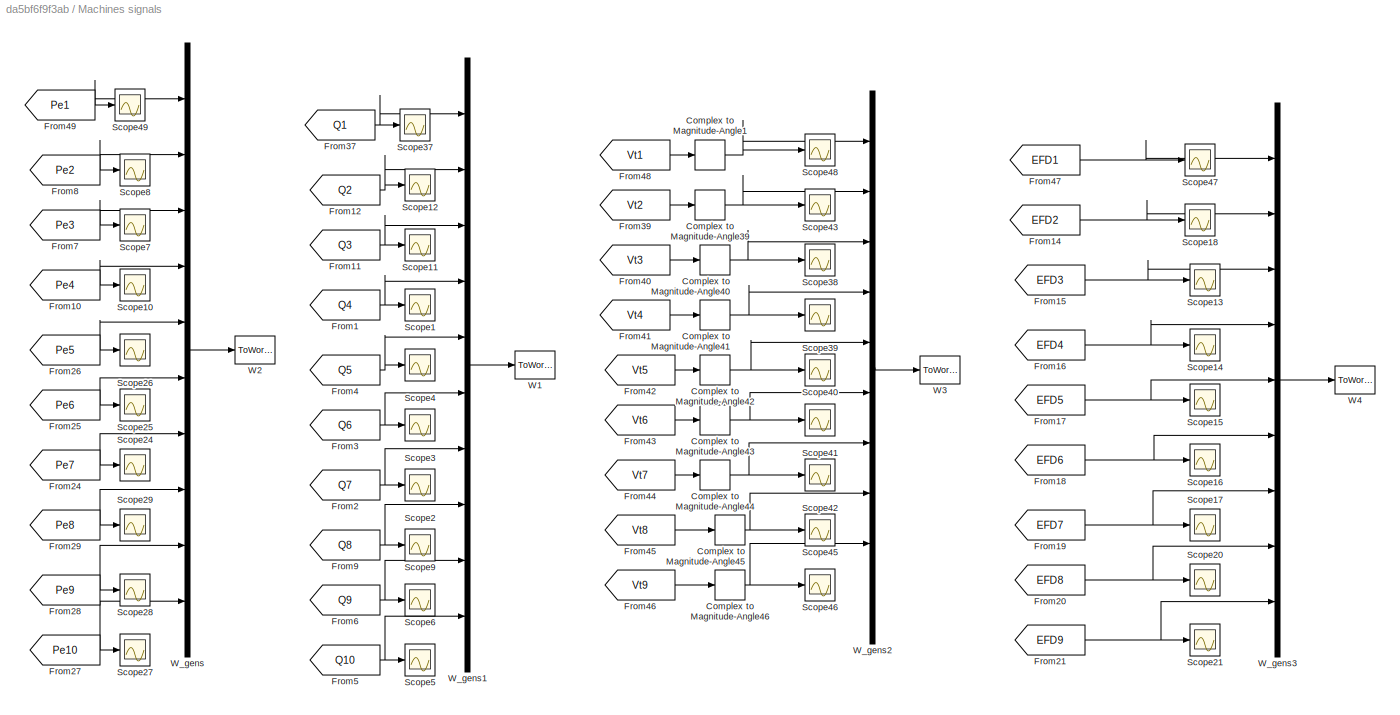
BLOCK [SubSystem] Machines signals
  FunctionWithSeparateData = off
  MaskHideContents = off
  MinAlgLoopOccurrences = off
  Opaque = off
  Ports = []
  PropExecContextOutsideSubsystem = off
  RTWSystemCode = Auto
  RequestExecContextInheritance = off
BLOCK [ComplexToMagnitudeAngle] Machines signals/Complex to Magnitude-Angle1
  Output = Magnitude
  Ports = [1, 1]
BLOCK [ComplexToMagnitudeAngle] Machines signals/Complex to Magnitude-Angle39
  Output = Magnitude
  Ports = [1, 1]
BLOCK [ComplexToMagnitudeAngle] Machines signals/Complex to Magnitude-Angle40
  Output = Magnitude
  Ports = [1, 1]
BLOCK [ComplexToMagnitudeAngle] Machines signals/Complex to Magnitude-Angle41
  Output = Magnitude
  Ports = [1, 1]
BLOCK [ComplexToMagnitudeAngle] Machines signals/Complex to Magnitude-Angle42
  Output = Magnitude
  Ports = [1, 1]
BLOCK [ComplexToMagnitudeAngle] Machines signals/Complex to Magnitude-Angle43
  Output = Magnitude
  Ports = [1, 1]
BLOCK [ComplexToMagnitudeAngle] Machines signals/Complex to Magnitude-Angle44
  Output = Magnitude
  Ports = [1, 1]
BLOCK [ComplexToMagnitudeAngle] Machines signals/Complex to Magnitude-Angle45
  Output = Magnitude
  Ports = [1, 1]
BLOCK [ComplexToMagnitudeAngle] Machines signals/Complex to Magnitude-Angle46
  Output = Magnitude
  Ports = [1, 1]
BLOCK [From] Machines signals/From1
  CloseFcn = tagdialog Close
  GotoTag = Q4
  TagVisibility = global
BLOCK [From] Machines signals/From10
  CloseFcn = tagdialog Close
  GotoTag = Pe4
  TagVisibility = global
BLOCK [From] Machines signals/From11
  CloseFcn = tagdialog Close
  GotoTag = Q3
  TagVisibility = global
BLOCK [From] Machines signals/From12
  CloseFcn = tagdialog Close
  GotoTag = Q2
  TagVisibility = global
BLOCK [From] Machines signals/From14
  CloseFcn = tagdialog Close
  GotoTag = EFD2
  IconDisplay = Signal name
  TagVisibility = global
BLOCK [From] Machines signals/From15
  CloseFcn = tagdialog Close
  GotoTag = EFD3
  IconDisplay = Signal name
  TagVisibility = global
BLOCK [From] Machines signals/From16
  CloseFcn = tagdialog Close
  GotoTag = EFD4
  IconDisplay = Signal name
  TagVisibility = global
BLOCK [From] Machines signals/From17
  CloseFcn = tagdialog Close
  GotoTag = EFD5
  IconDisplay = Signal name
  TagVisibility = global
BLOCK [From] Machines signals/From18
  CloseFcn = tagdialog Close
  GotoTag = EFD6
  IconDisplay = Signal name
  TagVisibility = global
BLOCK [From] Machines signals/From19
  CloseFcn = tagdialog Close
  GotoTag = EFD7
  IconDisplay = Signal name
  TagVisibility = global
BLOCK [From] Machines signals/From2
  CloseFcn = tagdialog Close
  GotoTag = Q7
  TagVisibility = global
BLOCK [From] Machines signals/From20
  CloseFcn = tagdialog Close
  GotoTag = EFD8
  IconDisplay = Signal name
  TagVisibility = global
BLOCK [From] Machines signals/From21
  CloseFcn = tagdialog Close
  GotoTag = EFD9
  IconDisplay = Signal name
  TagVisibility = global
BLOCK [From] Machines signals/From24
  CloseFcn = tagdialog Close
  GotoTag = Pe7
  TagVisibility = global
BLOCK [From] Machines signals/From25
  CloseFcn = tagdialog Close
  GotoTag = Pe6
  TagVisibility = global
BLOCK [From] Machines signals/From26
  CloseFcn = tagdialog Close
  GotoTag = Pe5
  TagVisibility = global
BLOCK [From] Machines signals/From27
  CloseFcn = tagdialog Close
  GotoTag = Pe10
  TagVisibility = global
BLOCK [From] Machines signals/From28
  CloseFcn = tagdialog Close
  GotoTag = Pe9
  TagVisibility = global
BLOCK [From] Machines signals/From29
  CloseFcn = tagdialog Close
  GotoTag = Pe8
  TagVisibility = global
BLOCK [From] Machines signals/From3
  CloseFcn = tagdialog Close
  GotoTag = Q6
  TagVisibility = global
BLOCK [From] Machines signals/From37
  CloseFcn = tagdialog Close
  GotoTag = Q1
  TagVisibility = global
BLOCK [From] Machines signals/From39
  CloseFcn = tagdialog Close
  GotoTag = Vt2
  IconDisplay = Signal name
  TagVisibility = global
BLOCK [From] Machines signals/From4
  CloseFcn = tagdialog Close
  GotoTag = Q5
  TagVisibility = global
BLOCK [From] Machines signals/From40
  CloseFcn = tagdialog Close
  GotoTag = Vt3
  IconDisplay = Signal name
  TagVisibility = global
BLOCK [From] Machines signals/From41
  CloseFcn = tagdialog Close
  GotoTag = Vt4
  IconDisplay = Signal name
  TagVisibility = global
BLOCK [From] Machines signals/From42
  CloseFcn = tagdialog Close
  GotoTag = Vt5
  IconDisplay = Signal name
  TagVisibility = global
BLOCK [From] Machines signals/From43
  CloseFcn = tagdialog Close
  GotoTag = Vt6
  IconDisplay = Signal name
  TagVisibility = global
BLOCK [From] Machines signals/From44
  CloseFcn = tagdialog Close
  GotoTag = Vt7
  IconDisplay = Signal name
  TagVisibility = global
BLOCK [From] Machines signals/From45
  CloseFcn = tagdialog Close
  GotoTag = Vt8
  IconDisplay = Signal name
  TagVisibility = global
BLOCK [From] Machines signals/From46
  CloseFcn = tagdialog Close
  GotoTag = Vt9
  IconDisplay = Signal name
  TagVisibility = global
BLOCK [From] Machines signals/From47
  CloseFcn = tagdialog Close
  GotoTag = EFD1
  IconDisplay = Signal name
  TagVisibility = global
BLOCK [From] Machines signals/From48
  CloseFcn = tagdialog Close
  GotoTag = Vt1
  IconDisplay = Signal name
  TagVisibility = global
BLOCK [From] Machines signals/From49
  CloseFcn = tagdialog Close
  GotoTag = Pe1
  TagVisibility = global
BLOCK [From] Machines signals/From5
  CloseFcn = tagdialog Close
  GotoTag = Q10
  TagVisibility = global
BLOCK [From] Machines signals/From6
  CloseFcn = tagdialog Close
  GotoTag = Q9
  TagVisibility = global
BLOCK [From] Machines signals/From7
  CloseFcn = tagdialog Close
  GotoTag = Pe3
  TagVisibility = global
BLOCK [From] Machines signals/From8
  CloseFcn = tagdialog Close
  GotoTag = Pe2
  TagVisibility = global
BLOCK [From] Machines signals/From9
  CloseFcn = tagdialog Close
  GotoTag = Q8
  TagVisibility = global
BLOCK [Scope] Machines signals/Scope1
  DataFormat = StructureWithTime
  Floating = off
  LimitDataPoints = off
  NumInputPorts = 1
  Ports = [1]
  SampleTime = 0
  SaveName = v23
  ShowLegends = off
  YMax = 0.07
  YMin = -0.07
  ZoomMode = xonly
BLOCK [Scope] Machines signals/Scope10
  DataFormat = StructureWithTime
  Floating = off
  LimitDataPoints = off
  NumInputPorts = 1
  Ports = [1]
  SampleTime = 0
  SaveName = v27
  ShowLegends = off
  YMax = 0.07
  YMin = -0.07
  ZoomMode = xonly
BLOCK [Scope] Machines signals/Scope11
  DataFormat = StructureWithTime
  Floating = off
  LimitDataPoints = off
  NumInputPorts = 1
  Ports = [1]
  SampleTime = 0
  SaveName = v24
  ShowLegends = off
  YMax = 0.07
  YMin = -0.07
  ZoomMode = yonly
BLOCK [Scope] Machines signals/Scope12
  DataFormat = StructureWithTime
  Floating = off
  LimitDataPoints = off
  NumInputPorts = 1
  Ports = [1]
  SampleTime = 0
  SaveName = v25
  ShowLegends = off
  YMax = 0.07
  YMin = -0.07
  ZoomMode = xonly
BLOCK [Scope] Machines signals/Scope13
  DataFormat = StructureWithTime
  Floating = off
  LimitDataPoints = off
  NumInputPorts = 1
  Ports = [1]
  SampleTime = 0
  SaveName = v39
  ShowLegends = off
  YMax = 0.07
  YMin = -0.07
  ZoomMode = yonly
BLOCK [Scope] Machines signals/Scope14
  DataFormat = StructureWithTime
  Floating = off
  LimitDataPoints = off
  NumInputPorts = 1
  Ports = [1]
  SampleTime = 0
  SaveName = v40
  ShowLegends = off
  YMax = 0.07
  YMin = -0.07
  ZoomMode = yonly
BLOCK [Scope] Machines signals/Scope15
  DataFormat = StructureWithTime
  Floating = off
  LimitDataPoints = off
  NumInputPorts = 1
  Ports = [1]
  SampleTime = 0
  SaveName = v41
  ShowLegends = off
  YMax = 0.07
  YMin = -0.07
  ZoomMode = yonly
BLOCK [Scope] Machines signals/Scope16
  DataFormat = StructureWithTime
  Floating = off
  LimitDataPoints = off
  NumInputPorts = 1
  Ports = [1]
  SampleTime = 0
  SaveName = v42
  ShowLegends = off
  YMax = 0.07
  YMin = -0.07
  ZoomMode = yonly
BLOCK [Scope] Machines signals/Scope17
  DataFormat = StructureWithTime
  Floating = off
  LimitDataPoints = off
  NumInputPorts = 1
  Ports = [1]
  SampleTime = 0
  SaveName = v43
  ShowLegends = off
  YMax = 0.07
  YMin = -0.07
  ZoomMode = xonly
BLOCK [Scope] Machines signals/Scope18
  DataFormat = StructureWithTime
  Floating = off
  LimitDataPoints = off
  NumInputPorts = 1
  Ports = [1]
  SampleTime = 0
  SaveName = v44
  ShowLegends = off
  YMax = 0.07
  YMin = -0.07
  ZoomMode = yonly
BLOCK [Scope] Machines signals/Scope2
  DataFormat = StructureWithTime
  Floating = off
  LimitDataPoints = off
  NumInputPorts = 1
  Ports = [1]
  SampleTime = 0
  SaveName = v33
  ShowLegends = off
  YMax = 0.07
  YMin = -0.07
  ZoomMode = xonly
BLOCK [Scope] Machines signals/Scope20
  DataFormat = StructureWithTime
  Floating = off
  LimitDataPoints = off
  NumInputPorts = 1
  Ports = [1]
  SampleTime = 0
  SaveName = v45
  ShowLegends = off
  YMax = 0.07
  YMin = -0.07
  ZoomMode = xonly
BLOCK [Scope] Machines signals/Scope21
  DataFormat = StructureWithTime
  Floating = off
  LimitDataPoints = off
  NumInputPorts = 1
  Ports = [1]
  SampleTime = 0
  SaveName = v46
  ShowLegends = off
  YMax = 0.07
  YMin = -0.07
  ZoomMode = xonly
BLOCK [Scope] Machines signals/Scope24
  DataFormat = StructureWithTime
  Floating = off
  LimitDataPoints = off
  NumInputPorts = 1
  Ports = [1]
  SampleTime = 0
  SaveName = v28
  ShowLegends = off
  YMax = 0.07
  YMin = -0.07
  ZoomMode = xonly
BLOCK [Scope] Machines signals/Scope25
  DataFormat = StructureWithTime
  Floating = off
  LimitDataPoints = off
  NumInputPorts = 1
  Ports = [1]
  SampleTime = 0
  SaveName = v29
  ShowLegends = off
  YMax = 0.07
  YMin = -0.07
  ZoomMode = yonly
BLOCK [Scope] Machines signals/Scope26
  DataFormat = StructureWithTime
  Floating = off
  LimitDataPoints = off
  NumInputPorts = 1
  Ports = [1]
  SampleTime = 0
  SaveName = v30
  ShowLegends = off
  YMax = 0.07
  YMin = -0.07
  ZoomMode = xonly
BLOCK [Scope] Machines signals/Scope27
  DataFormat = StructureWithTime
  Floating = off
  LimitDataPoints = off
  NumInputPorts = 1
  Ports = [1]
  SampleTime = 0
  SaveName = v31
  ShowLegends = off
  YMax = 0.07
  YMin = -0.07
  ZoomMode = xonly
BLOCK [Scope] Machines signals/Scope28
  DataFormat = StructureWithTime
  Floating = off
  LimitDataPoints = off
  NumInputPorts = 1
  Ports = [1]
  SampleTime = 0
  SaveName = v32
  ShowLegends = off
  YMax = 0.07
  YMin = -0.07
  ZoomMode = yonly
BLOCK [Scope] Machines signals/Scope29
  DataFormat = StructureWithTime
  Floating = off
  LimitDataPoints = off
  NumInputPorts = 1
  Ports = [1]
  SampleTime = 0
  SaveName = v47
  ShowLegends = off
  YMax = 0.07
  YMin = -0.07
  ZoomMode = xonly
BLOCK [Scope] Machines signals/Scope3
  DataFormat = StructureWithTime
  Floating = off
  LimitDataPoints = off
  NumInputPorts = 1
  Ports = [1]
  SampleTime = 0
  SaveName = v34
  ShowLegends = off
  YMax = 0.07
  YMin = -0.07
  ZoomMode = yonly
BLOCK [Scope] Machines signals/Scope37
  DataFormat = StructureWithTime
  Floating = off
  LimitDataPoints = off
  NumInputPorts = 1
  Ports = [1]
  SampleTime = 0
  SaveName = v58
  ShowLegends = off
  YMax = 0.07
  YMin = -0.07
  ZoomMode = xonly
BLOCK [Scope] Machines signals/Scope38
  DataFormat = StructureWithTime
  Floating = off
  LimitDataPoints = off
  NumInputPorts = 1
  Ports = [1]
  SampleTime = 0
  SaveName = v52
  ShowLegends = off
  YMax = 0.07
  YMin = -0.07
  ZoomMode = yonly
BLOCK [Scope] Machines signals/Scope39
  DataFormat = StructureWithTime
  Floating = off
  LimitDataPoints = off
  NumInputPorts = 1
  Ports = [1]
  SampleTime = 0
  SaveName = v53
  ShowLegends = off
  YMax = 0.07
  YMin = -0.07
  ZoomMode = yonly
BLOCK [Scope] Machines signals/Scope4
  DataFormat = StructureWithTime
  Floating = off
  LimitDataPoints = off
  NumInputPorts = 1
  Ports = [1]
  SampleTime = 0
  SaveName = v35
  ShowLegends = off
  YMax = 0.07
  YMin = -0.07
  ZoomMode = xonly
BLOCK [Scope] Machines signals/Scope40
  DataFormat = StructureWithTime
  Floating = off
  LimitDataPoints = off
  NumInputPorts = 1
  Ports = [1]
  SampleTime = 0
  SaveName = v54
  ShowLegends = off
  YMax = 0.07
  YMin = -0.07
  ZoomMode = yonly
BLOCK [Scope] Machines signals/Scope41
  DataFormat = StructureWithTime
  Floating = off
  LimitDataPoints = off
  NumInputPorts = 1
  Ports = [1]
  SampleTime = 0
  SaveName = v55
  ShowLegends = off
  YMax = 0.07
  YMin = -0.07
  ZoomMode = yonly
BLOCK [Scope] Machines signals/Scope42
  DataFormat = StructureWithTime
  Floating = off
  LimitDataPoints = off
  NumInputPorts = 1
  Ports = [1]
  SampleTime = 0
  SaveName = v56
  ShowLegends = off
  YMax = 0.07
  YMin = -0.07
  ZoomMode = xonly
BLOCK [Scope] Machines signals/Scope43
  DataFormat = StructureWithTime
  Floating = off
  LimitDataPoints = off
  NumInputPorts = 1
  Ports = [1]
  SampleTime = 0
  SaveName = v57
  ShowLegends = off
  YMax = 0.07
  YMin = -0.07
  ZoomMode = yonly
BLOCK [Scope] Machines signals/Scope45
  DataFormat = StructureWithTime
  Floating = off
  LimitDataPoints = off
  NumInputPorts = 1
  Ports = [1]
  SampleTime = 0
  SaveName = v59
  ShowLegends = off
  YMax = 0.07
  YMin = -0.07
  ZoomMode = xonly
BLOCK [Scope] Machines signals/Scope46
  DataFormat = StructureWithTime
  Floating = off
  LimitDataPoints = off
  NumInputPorts = 1
  Ports = [1]
  SampleTime = 0
  SaveName = v60
  ShowLegends = off
  YMax = 0.07
  YMin = -0.07
  ZoomMode = xonly
BLOCK [Scope] Machines signals/Scope47
  DataFormat = StructureWithTime
  Floating = off
  LimitDataPoints = off
  NumInputPorts = 1
  Ports = [1]
  SampleTime = 0
  SaveName = v61
  ShowLegends = off
  YMax = 0.07
  YMin = -0.07
  ZoomMode = yonly
BLOCK [Scope] Machines signals/Scope48
  DataFormat = StructureWithTime
  Floating = off
  LimitDataPoints = off
  NumInputPorts = 1
  Ports = [1]
  SampleTime = 0
  SaveName = v73
  ShowLegends = off
  YMax = 0.07
  YMin = -0.07
  ZoomMode = yonly
BLOCK [Scope] Machines signals/Scope49
  DataFormat = StructureWithTime
  Floating = off
  LimitDataPoints = off
  NumInputPorts = 1
  Ports = [1]
  SampleTime = 0
  SaveName = v76
  ShowLegends = off
  YMax = 0.07
  YMin = -0.07
  ZoomMode = xonly
BLOCK [Scope] Machines signals/Scope5
  DataFormat = StructureWithTime
  Floating = off
  LimitDataPoints = off
  NumInputPorts = 1
  Ports = [1]
  SampleTime = 0
  SaveName = v36
  ShowLegends = off
  YMax = 0.07
  YMin = -0.07
  ZoomMode = xonly
BLOCK [Scope] Machines signals/Scope6
  DataFormat = StructureWithTime
  Floating = off
  LimitDataPoints = off
  NumInputPorts = 1
  Ports = [1]
  SampleTime = 0
  SaveName = v37
  ShowLegends = off
  YMax = 0.07
  YMin = -0.07
  ZoomMode = yonly
BLOCK [Scope] Machines signals/Scope7
  DataFormat = StructureWithTime
  Floating = off
  LimitDataPoints = off
  NumInputPorts = 1
  Ports = [1]
  SampleTime = 0
  SaveName = v26
  ShowLegends = off
  YMax = 0.07
  YMin = -0.07
  ZoomMode = yonly
BLOCK [Scope] Machines signals/Scope8
  DataFormat = StructureWithTime
  Floating = off
  LimitDataPoints = off
  NumInputPorts = 1
  Ports = [1]
  SampleTime = 0
  SaveName = v7
  ShowLegends = off
  YMax = 0.07
  YMin = -0.07
  ZoomMode = yonly
BLOCK [Scope] Machines signals/Scope9
  DataFormat = StructureWithTime
  Floating = off
  LimitDataPoints = off
  NumInputPorts = 1
  Ports = [1]
  SampleTime = 0
  SaveName = v38
  ShowLegends = off
  YMax = 0.07
  YMin = -0.07
  ZoomMode = xonly
BLOCK [ToWorkspace] Machines signals/W1
  MaxDataPoints = inf
  Ports = [1]
  SampleTime = 1/60
  VariableName = Qe
BLOCK [ToWorkspace] Machines signals/W2
  MaxDataPoints = inf
  Ports = [1]
  SampleTime = 1/60
  VariableName = Pe
BLOCK [ToWorkspace] Machines signals/W3
  MaxDataPoints = inf
  Ports = [1]
  SampleTime = 1/60
  VariableName = Vt
BLOCK [ToWorkspace] Machines signals/W4
  MaxDataPoints = inf
  Ports = [1]
  SampleTime = 1/60
  VariableName = EFD
BLOCK [Mux] Machines signals/W_gens
  DisplayOption = bar
  Inputs = 10
  Ports = [10, 1]
BLOCK [Mux] Machines signals/W_gens1
  DisplayOption = bar
  Inputs = 10
  Ports = [10, 1]
BLOCK [Mux] Machines signals/W_gens2
  DisplayOption = bar
  Inputs = 10
  Ports = [10, 1]
BLOCK [Mux] Machines signals/W_gens3
  DisplayOption = bar
  Inputs = 9
  Ports = [9, 1]
BLOCK [Constant] PSS model
  Value = PSSMODEL
BLOCK [Scope] Scope1
  DataFormat = StructureWithTime
  Floating = off
  LimitDataPoints = off
  NumInputPorts = 2
  Ports = [2]
  SampleTime = 0
  SaveName = P
  SaveToWorkspace = on
  ShowLegends = off
  TimeRange = 5
  YMax = 201336000~25057000
  YMin = 201330000~25053000
  ZoomMode = yonly
BLOCK [Stop] Stop simulation if loss of synchronism
BLOCK [Scope] System
  DataFormat = StructureWithTime
  Floating = off
  LimitDataPoints = off
  NumInputPorts = 2
  Ports = [2]
  SaveName = mach1
  ShowLegends = off
  TimeRange = 20
  YMax = 1.15~500
  YMin = 0.75~175
BLOCK [SubSystem] System Data
  FunctionWithSeparateData = off
  MaskHideContents = off
  MinAlgLoopOccurrences = off
  Opaque = off
  Ports = [0, 2]
  PropExecContextOutsideSubsystem = off
  RTWSystemCode = Auto
  RequestExecContextInheritance = off
BLOCK [Gain] System Data/->pu
  Gain = 1/(230e3/sqrt(3)*sqrt(2))
BLOCK [Reference] System Data/3-Phase Active & Reactive Power (Phasor Type)  REF=powerlib_extras/Phasor
Library/3-Phase
Active & Reactive Power
(Phasor Type)
  Ports = [2, 1]
  SourceBlock = powerlib_extras/Phasor\nLibrary/3-Phase\nActive & Reactive Power\n(Phasor Type)
  SourceType = 3-Phase Active & Reactive Power (Phasor Type)
BLOCK [ComplexToMagnitudeAngle] System Data/Complex to Magnitude-Angle
  Output = Magnitude
  Ports = [1, 1]
BLOCK [ComplexToMagnitudeAngle] System Data/Complex to Magnitude-Angle1
  Output = Magnitude
  Ports = [1, 1]
BLOCK [From] System Data/From
  CloseFcn = tagdialog Close
  GotoTag = Vabc_B4
  TagVisibility = global
BLOCK [From] System Data/From1
  CloseFcn = tagdialog Close
  GotoTag = Iabc_B4
  TagVisibility = global
BLOCK [From] System Data/From2
  CloseFcn = tagdialog Close
  GotoTag = Vabc_B3
  TagVisibility = global
BLOCK [Mux] System Data/Mux
  DisplayOption = bar
  Inputs = 2
  Ports = [2, 1]
BLOCK [Gain] System Data/P34
  Gain = 1e-6
BLOCK [Selector] System Data/Selector
  IndexOptions = Index vector (dialog)
  Indices = 1
  InputPortWidth = 2
  OutputSizes = 1
  Ports = [1, 1]
BLOCK [Reference] System Data/Sequence Analyzer (Phasor Type)  REF=powerlib_extras/Phasor
Library/Sequence Analyzer
(Phasor Type)
  Ports = [1, 2]
  SourceBlock = powerlib_extras/Phasor\nLibrary/Sequence Analyzer\n(Phasor Type)
  SourceType = Sequence Analyzer (Phasor Type)
  seq = Positive
BLOCK [Reference] System Data/Sequence Analyzer (Phasor Type)1  REF=powerlib_extras/Phasor
Library/Sequence Analyzer
(Phasor Type)
  Ports = [1, 2]
  SourceBlock = powerlib_extras/Phasor\nLibrary/Sequence Analyzer\n(Phasor Type)
  SourceType = Sequence Analyzer (Phasor Type)
  seq = Positive
BLOCK [Terminator] System Data/Terminator1
BLOCK [Terminator] System Data/Terminator2
BLOCK [Scope] System Data/Vabc_B3
  DataFormat = StructureWithTime
  Floating = off
  LimitDataPoints = off
  NumInputPorts = 1
  Ports = [1]
  SaveName = mach3
  ShowLegends = off
  TimeRange = 10
  YMax = 90
  YMin = 20
BLOCK [Scope] System Data/Vabc_B4
  DataFormat = StructureWithTime
  Floating = off
  LimitDataPoints = off
  NumInputPorts = 1
  Ports = [1]
  SaveName = mach2
  ShowLegends = off
  TimeRange = 10
  YMax = 90
  YMin = 20
BLOCK [Outport] System Data/Vps
  IconDisplay = Port number
BLOCK [ToWorkspace] System Data/W2
  MaxDataPoints = inf
  Ports = [1]
  SampleTime = 1/60
  VariableName = P21
BLOCK [Outport] System Data/p34
  IconDisplay = Port number
  Port = 2
BLOCK [Reference] T2: 900MVA 20 kV//230 kV1  REF=powerlib/Elements/Three-Phase
Transformer
(Two Windings)
  AttributesFormatString = \n
  BreakLoop = off
  DataFile = 'hysteresis'
  DataType = off
  Hysteresis = off
  InitialFluxes = [ 0.8 , -0.8 , 0.7 ]
  Lm = 500
  Measurements = None
  MoreParameters = off
  NominalPower = [ 1000e6 60 ]
  Ports = [0, 0, 0, 0, 0, 3, 3]
  Rm = 500
  Saturation = [ 0,0  ;  0.005,1.2  ;  1.0,1.4 ]
  SetInitialFlux = off
  SetSaturation = off
  SourceBlock = powerlib/Elements/Three-Phase\nTransformer\n(Two Windings)
  SourceType = Three-Phase Transformer (Two Windings)
  TransfoNumber = 0
  UNITS = pu
  Winding1 = [ 22e3*1.0 0.0003*s  0]
  Winding1Connection = Delta (D1)
  Winding2 = [ 345e3*1.0 0.0003*s  0.0232*s]
  Winding2Connection = Yg
BLOCK [Reference] T2: 900MVA 20 kV//230 kV10  REF=powerlib/Elements/Three-Phase
Transformer
(Two Windings)
  AttributesFormatString = \n
  BreakLoop = off
  DataFile = 'hysteresis'
  DataType = off
  Hysteresis = off
  InitialFluxes = [ 0.8 , -0.8 , 0.7 ]
  Lm = 500
  Measurements = None
  MoreParameters = off
  NominalPower = [ 1000e6 60 ]
  Ports = [0, 0, 0, 0, 0, 3, 3]
  Rm = 500
  Saturation = [ 0,0  ;  0.005,1.2  ;  1.0,1.4 ]
  SetInitialFlux = off
  SetSaturation = off
  SourceBlock = powerlib/Elements/Three-Phase\nTransformer\n(Two Windings)
  SourceType = Three-Phase Transformer (Two Windings)
  TransfoNumber = 0
  UNITS = pu
  Winding1 = [ 22e3*1.0   0.00035*s  0]
  Winding1Connection = Delta (D1)
  Winding2 = [ 345e3*1.0  0.00035*s  0.0142*s]
  Winding2Connection = Yg
BLOCK [Reference] T2: 900MVA 20 kV//230 kV11  REF=powerlib/Elements/Three-Phase
Transformer
(Two Windings)
  AttributesFormatString = \n
  BreakLoop = off
  DataFile = 'hysteresis'
  DataType = off
  Hysteresis = off
  InitialFluxes = [ 0.8 , -0.8 , 0.7 ]
  Lm = 500
  Measurements = None
  MoreParameters = off
  NominalPower = [ 1000e6 60 ]
  Ports = [0, 0, 0, 0, 0, 3, 3]
  Rm = 500
  Saturation = [ 0,0  ;  0.005,1.2  ;  1.0,1.4 ]
  SetInitialFlux = off
  SetSaturation = off
  SourceBlock = powerlib/Elements/Three-Phase\nTransformer\n(Two Windings)
  SourceType = Three-Phase Transformer (Two Windings)
  TransfoNumber = 0
  UNITS = pu
  Winding1 = [ 22e3*1.0  1e-6  0]
  Winding1Connection = Delta (D1)
  Winding2 = [ 345e3*1.0  1e-6  0.0143*s]
  Winding2Connection = Yg
BLOCK [Reference] T2: 900MVA 20 kV//230 kV12  REF=powerlib/Elements/Three-Phase
Transformer
(Two Windings)
  AttributesFormatString = \n
  BreakLoop = off
  DataFile = 'hysteresis'
  DataType = off
  Hysteresis = off
  InitialFluxes = [ 0.8 , -0.8 , 0.7 ]
  Lm = 500
  Measurements = None
  MoreParameters = off
  NominalPower = [ 1000e6 60 ]
  Ports = [0, 0, 0, 0, 0, 3, 3]
  Rm = 500
  Saturation = [ 0,0  ;  0.005,1.2  ;  1.0,1.4 ]
  SetInitialFlux = off
  SetSaturation = off
  SourceBlock = powerlib/Elements/Three-Phase\nTransformer\n(Two Windings)
  SourceType = Three-Phase Transformer (Two Windings)
  TransfoNumber = 0
  UNITS = pu
  Winding1 = [ 22e3    0.00025*s  0.0]
  Winding1Connection = Delta (D1)
  Winding2 = [ 345e3    0.00025*s  0.0272*s]
  Winding2Connection = Yg
BLOCK [Reference] T2: 900MVA 20 kV//230 kV2  REF=powerlib/Elements/Three-Phase
Transformer
(Two Windings)
  AttributesFormatString = \n
  BreakLoop = off
  DataFile = 'hysteresis'
  DataType = off
  Hysteresis = off
  InitialFluxes = [ 0.8 , -0.8 , 0.7 ]
  Lm = 500
  Measurements = None
  MoreParameters = off
  NominalPower = [ 1000e6 60 ]
  Ports = [0, 0, 0, 0, 0, 3, 3]
  Rm = 500
  Saturation = [ 0,0  ;  0.005,1.2  ;  1.0,1.4 ]
  SetInitialFlux = off
  SetSaturation = off
  SourceBlock = powerlib/Elements/Three-Phase\nTransformer\n(Two Windings)
  SourceType = Three-Phase Transformer (Two Windings)
  TransfoNumber = 0
  UNITS = pu
  Winding1 = [ 22e3*1.0  1e-6  0]
  Winding1Connection = Delta (D1)
  Winding2 = [ 345e3*1.0  1e-6  0.0181*s]
  Winding2Connection = Yg
BLOCK [Reference] T2: 900MVA 20 kV//230 kV3  REF=powerlib/Elements/Three-Phase
Transformer
(Two Windings)
  AttributesFormatString = \n
  BreakLoop = off
  DataFile = 'hysteresis'
  DataType = off
  Hysteresis = off
  InitialFluxes = [ 0.8 , -0.8 , 0.7 ]
  Lm = 500
  Measurements = None
  MoreParameters = off
  NominalPower = [ 1000e6 60 ]
  Ports = [0, 0, 0, 0, 0, 3, 3]
  Rm = 500
  Saturation = [ 0,0  ;  0.005,1.2  ;  1.0,1.4 ]
  SetInitialFlux = off
  SetSaturation = off
  SourceBlock = powerlib/Elements/Three-Phase\nTransformer\n(Two Windings)
  SourceType = Three-Phase Transformer (Two Windings)
  TransfoNumber = 0
  UNITS = pu
  Winding1 = [ 22e3*1.0 1e-6  0]
  Winding1Connection = Delta (D1)
  Winding2 = [ 345e3*1.0  1e-6  0.0250*s ]
  Winding2Connection = Yg
BLOCK [Reference] T2: 900MVA 20 kV//230 kV4  REF=powerlib/Elements/Three-Phase
Transformer
(Two Windings)
  AttributesFormatString = \n
  BreakLoop = off
  DataFile = 'hysteresis'
  DataType = off
  Hysteresis = off
  InitialFluxes = [ 0.8 , -0.8 , 0.7 ]
  Lm = 500
  Measurements = None
  MoreParameters = off
  NominalPower = [ 1000e6 60 ]
  Ports = [0, 0, 0, 0, 0, 3, 3]
  Rm = 500
  Saturation = [ 0,0  ;  0.005,1.2  ;  1.0,1.4 ]
  SetInitialFlux = off
  SetSaturation = off
  SourceBlock = powerlib/Elements/Three-Phase\nTransformer\n(Two Windings)
  SourceType = Three-Phase Transformer (Two Windings)
  TransfoNumber = 0
  UNITS = pu
  Winding1 = [ 345e3 .0008*s  0]
  Winding1Connection = Y
  Winding2 = [ 230e3*1.00  .0008*s   .0435*s]
  Winding2Connection = Y
BLOCK [Reference] T2: 900MVA 20 kV//230 kV5  REF=powerlib/Elements/Three-Phase
Transformer
(Two Windings)
  AttributesFormatString = \n
  BreakLoop = off
  DataFile = 'hysteresis'
  DataType = off
  Hysteresis = off
  InitialFluxes = [ 0.8 , -0.8 , 0.7 ]
  Lm = 500
  Measurements = None
  MoreParameters = off
  NominalPower = [ 1000e6 60 ]
  Ports = [0, 0, 0, 0, 0, 3, 3]
  Rm = 500
  Saturation = [ 0,0  ;  0.005,1.2  ;  1.0,1.4 ]
  SetInitialFlux = off
  SetSaturation = off
  SourceBlock = powerlib/Elements/Three-Phase\nTransformer\n(Two Windings)
  SourceType = Three-Phase Transformer (Two Windings)
  TransfoNumber = 0
  UNITS = pu
  Winding1 = [ 345e3 .0008*s  0]
  Winding1Connection = Y
  Winding2 = [ 230e3*1.00 .0008*s  .0435*s]
  Winding2Connection = Y
BLOCK [Reference] T2: 900MVA 20 kV//230 kV6  REF=powerlib/Elements/Three-Phase
Transformer
(Two Windings)
  AttributesFormatString = \n
  BreakLoop = off
  DataFile = 'hysteresis'
  DataType = off
  Hysteresis = off
  InitialFluxes = [ 0.8 , -0.8 , 0.7 ]
  Lm = 500
  Measurements = None
  MoreParameters = off
  NominalPower = [ 1000e6 60 ]
  Ports = [0, 0, 0, 0, 0, 3, 3]
  Rm = 500
  Saturation = [ 0,0  ;  0.005,1.2  ;  1.0,1.4 ]
  SetInitialFlux = off
  SetSaturation = off
  SourceBlock = powerlib/Elements/Three-Phase\nTransformer\n(Two Windings)
  SourceType = Three-Phase Transformer (Two Windings)
  TransfoNumber = 0
  UNITS = pu
  Winding1 = [ 22e3*1.0 1e-6  0]
  Winding1Connection = Delta (D1)
  Winding2 = [ 345e3*1.0   1e-6    0.020*s*1.0 ]
  Winding2Connection = Yg
BLOCK [Reference] T2: 900MVA 20 kV//230 kV7  REF=powerlib/Elements/Three-Phase
Transformer
(Two Windings)
  AttributesFormatString = \n
  BreakLoop = off
  DataFile = 'hysteresis'
  DataType = off
  Hysteresis = off
  InitialFluxes = [ 0.8 , -0.8 , 0.7 ]
  Lm = 500
  Measurements = None
  MoreParameters = off
  NominalPower = [ 1000e6 60 ]
  Ports = [0, 0, 0, 0, 0, 3, 3]
  Rm = 500
  Saturation = [ 0,0  ;  0.005,1.2  ;  1.0,1.4 ]
  SetInitialFlux = off
  SetSaturation = off
  SourceBlock = powerlib/Elements/Three-Phase\nTransformer\n(Two Windings)
  SourceType = Three-Phase Transformer (Two Windings)
  TransfoNumber = 0
  UNITS = pu
  Winding1 = [ 22e3*1.  0.0004*s  0]
  Winding1Connection = Delta (D1)
  Winding2 = [ 345e3*1.0  0.0004*s  0.0156*s]
  Winding2Connection = Yg
BLOCK [Reference] T2: 900MVA 20 kV//230 kV8  REF=powerlib/Elements/Three-Phase
Transformer
(Two Windings)
  AttributesFormatString = \n
  BreakLoop = off
  DataFile = 'hysteresis'
  DataType = off
  Hysteresis = off
  InitialFluxes = [ 0.8 , -0.8 , 0.7 ]
  Lm = 500
  Measurements = None
  MoreParameters = off
  NominalPower = [ 1000e6 60 ]
  Ports = [0, 0, 0, 0, 0, 3, 3]
  Rm = 500
  Saturation = [ 0,0  ;  0.005,1.2  ;  1.0,1.4 ]
  SetInitialFlux = off
  SetSaturation = off
  SourceBlock = powerlib/Elements/Three-Phase\nTransformer\n(Two Windings)
  SourceType = Three-Phase Transformer (Two Windings)
  TransfoNumber = 0
  UNITS = pu
  Winding1 = [ 345e3*1.0  0.00035*s   0]
  Winding1Connection = Y
  Winding2 = [ 345e3*1.00 0.00035*s  0.0138*s]
  Winding2Connection = Y
BLOCK [Reference] T2: 900MVA 20 kV//230 kV9  REF=powerlib/Elements/Three-Phase
Transformer
(Two Windings)
  AttributesFormatString = \n
  BreakLoop = off
  DataFile = 'hysteresis'
  DataType = off
  Hysteresis = off
  InitialFluxes = [ 0.8 , -0.8 , 0.7 ]
  Lm = 500
  Measurements = None
  MoreParameters = off
  NominalPower = [ 1000e6 60 ]
  Ports = [0, 0, 0, 0, 0, 3, 3]
  Rm = 500
  Saturation = [ 0,0  ;  0.005,1.2  ;  1.0,1.4 ]
  SetInitialFlux = off
  SetSaturation = off
  SourceBlock = powerlib/Elements/Three-Phase\nTransformer\n(Two Windings)
  SourceType = Three-Phase Transformer (Two Windings)
  TransfoNumber = 0
  UNITS = pu
  Winding1 = [ 22e3*1.00 0.00045*s  0]
  Winding1Connection = Delta (D1)
  Winding2 = [ 345e3*1  0.00045*s  0.0180*s]
  Winding2Connection = Yg
BLOCK [Reference] Three-Phase V-I Measurement1  REF=powerlib/Measurements/Three-Phase
V-I Measurement
  CurrentMeasurement = yes
  Ipu = off
  LabelI = Iabc
  LabelV = Vabc
  OutputType = Complex
  PSBequivalent = 0
  Pbase = 100e6
  PhasorSimulation = on
  Ports = [0, 2, 0, 0, 0, 3, 3]
  SetLabelI = off
  SetLabelV = off
  SourceBlock = powerlib/Measurements/Three-Phase\nV-I Measurement
  SourceType = Three-Phase VI Measurement
  Vbase = 500e3
  VoltageMeasurement = phase-to-ground
  Vpu = off
  VpuLL = off
BLOCK [Reference] load12  REF=powerlib/Elements/Three-Phase
Parallel RLC Load
  ActivePower = 7.5e6
  AttributesFormatString = \n
  CapacitivePower = 0
  Configuration = Y (grounded)
  InductivePower = 88e6
  LConnTagsString = A|B|C
  LoadType = constant PQ
  Measurements = None
  NominalFrequency = 60
  NominalVoltage = (230000)*0.939625
  Ports = [0, 0, 0, 0, 0, 3]
  SourceBlock = powerlib/Elements/Three-Phase\nParallel RLC Load
  SourceType = Three-Phase Parallel RLC Load
BLOCK [Reference] load15  REF=powerlib/Elements/Three-Phase
Parallel RLC Load
  ActivePower = 320e6
  AttributesFormatString = \n
  CapacitivePower = 0
  Configuration = Y (grounded)
  InductivePower = 153e6
  LConnTagsString = A|B|C
  LoadType = constant PQ
  Measurements = None
  NominalFrequency = 60
  NominalVoltage = (345000)*0.969586
  Ports = [0, 0, 0, 0, 0, 3]
  SourceBlock = powerlib/Elements/Three-Phase\nParallel RLC Load
  SourceType = Three-Phase Parallel RLC Load
BLOCK [Reference] load16  REF=powerlib/Elements/Three-Phase
Parallel RLC Load
  ActivePower = 329e6
  AttributesFormatString = \n
  CapacitivePower = 0
  Configuration = Y (grounded)
  InductivePower = 32.3e6
  LConnTagsString = A|B|C
  LoadType = constant PQ
  Measurements = None
  NominalFrequency = 60
  NominalVoltage = (345000)*0.988678
  Ports = [0, 0, 0, 0, 0, 3]
  SourceBlock = powerlib/Elements/Three-Phase\nParallel RLC Load
  SourceType = Three-Phase Parallel RLC Load
BLOCK [Reference] load18  REF=powerlib/Elements/Three-Phase
Parallel RLC Load
  ActivePower = 158e6
  AttributesFormatString = \n
  CapacitivePower = 0
  Configuration = Y (grounded)
  InductivePower = 30e6
  LConnTagsString = A|B|C
  LoadType = constant PQ
  Measurements = None
  NominalFrequency = 60
  NominalVoltage = (345000)*0.991132
  Ports = [0, 0, 0, 0, 0, 3]
  SourceBlock = powerlib/Elements/Three-Phase\nParallel RLC Load
  SourceType = Three-Phase Parallel RLC Load
BLOCK [Reference] load20  REF=powerlib/Elements/Three-Phase
Parallel RLC Load
  ActivePower = 628e6
  AttributesFormatString = \n
  CapacitivePower = 0
  Configuration = Y (grounded)
  InductivePower = 103e6
  LConnTagsString = A|B|C
  LoadType = constant PQ
  Measurements = None
  NominalFrequency = 60
  NominalVoltage = (345000)*0.987086
  Ports = [0, 0, 0, 0, 0, 3]
  SourceBlock = powerlib/Elements/Three-Phase\nParallel RLC Load
  SourceType = Three-Phase Parallel RLC Load
BLOCK [Reference] load21  REF=powerlib/Elements/Three-Phase
Parallel RLC Load
  ActivePower = 274e6
  AttributesFormatString = \n
  CapacitivePower = 0
  Configuration = Y (grounded)
  InductivePower = 115e6
  LConnTagsString = A|B|C
  LoadType = constant PQ
  Measurements = None
  NominalFrequency = 60
  NominalVoltage = (345000)*0.995503
  Ports = [0, 0, 0, 0, 0, 3]
  SourceBlock = powerlib/Elements/Three-Phase\nParallel RLC Load
  SourceType = Three-Phase Parallel RLC Load
BLOCK [Reference] load23  REF=powerlib/Elements/Three-Phase
Parallel RLC Load
  ActivePower = 247.5e6
  AttributesFormatString = \n
  CapacitivePower = 0
  Configuration = Y (grounded)
  InductivePower = 84.6e6
  LConnTagsString = A|B|C
  LoadType = constant PQ
  Measurements = None
  NominalFrequency = 60
  NominalVoltage = (345000)*1.02041
  Ports = [0, 0, 0, 0, 0, 3]
  SourceBlock = powerlib/Elements/Three-Phase\nParallel RLC Load
  SourceType = Three-Phase Parallel RLC Load
BLOCK [Reference] load24  REF=powerlib/Elements/Three-Phase
Parallel RLC Load
  ActivePower = 308.6e6
  AttributesFormatString = \n
  CapacitivePower = 92e6
  Configuration = Y (grounded)
  InductivePower = 0
  LConnTagsString = A|B|C
  LoadType = constant PQ
  Measurements = None
  NominalFrequency = 60
  NominalVoltage = (345000)*0.996934
  Ports = [0, 0, 0, 0, 0, 3]
  SourceBlock = powerlib/Elements/Three-Phase\nParallel RLC Load
  SourceType = Three-Phase Parallel RLC Load
BLOCK [Reference] load25  REF=powerlib/Elements/Three-Phase
Parallel RLC Load
  ActivePower = 224e6
  AttributesFormatString = \n
  CapacitivePower = 0
  Configuration = Y (grounded)
  InductivePower = 47.2e6
  LConnTagsString = A|B|C
  LoadType = constant PQ
  Measurements = None
  NominalFrequency = 60
  NominalVoltage = (345000)*1.0284
  Ports = [0, 0, 0, 0, 0, 3]
  SourceBlock = powerlib/Elements/Three-Phase\nParallel RLC Load
  SourceType = Three-Phase Parallel RLC Load
BLOCK [Reference] load26  REF=powerlib/Elements/Three-Phase
Parallel RLC Load
  ActivePower = 139e6
  AttributesFormatString = \n
  CapacitivePower = 0
  Configuration = Y (grounded)
  InductivePower = 17e6
  LConnTagsString = A|B|C
  LoadType = constant PQ
  Measurements = None
  NominalFrequency = 60
  NominalVoltage = (345000)*1.01809
  Ports = [0, 0, 0, 0, 0, 3]
  SourceBlock = powerlib/Elements/Three-Phase\nParallel RLC Load
  SourceType = Three-Phase Parallel RLC Load
BLOCK [Reference] load27  REF=powerlib/Elements/Three-Phase
Parallel RLC Load
  ActivePower = 281e6
  AttributesFormatString = \n
  CapacitivePower = 0
  Configuration = Y (grounded)
  InductivePower = 75.5e6
  LConnTagsString = A|B|C
  LoadType = constant PQ
  Measurements = None
  NominalFrequency = 60
  NominalVoltage = (345000)*1.00029
  Ports = [0, 0, 0, 0, 0, 3]
  SourceBlock = powerlib/Elements/Three-Phase\nParallel RLC Load
  SourceType = Three-Phase Parallel RLC Load
BLOCK [Reference] load28  REF=powerlib/Elements/Three-Phase
Parallel RLC Load
  ActivePower = 206e6
  AttributesFormatString = \n
  CapacitivePower = 0
  Configuration = Y (grounded)
  InductivePower = 27.6e6
  LConnTagsString = A|B|C
  LoadType = constant PQ
  Measurements = None
  NominalFrequency = 60
  NominalVoltage = (345000)*1.01937
  Ports = [0, 0, 0, 0, 0, 3]
  SourceBlock = powerlib/Elements/Three-Phase\nParallel RLC Load
  SourceType = Three-Phase Parallel RLC Load
BLOCK [Reference] load29  REF=powerlib/Elements/Three-Phase
Parallel RLC Load
  ActivePower = 283.5e6
  AttributesFormatString = \n
  CapacitivePower = 0
  Configuration = Y (grounded)
  InductivePower = 26.9e6
  LConnTagsString = A|B|C
  LoadType = constant PQ
  Measurements = None
  NominalFrequency = 60
  NominalVoltage = (345000)*1.02077
  Ports = [0, 0, 0, 0, 0, 3]
  SourceBlock = powerlib/Elements/Three-Phase\nParallel RLC Load
  SourceType = Three-Phase Parallel RLC Load
BLOCK [Reference] load3  REF=powerlib/Elements/Three-Phase
Parallel RLC Load
  ActivePower = 322e6
  AttributesFormatString = \n
  CapacitivePower = 0
  Configuration = Y (grounded)
  InductivePower = 2.4e6
  LConnTagsString = A|B|C
  LoadType = constant PQ
  Measurements = None
  NominalFrequency = 60
  NominalVoltage = (345000)*0.992094
  Ports = [0, 0, 0, 0, 0, 3]
  SourceBlock = powerlib/Elements/Three-Phase\nParallel RLC Load
  SourceType = Three-Phase Parallel RLC Load
BLOCK [Reference] load31  REF=powerlib/Elements/Three-Phase
Parallel RLC Load
  ActivePower = 9.2e6
  AttributesFormatString = \n
  CapacitivePower = 0
  Configuration = Y (grounded)
  InductivePower = 4.6e6
  LConnTagsString = A|B|C
  LoadType = constant PQ
  Measurements = None
  NominalFrequency = 60
  NominalVoltage = (22000)*0.982
  Ports = [0, 0, 0, 0, 0, 3]
  SourceBlock = powerlib/Elements/Three-Phase\nParallel RLC Load
  SourceType = Three-Phase Parallel RLC Load
BLOCK [Reference] load39  REF=powerlib/Elements/Three-Phase
Parallel RLC Load
  ActivePower = 1104e6
  AttributesFormatString = \n
  CapacitivePower = 0
  Configuration = Y (grounded)
  InductivePower = 250e6
  LConnTagsString = A|B|C
  LoadType = constant PQ
  Measurements = None
  NominalFrequency = 60
  NominalVoltage = (345000)*1.03
  Ports = [0, 0, 0, 0, 0, 3]
  SourceBlock = powerlib/Elements/Three-Phase\nParallel RLC Load
  SourceType = Three-Phase Parallel RLC Load
BLOCK [Reference] load4  REF=powerlib/Elements/Three-Phase
Parallel RLC Load
  ActivePower = 500e6
  AttributesFormatString = \n
  CapacitivePower = 0
  Configuration = Y (grounded)
  InductivePower = 184e6
  LConnTagsString = A|B|C
  LoadType = constant PQ
  Measurements = None
  NominalFrequency = 60
  NominalVoltage = (345000)*0.95637
  Ports = [0, 0, 0, 0, 0, 3]
  SourceBlock = powerlib/Elements/Three-Phase\nParallel RLC Load
  SourceType = Three-Phase Parallel RLC Load
BLOCK [Reference] load7  REF=powerlib/Elements/Three-Phase
Parallel RLC Load
  ActivePower = 233e6
  AttributesFormatString = \n
  CapacitivePower = 0
  Configuration = Y (grounded)
  InductivePower = 84e6
  LConnTagsString = A|B|C
  LoadType = constant PQ
  Measurements = None
  NominalFrequency = 60
  NominalVoltage = (345000)*0.956463
  Ports = [0, 0, 0, 0, 0, 3]
  SourceBlock = powerlib/Elements/Three-Phase\nParallel RLC Load
  SourceType = Three-Phase Parallel RLC Load
BLOCK [Reference] load8  REF=powerlib/Elements/Three-Phase
Parallel RLC Load
  ActivePower = 522e6
  AttributesFormatString = \n
  CapacitivePower = 0
  Configuration = Y (grounded)
  InductivePower = 176e6
  LConnTagsString = A|B|C
  LoadType = constant PQ
  Measurements = None
  NominalFrequency = 60
  NominalVoltage = (345000)*0.954036
  Ports = [0, 0, 0, 0, 0, 3]
  SourceBlock = powerlib/Elements/Three-Phase\nParallel RLC Load
  SourceType = Three-Phase Parallel RLC Load
BLOCK [Reference] powergui  REF=powerlib/powergui
  DisableRonSwitches = off
  DisableSnubberDevices = off
  DisableVfSwitches = off
  DisplayEquations = off
  DisplayStyle = 1
  EnableUseOfTLC = off
  ErrMax = 0.0001
  Frange = logspace(0,3,50)
  FreqAxis = off
  FunctionMessages = off
  HookPort = off
  Interpol = off
  Iterations = 50
  MaxFrequency = 1000
  Pbase = 100e6
  Ports = []
  Priority = 2
  ResistiveCurrentMeasurement = off
  RestoreLinks = warning
  RmsSteady = 1
  SPID = off
  SampleTime = 0
  ShowGrid = off
  SolverType = Tustin
  SourceBlock = powerlib/powergui
  SourceType = PSB option menu block
  StartTime = 0.0
  SwTol = 0
  Ts = 0
  UnitsV = kV
  UnitsW = MW
  UserDataPersistent = on
  Xlog = off
  Ylog = off
  ZoomFFT = on
  cycles = 1
  display = off
  echomessages = off
  frequency = 60
  frequencyindice = 60
  frequencyindicesteady = 1
  fundamental = 60
  methode = off
  save = off
  structure = 0
  variable = ZData
  x0status = blocks
ANNOTATION (root): 21
ANNOTATION (root): 23
ANNOTATION (root): 24
ANNOTATION (root): 33
ANNOTATION (root): 35
ANNOTATION (root): 36
ANNOTATION G1/M1: Turbine & Regulators: M10
ANNOTATION G10/M10: Turbine & Regulators: M10
ANNOTATION G2/M2: Turbine & Regulators: M2
ANNOTATION G3/M3: Turbine & Regulators: M3
ANNOTATION G4/M4: Turbine & Regulators: M4
ANNOTATION G5/M5: Turbine & Regulators: M5
ANNOTATION G6/M6: Turbine & Regulators: M6
ANNOTATION G7/M7: Turbine & Regulators: M7
ANNOTATION G8/M8: Turbine & Regulators: M8
ANNOTATION G9/M9: Turbine & Regulators : M9
LINE 3-Phase Active & Reactive Power (Phasor Type)1:1 -> Demux:1
NET Bus voltages/Complex to Magnitude-Angle10:1 -> Bus voltages/Display20:1, Bus voltages/Scope10:1
NET Bus voltages/Complex to Magnitude-Angle11:1 -> Bus voltages/Display9:1, Bus voltages/Scope11:1
NET Bus voltages/Complex to Magnitude-Angle12:1 -> Bus voltages/Display10:1, Bus voltages/Scope12:1
NET Bus voltages/Complex to Magnitude-Angle13:1 -> Bus voltages/Display6:1, Bus voltages/Scope13:1
NET Bus voltages/Complex to Magnitude-Angle14:1 -> Bus voltages/Display7:1, Bus voltages/Scope14:1
NET Bus voltages/Complex to Magnitude-Angle15:1 -> Bus voltages/Display8:1, Bus voltages/Scope15:1
NET Bus voltages/Complex to Magnitude-Angle16:1 -> Bus voltages/Display15:1, Bus voltages/Scope16:1
NET Bus voltages/Complex to Magnitude-Angle17:1 -> Bus voltages/Display11:1, Bus voltages/Scope17:1
NET Bus voltages/Complex to Magnitude-Angle18:1 -> Bus voltages/Display12:1, Bus voltages/Scope18:1
NET Bus voltages/Complex to Magnitude-Angle19:1 -> Bus voltages/Display13:1, Bus voltages/Scope19:1
NET Bus voltages/Complex to Magnitude-Angle1:1 -> Bus voltages/Display4:1, Bus voltages/Scope1:1
NET Bus voltages/Complex to Magnitude-Angle20:1 -> Bus voltages/Display14:1, Bus voltages/Scope20:1
NET Bus voltages/Complex to Magnitude-Angle21:1 -> Bus voltages/Display24:1, Bus voltages/Scope21:1
NET Bus voltages/Complex to Magnitude-Angle22:1 -> Bus voltages/Display25:1, Bus voltages/Scope22:1
NET Bus voltages/Complex to Magnitude-Angle23:1 -> Bus voltages/Display28:1, Bus voltages/Scope23:1
NET Bus voltages/Complex to Magnitude-Angle24:1 -> Bus voltages/Display27:1, Bus voltages/Scope24:1
NET Bus voltages/Complex to Magnitude-Angle25:1 -> Bus voltages/Display23:1, Bus voltages/Scope25:1
NET Bus voltages/Complex to Magnitude-Angle26:1 -> Bus voltages/Display34:1, Bus voltages/Scope26:1
NET Bus voltages/Complex to Magnitude-Angle27:1 -> Bus voltages/Display35:1, Bus voltages/Scope27:1
NET Bus voltages/Complex to Magnitude-Angle28:1 -> Bus voltages/Display33:1, Bus voltages/Scope28:1
NET Bus voltages/Complex to Magnitude-Angle29:1 -> Bus voltages/Display36:1, Bus voltages/Scope29:1
NET Bus voltages/Complex to Magnitude-Angle2:1 -> Bus voltages/Display5:1, Bus voltages/Scope2:1
NET Bus voltages/Complex to Magnitude-Angle30:1 -> Bus voltages/Display32:1, Bus voltages/Scope30:1
NET Bus voltages/Complex to Magnitude-Angle31:1 -> Bus voltages/Display39:1, Bus voltages/Scope31:1
NET Bus voltages/Complex to Magnitude-Angle32:1 -> Bus voltages/Display40:1, Bus voltages/Scope32:1
NET Bus voltages/Complex to Magnitude-Angle34:1 -> Bus voltages/Display37:1, Bus voltages/Scope34:1
NET Bus voltages/Complex to Magnitude-Angle35:1 -> Bus voltages/Display38:1, Bus voltages/Scope35:1
NET Bus voltages/Complex to Magnitude-Angle36:1 -> Bus voltages/Display30:1, Bus voltages/Scope36:1
NET Bus voltages/Complex to Magnitude-Angle37:1 -> Bus voltages/Display29:1, Bus voltages/Scope37:1
NET Bus voltages/Complex to Magnitude-Angle38:1 -> Bus voltages/Display31:1, Bus voltages/Scope38:1
NET Bus voltages/Complex to Magnitude-Angle39:1 -> Bus voltages/Display21:1, Bus voltages/Scope39:1
NET Bus voltages/Complex to Magnitude-Angle3:1 -> Bus voltages/Display26:1, Bus voltages/Scope3:1
NET Bus voltages/Complex to Magnitude-Angle40:1 -> Bus voltages/Display17:1, Bus voltages/Scope40:1
NET Bus voltages/Complex to Magnitude-Angle4:1 -> Bus voltages/Display22:1, Bus voltages/Scope4:1
NET Bus voltages/Complex to Magnitude-Angle5:1 -> Bus voltages/Display18:1, Bus voltages/Scope5:1
NET Bus voltages/Complex to Magnitude-Angle6:1 -> Bus voltages/Display19:1, Bus voltages/Scope6:1
NET Bus voltages/Complex to Magnitude-Angle7:1 -> Bus voltages/Display1:1, Bus voltages/Scope7:1
NET Bus voltages/Complex to Magnitude-Angle8:1 -> Bus voltages/Display2:1, Bus voltages/Scope8:1
NET Bus voltages/Complex to Magnitude-Angle9:1 -> Bus voltages/Display3:1, Bus voltages/Scope9:1
LINE Bus voltages/From10:1 -> Bus voltages/Complex to Magnitude-Angle10:1
LINE Bus voltages/From11:1 -> Bus voltages/Complex to Magnitude-Angle11:1
LINE Bus voltages/From12:1 -> Bus voltages/Complex to Magnitude-Angle12:1
LINE Bus voltages/From13:1 -> Bus voltages/Complex to Magnitude-Angle13:1
LINE Bus voltages/From14:1 -> Bus voltages/Complex to Magnitude-Angle14:1
LINE Bus voltages/From15:1 -> Bus voltages/Complex to Magnitude-Angle15:1
LINE Bus voltages/From16:1 -> Bus voltages/Complex to Magnitude-Angle16:1
LINE Bus voltages/From17:1 -> Bus voltages/Complex to Magnitude-Angle17:1
LINE Bus voltages/From18:1 -> Bus voltages/Complex to Magnitude-Angle18:1
LINE Bus voltages/From19:1 -> Bus voltages/Complex to Magnitude-Angle19:1
LINE Bus voltages/From1:1 -> Bus voltages/Complex to Magnitude-Angle1:1
LINE Bus voltages/From20:1 -> Bus voltages/Complex to Magnitude-Angle20:1
LINE Bus voltages/From21:1 -> Bus voltages/Complex to Magnitude-Angle21:1
LINE Bus voltages/From22:1 -> Bus voltages/Complex to Magnitude-Angle22:1
LINE Bus voltages/From23:1 -> Bus voltages/Complex to Magnitude-Angle23:1
LINE Bus voltages/From24:1 -> Bus voltages/Complex to Magnitude-Angle24:1
LINE Bus voltages/From25:1 -> Bus voltages/Complex to Magnitude-Angle25:1
LINE Bus voltages/From26:1 -> Bus voltages/Complex to Magnitude-Angle26:1
LINE Bus voltages/From27:1 -> Bus voltages/Complex to Magnitude-Angle27:1
LINE Bus voltages/From28:1 -> Bus voltages/Complex to Magnitude-Angle28:1
LINE Bus voltages/From29:1 -> Bus voltages/Complex to Magnitude-Angle29:1
LINE Bus voltages/From2:1 -> Bus voltages/Complex to Magnitude-Angle2:1
LINE Bus voltages/From30:1 -> Bus voltages/Complex to Magnitude-Angle30:1
LINE Bus voltages/From31:1 -> Bus voltages/Complex to Magnitude-Angle31:1
LINE Bus voltages/From32:1 -> Bus voltages/Complex to Magnitude-Angle32:1
LINE Bus voltages/From34:1 -> Bus voltages/Complex to Magnitude-Angle34:1
LINE Bus voltages/From35:1 -> Bus voltages/Complex to Magnitude-Angle35:1
LINE Bus voltages/From36:1 -> Bus voltages/Complex to Magnitude-Angle36:1
LINE Bus voltages/From37:1 -> Bus voltages/Complex to Magnitude-Angle37:1
LINE Bus voltages/From38:1 -> Bus voltages/Complex to Magnitude-Angle38:1
LINE Bus voltages/From39:1 -> Bus voltages/Complex to Magnitude-Angle39:1
LINE Bus voltages/From3:1 -> Bus voltages/Complex to Magnitude-Angle3:1
LINE Bus voltages/From40:1 -> Bus voltages/Complex to Magnitude-Angle40:1
LINE Bus voltages/From4:1 -> Bus voltages/Complex to Magnitude-Angle4:1
LINE Bus voltages/From5:1 -> Bus voltages/Complex to Magnitude-Angle5:1
LINE Bus voltages/From6:1 -> Bus voltages/Complex to Magnitude-Angle6:1
LINE Bus voltages/From7:1 -> Bus voltages/Complex to Magnitude-Angle7:1
LINE Bus voltages/From8:1 -> Bus voltages/Complex to Magnitude-Angle8:1
LINE Bus voltages/From9:1 -> Bus voltages/Complex to Magnitude-Angle9:1
LINE Demux:1 -> Scope1:1
LINE Demux:2 -> Scope1:2
LINE G1/From1:1 -> G1/M1: Turbine & Regulators:4
LINE G1/G1:1 -> G1/M1: Turbine & Regulators:1
NET G1/M1: Turbine & Regulators/Bus Selector:1 -> G1/M1: Turbine & Regulators/Goto2:1, G1/M1: Turbine & Regulators/STG1:3
NET G1/M1: Turbine & Regulators/Bus Selector:2 -> G1/M1: Turbine & Regulators/Goto7:1, G1/M1: Turbine & Regulators/STG1:4
NET G1/M1: Turbine & Regulators/Bus Selector:3 -> G1/M1: Turbine & Regulators/Goto6:1, G1/M1: Turbine & Regulators/Sum3:1
NET G1/M1: Turbine & Regulators/Bus Selector:4 -> G1/M1: Turbine & Regulators/Delta w PSS (Kundur) 1:1, G1/M1: Turbine & Regulators/MB-PSS1:1
LINE G1/M1: Turbine & Regulators/Bus Selector:5 -> G1/M1: Turbine & Regulators/Goto:1
NET G1/M1: Turbine & Regulators/Bus Selector:6 -> G1/M1: Turbine & Regulators/EXCITATION1:2, G1/M1: Turbine & Regulators/Real-Imag to Complex:1
NET G1/M1: Turbine & Regulators/Bus Selector:7 -> G1/M1: Turbine & Regulators/EXCITATION1:3, G1/M1: Turbine & Regulators/Real-Imag to Complex:2
LINE G1/M1: Turbine & Regulators/Bus Selector:8 -> G1/M1: Turbine & Regulators/Goto3:1
LINE G1/M1: Turbine & Regulators/Delta Pa PSS 1:1 -> G1/M1: Turbine & Regulators/Multiport Switch1:5
LINE G1/M1: Turbine & Regulators/Delta w PSS (Kundur) 1:1 -> G1/M1: Turbine & Regulators/Multiport Switch1:4
NET G1/M1: Turbine & Regulators/EXCITATION1:1 -> G1/M1: Turbine & Regulators/Goto5:1, G1/M1: Turbine & Regulators/Vf1:1
LINE G1/M1: Turbine & Regulators/MB-PSS1:1 -> G1/M1: Turbine & Regulators/Multiport Switch1:3
NET G1/M1: Turbine & Regulators/Multiport Switch1:1 -> G1/M1: Turbine & Regulators/EXCITATION1:4, G1/M1: Turbine & Regulators/Goto4:1
LINE G1/M1: Turbine & Regulators/PSS model3:1 -> G1/M1: Turbine & Regulators/Multiport Switch1:2
LINE G1/M1: Turbine & Regulators/PSS model4:1 -> G1/M1: Turbine & Regulators/Sum2:2
LINE G1/M1: Turbine & Regulators/PSS1:1 -> G1/M1: Turbine & Regulators/Sum2:1
LINE G1/M1: Turbine & Regulators/Pref1:1 -> G1/M1: Turbine & Regulators/STG1:2
LINE G1/M1: Turbine & Regulators/Real-Imag to Complex:1 -> G1/M1: Turbine & Regulators/Goto1:1
LINE G1/M1: Turbine & Regulators/STG1:1 -> G1/M1: Turbine & Regulators/Terminator2:1
LINE G1/M1: Turbine & Regulators/STG1:2 -> G1/M1: Turbine & Regulators/Terminator1:1
LINE G1/M1: Turbine & Regulators/STG1:3 -> G1/M1: Turbine & Regulators/Terminator:1
NET G1/M1: Turbine & Regulators/STG1:4 -> G1/M1: Turbine & Regulators/Pm1:1, G1/M1: Turbine & Regulators/Sum3:2
LINE G1/M1: Turbine & Regulators/Sum2:1 -> G1/M1: Turbine & Regulators/Multiport Switch1:1
NET G1/M1: Turbine & Regulators/Sum3:1 -> G1/M1: Turbine & Regulators/Delta Pa PSS 1:1, G1/M1: Turbine & Regulators/Goto8:1
LINE G1/M1: Turbine & Regulators/Vref1:1 -> G1/M1: Turbine & Regulators/EXCITATION1:1
LINE G1/M1: Turbine & Regulators/m:1 -> G1/M1: Turbine & Regulators/Bus Selector:1
LINE G1/M1: Turbine & Regulators/wref:1 -> G1/M1: Turbine & Regulators/STG1:1
LINE G1/M1: Turbine & Regulators:1 -> G1/G1:1
LINE G1/M1: Turbine & Regulators:2 -> G1/G1:2
LINE G1/Pref1:1 -> G1/M1: Turbine & Regulators:2
LINE G1/Vref1:1 -> G1/M1: Turbine & Regulators:3
LINE G10/From1:1 -> G10/M10: Turbine & Regulators:4
LINE G10/G10:1 -> G10/M10: Turbine & Regulators:1
NET G10/M10: Turbine & Regulators/Bus Selector:1 -> G10/M10: Turbine & Regulators/Goto2:1, G10/M10: Turbine & Regulators/STG10:3
NET G10/M10: Turbine & Regulators/Bus Selector:2 -> G10/M10: Turbine & Regulators/Goto7:1, G10/M10: Turbine & Regulators/STG10:4
NET G10/M10: Turbine & Regulators/Bus Selector:3 -> G10/M10: Turbine & Regulators/Goto6:1, G10/M10: Turbine & Regulators/Sum3:1
NET G10/M10: Turbine & Regulators/Bus Selector:4 -> G10/M10: Turbine & Regulators/Delta w PSS (Kundur) 10:1, G10/M10: Turbine & Regulators/MB-PSS10 :1
LINE G10/M10: Turbine & Regulators/Bus Selector:5 -> G10/M10: Turbine & Regulators/Goto:1
NET G10/M10: Turbine & Regulators/Bus Selector:6 -> G10/M10: Turbine & Regulators/EXCITATION10:2, G10/M10: Turbine & Regulators/Real-Imag to Complex:1
NET G10/M10: Turbine & Regulators/Bus Selector:7 -> G10/M10: Turbine & Regulators/EXCITATION10:3, G10/M10: Turbine & Regulators/Real-Imag to Complex:2
LINE G10/M10: Turbine & Regulators/Bus Selector:8 -> G10/M10: Turbine & Regulators/Goto3:1
LINE G10/M10: Turbine & Regulators/Delta Pa PSS 10:1 -> G10/M10: Turbine & Regulators/Multiport Switch1:5
LINE G10/M10: Turbine & Regulators/Delta w PSS (Kundur) 10:1 -> G10/M10: Turbine & Regulators/Multiport Switch1:4
NET G10/M10: Turbine & Regulators/EXCITATION10:1 -> G10/M10: Turbine & Regulators/Goto5:1, G10/M10: Turbine & Regulators/Vf10:1
LINE G10/M10: Turbine & Regulators/MB-PSS10 :1 -> G10/M10: Turbine & Regulators/Multiport Switch1:3
NET G10/M10: Turbine & Regulators/Multiport Switch1:1 -> G10/M10: Turbine & Regulators/EXCITATION10:4, G10/M10: Turbine & Regulators/Goto4:1
LINE G10/M10: Turbine & Regulators/PSS model3:1 -> G10/M10: Turbine & Regulators/Multiport Switch1:2
LINE G10/M10: Turbine & Regulators/PSS model4:1 -> G10/M10: Turbine & Regulators/Sum2:2
LINE G10/M10: Turbine & Regulators/PSS10:1 -> G10/M10: Turbine & Regulators/Sum2:1
LINE G10/M10: Turbine & Regulators/Pref10:1 -> G10/M10: Turbine & Regulators/STG10:2
LINE G10/M10: Turbine & Regulators/Real-Imag to Complex:1 -> G10/M10: Turbine & Regulators/Goto1:1
LINE G10/M10: Turbine & Regulators/STG10:1 -> G10/M10: Turbine & Regulators/Terminator2:1
LINE G10/M10: Turbine & Regulators/STG10:2 -> G10/M10: Turbine & Regulators/Terminator1:1
LINE G10/M10: Turbine & Regulators/STG10:3 -> G10/M10: Turbine & Regulators/Terminator:1
NET G10/M10: Turbine & Regulators/STG10:4 -> G10/M10: Turbine & Regulators/Pm10:1, G10/M10: Turbine & Regulators/Sum3:2
LINE G10/M10: Turbine & Regulators/Sum2:1 -> G10/M10: Turbine & Regulators/Multiport Switch1:1
NET G10/M10: Turbine & Regulators/Sum3:1 -> G10/M10: Turbine & Regulators/Delta Pa PSS 10:1, G10/M10: Turbine & Regulators/Goto8:1
LINE G10/M10: Turbine & Regulators/Vref10:1 -> G10/M10: Turbine & Regulators/EXCITATION10:1
LINE G10/M10: Turbine & Regulators/m:1 -> G10/M10: Turbine & Regulators/Bus Selector:1
LINE G10/M10: Turbine & Regulators/wref10:1 -> G10/M10: Turbine & Regulators/STG10:1
LINE G10/M10: Turbine & Regulators:1 -> G10/G10:1
LINE G10/M10: Turbine & Regulators:2 -> G10/G10:2
LINE G10/Pref10:1 -> G10/M10: Turbine & Regulators:2
LINE G10/Vref10:1 -> G10/M10: Turbine & Regulators:3
LINE G2/From1:1 -> G2/M2: Turbine & Regulators:4
LINE G2/G2:1 -> G2/M2: Turbine & Regulators:1
NET G2/M2: Turbine & Regulators/Bus Selector:1 -> G2/M2: Turbine & Regulators/Goto10:1, G2/M2: Turbine & Regulators/STG2:3
NET G2/M2: Turbine & Regulators/Bus Selector:2 -> G2/M2: Turbine & Regulators/Goto14:1, G2/M2: Turbine & Regulators/STG2:4
NET G2/M2: Turbine & Regulators/Bus Selector:3 -> G2/M2: Turbine & Regulators/Goto13:1, G2/M2: Turbine & Regulators/Sum3:1
NET G2/M2: Turbine & Regulators/Bus Selector:4 -> G2/M2: Turbine & Regulators/Delta w PSS (Kundur) 2:1, G2/M2: Turbine & Regulators/MB-PSS2:1
LINE G2/M2: Turbine & Regulators/Bus Selector:5 -> G2/M2: Turbine & Regulators/Goto8:1
NET G2/M2: Turbine & Regulators/Bus Selector:6 -> G2/M2: Turbine & Regulators/EXCITATION2:2, G2/M2: Turbine & Regulators/Real-Imag to Complex1:1
NET G2/M2: Turbine & Regulators/Bus Selector:7 -> G2/M2: Turbine & Regulators/EXCITATION2:3, G2/M2: Turbine & Regulators/Real-Imag to Complex1:2
LINE G2/M2: Turbine & Regulators/Bus Selector:8 -> G2/M2: Turbine & Regulators/Goto1:1
LINE G2/M2: Turbine & Regulators/Delta Pa PSS 2:1 -> G2/M2: Turbine & Regulators/Multiport Switch1:5
LINE G2/M2: Turbine & Regulators/Delta w PSS (Kundur) 2:1 -> G2/M2: Turbine & Regulators/Multiport Switch1:4
NET G2/M2: Turbine & Regulators/EXCITATION2:1 -> G2/M2: Turbine & Regulators/Goto12:1, G2/M2: Turbine & Regulators/Vf2:1
LINE G2/M2: Turbine & Regulators/MB-PSS2:1 -> G2/M2: Turbine & Regulators/Multiport Switch1:3
NET G2/M2: Turbine & Regulators/Multiport Switch1:1 -> G2/M2: Turbine & Regulators/EXCITATION2:4, G2/M2: Turbine & Regulators/Goto11:1
LINE G2/M2: Turbine & Regulators/PSS model3:1 -> G2/M2: Turbine & Regulators/Multiport Switch1:2
LINE G2/M2: Turbine & Regulators/PSS model4:1 -> G2/M2: Turbine & Regulators/Sum2:2
LINE G2/M2: Turbine & Regulators/PSS2:1 -> G2/M2: Turbine & Regulators/Sum2:1
LINE G2/M2: Turbine & Regulators/Pref2:1 -> G2/M2: Turbine & Regulators/STG2:2
LINE G2/M2: Turbine & Regulators/Real-Imag to Complex1:1 -> G2/M2: Turbine & Regulators/Goto9:1
LINE G2/M2: Turbine & Regulators/STG2:1 -> G2/M2: Turbine & Regulators/Terminator5:1
LINE G2/M2: Turbine & Regulators/STG2:2 -> G2/M2: Turbine & Regulators/Terminator4:1
LINE G2/M2: Turbine & Regulators/STG2:3 -> G2/M2: Turbine & Regulators/Terminator3:1
NET G2/M2: Turbine & Regulators/STG2:4 -> G2/M2: Turbine & Regulators/Pm2:1, G2/M2: Turbine & Regulators/Sum3:2
LINE G2/M2: Turbine & Regulators/Sum2:1 -> G2/M2: Turbine & Regulators/Multiport Switch1:1
NET G2/M2: Turbine & Regulators/Sum3:1 -> G2/M2: Turbine & Regulators/Delta Pa PSS 2:1, G2/M2: Turbine & Regulators/Goto2:1
LINE G2/M2: Turbine & Regulators/Vref2:1 -> G2/M2: Turbine & Regulators/EXCITATION2:1
LINE G2/M2: Turbine & Regulators/m2:1 -> G2/M2: Turbine & Regulators/Bus Selector:1
LINE G2/M2: Turbine & Regulators/wref2:1 -> G2/M2: Turbine & Regulators/STG2:1
LINE G2/M2: Turbine & Regulators:1 -> G2/G2:1
LINE G2/M2: Turbine & Regulators:2 -> G2/G2:2
LINE G2/Pref2:1 -> G2/M2: Turbine & Regulators:2
LINE G2/Vref2:1 -> G2/M2: Turbine & Regulators:3
LINE G3/From1:1 -> G3/M3: Turbine & Regulators:4
LINE G3/G3:1 -> G3/M3: Turbine & Regulators:1
NET G3/M3: Turbine & Regulators/Bus Selector:1 -> G3/M3: Turbine & Regulators/Goto9:1, G3/M3: Turbine & Regulators/STG3:3
NET G3/M3: Turbine & Regulators/Bus Selector:2 -> G3/M3: Turbine & Regulators/Goto13:1, G3/M3: Turbine & Regulators/STG3:4
NET G3/M3: Turbine & Regulators/Bus Selector:3 -> G3/M3: Turbine & Regulators/Goto12:1, G3/M3: Turbine & Regulators/Sum3:1
NET G3/M3: Turbine & Regulators/Bus Selector:4 -> G3/M3: Turbine & Regulators/Delta w PSS (Kundur) 3:1, G3/M3: Turbine & Regulators/MB-PSS3:1
LINE G3/M3: Turbine & Regulators/Bus Selector:5 -> G3/M3: Turbine & Regulators/Goto7:1
NET G3/M3: Turbine & Regulators/Bus Selector:6 -> G3/M3: Turbine & Regulators/EXCITATION3:2, G3/M3: Turbine & Regulators/Real-Imag to Complex1:1
NET G3/M3: Turbine & Regulators/Bus Selector:7 -> G3/M3: Turbine & Regulators/EXCITATION3:3, G3/M3: Turbine & Regulators/Real-Imag to Complex1:2
LINE G3/M3: Turbine & Regulators/Bus Selector:8 -> G3/M3: Turbine & Regulators/Goto1:1
LINE G3/M3: Turbine & Regulators/Delta Pa PSS 3:1 -> G3/M3: Turbine & Regulators/Multiport Switch1:5
LINE G3/M3: Turbine & Regulators/Delta w PSS (Kundur) 3:1 -> G3/M3: Turbine & Regulators/Multiport Switch1:4
NET G3/M3: Turbine & Regulators/EXCITATION3:1 -> G3/M3: Turbine & Regulators/Goto11:1, G3/M3: Turbine & Regulators/Vf3:1
LINE G3/M3: Turbine & Regulators/MB-PSS3:1 -> G3/M3: Turbine & Regulators/Multiport Switch1:3
NET G3/M3: Turbine & Regulators/Multiport Switch1:1 -> G3/M3: Turbine & Regulators/EXCITATION3:4, G3/M3: Turbine & Regulators/Goto10:1
LINE G3/M3: Turbine & Regulators/PSS model3:1 -> G3/M3: Turbine & Regulators/Multiport Switch1:2
LINE G3/M3: Turbine & Regulators/PSS model4:1 -> G3/M3: Turbine & Regulators/Sum2:2
LINE G3/M3: Turbine & Regulators/PSS3:1 -> G3/M3: Turbine & Regulators/Sum2:1
LINE G3/M3: Turbine & Regulators/Pref3:1 -> G3/M3: Turbine & Regulators/STG3:2
LINE G3/M3: Turbine & Regulators/Real-Imag to Complex1:1 -> G3/M3: Turbine & Regulators/Goto8:1
LINE G3/M3: Turbine & Regulators/STG3:1 -> G3/M3: Turbine & Regulators/Terminator5:1
LINE G3/M3: Turbine & Regulators/STG3:2 -> G3/M3: Turbine & Regulators/Terminator4:1
LINE G3/M3: Turbine & Regulators/STG3:3 -> G3/M3: Turbine & Regulators/Terminator3:1
NET G3/M3: Turbine & Regulators/STG3:4 -> G3/M3: Turbine & Regulators/Pm3:1, G3/M3: Turbine & Regulators/Sum3:2
LINE G3/M3: Turbine & Regulators/Sum2:1 -> G3/M3: Turbine & Regulators/Multiport Switch1:1
NET G3/M3: Turbine & Regulators/Sum3:1 -> G3/M3: Turbine & Regulators/Delta Pa PSS 3:1, G3/M3: Turbine & Regulators/Goto2:1
LINE G3/M3: Turbine & Regulators/Vref3:1 -> G3/M3: Turbine & Regulators/EXCITATION3:1
LINE G3/M3: Turbine & Regulators/m3:1 -> G3/M3: Turbine & Regulators/Bus Selector:1
LINE G3/M3: Turbine & Regulators/wref3:1 -> G3/M3: Turbine & Regulators/STG3:1
LINE G3/M3: Turbine & Regulators:1 -> G3/G3:1
LINE G3/M3: Turbine & Regulators:2 -> G3/G3:2
LINE G3/Pref3:1 -> G3/M3: Turbine & Regulators:2
LINE G3/Vref3:1 -> G3/M3: Turbine & Regulators:3
LINE G4/From1:1 -> G4/M4: Turbine & Regulators:4
LINE G4/G4:1 -> G4/M4: Turbine & Regulators:1
NET G4/M4: Turbine & Regulators/Bus Selector:1 -> G4/M4: Turbine & Regulators/Goto9:1, G4/M4: Turbine & Regulators/STG4:3
NET G4/M4: Turbine & Regulators/Bus Selector:2 -> G4/M4: Turbine & Regulators/Goto13:1, G4/M4: Turbine & Regulators/STG4:4
NET G4/M4: Turbine & Regulators/Bus Selector:3 -> G4/M4: Turbine & Regulators/Goto12:1, G4/M4: Turbine & Regulators/Sum3:1
NET G4/M4: Turbine & Regulators/Bus Selector:4 -> G4/M4: Turbine & Regulators/Delta w PSS (Kundur) 4:1, G4/M4: Turbine & Regulators/MB-PSS4:1
LINE G4/M4: Turbine & Regulators/Bus Selector:5 -> G4/M4: Turbine & Regulators/Goto7:1
NET G4/M4: Turbine & Regulators/Bus Selector:6 -> G4/M4: Turbine & Regulators/EXCITATION4:2, G4/M4: Turbine & Regulators/Real-Imag to Complex1:1
NET G4/M4: Turbine & Regulators/Bus Selector:7 -> G4/M4: Turbine & Regulators/EXCITATION4:3, G4/M4: Turbine & Regulators/Real-Imag to Complex1:2
LINE G4/M4: Turbine & Regulators/Bus Selector:8 -> G4/M4: Turbine & Regulators/Goto1:1
LINE G4/M4: Turbine & Regulators/Delta Pa PSS 4:1 -> G4/M4: Turbine & Regulators/Multiport Switch1:5
LINE G4/M4: Turbine & Regulators/Delta w PSS (Kundur) 4:1 -> G4/M4: Turbine & Regulators/Multiport Switch1:4
NET G4/M4: Turbine & Regulators/EXCITATION4:1 -> G4/M4: Turbine & Regulators/Goto11:1, G4/M4: Turbine & Regulators/Vf4:1
LINE G4/M4: Turbine & Regulators/MB-PSS4:1 -> G4/M4: Turbine & Regulators/Multiport Switch1:3
NET G4/M4: Turbine & Regulators/Multiport Switch1:1 -> G4/M4: Turbine & Regulators/EXCITATION4:4, G4/M4: Turbine & Regulators/Goto10:1
LINE G4/M4: Turbine & Regulators/PSS model3:1 -> G4/M4: Turbine & Regulators/Multiport Switch1:2
LINE G4/M4: Turbine & Regulators/PSS model4:1 -> G4/M4: Turbine & Regulators/Sum2:2
LINE G4/M4: Turbine & Regulators/PSS4:1 -> G4/M4: Turbine & Regulators/Sum2:1
LINE G4/M4: Turbine & Regulators/Pref4:1 -> G4/M4: Turbine & Regulators/STG4:2
LINE G4/M4: Turbine & Regulators/Real-Imag to Complex1:1 -> G4/M4: Turbine & Regulators/Goto8:1
LINE G4/M4: Turbine & Regulators/STG4:1 -> G4/M4: Turbine & Regulators/Terminator5:1
LINE G4/M4: Turbine & Regulators/STG4:2 -> G4/M4: Turbine & Regulators/Terminator4:1
LINE G4/M4: Turbine & Regulators/STG4:3 -> G4/M4: Turbine & Regulators/Terminator3:1
NET G4/M4: Turbine & Regulators/STG4:4 -> G4/M4: Turbine & Regulators/Pm4:1, G4/M4: Turbine & Regulators/Sum3:2
LINE G4/M4: Turbine & Regulators/Sum2:1 -> G4/M4: Turbine & Regulators/Multiport Switch1:1
NET G4/M4: Turbine & Regulators/Sum3:1 -> G4/M4: Turbine & Regulators/Delta Pa PSS 4:1, G4/M4: Turbine & Regulators/Goto2:1
LINE G4/M4: Turbine & Regulators/Vref4:1 -> G4/M4: Turbine & Regulators/EXCITATION4:1
LINE G4/M4: Turbine & Regulators/m4:1 -> G4/M4: Turbine & Regulators/Bus Selector:1
LINE G4/M4: Turbine & Regulators/wref4:1 -> G4/M4: Turbine & Regulators/STG4:1
LINE G4/M4: Turbine & Regulators:1 -> G4/G4:1
LINE G4/M4: Turbine & Regulators:2 -> G4/G4:2
LINE G4/Pref4:1 -> G4/M4: Turbine & Regulators:2
LINE G4/Vref4:1 -> G4/M4: Turbine & Regulators:3
LINE G5/From:1 -> G5/M5: Turbine & Regulators:4
LINE G5/G5:1 -> G5/M5: Turbine & Regulators:1
NET G5/M5: Turbine & Regulators/Bus Selector:1 -> G5/M5: Turbine & Regulators/Goto9:1, G5/M5: Turbine & Regulators/STG5:3
NET G5/M5: Turbine & Regulators/Bus Selector:2 -> G5/M5: Turbine & Regulators/Goto13:1, G5/M5: Turbine & Regulators/STG5:4
NET G5/M5: Turbine & Regulators/Bus Selector:3 -> G5/M5: Turbine & Regulators/Goto12:1, G5/M5: Turbine & Regulators/Sum3:1
NET G5/M5: Turbine & Regulators/Bus Selector:4 -> G5/M5: Turbine & Regulators/Delta w PSS (Kundur) 5:1, G5/M5: Turbine & Regulators/MB-PSS5:1
LINE G5/M5: Turbine & Regulators/Bus Selector:5 -> G5/M5: Turbine & Regulators/Goto7:1
NET G5/M5: Turbine & Regulators/Bus Selector:6 -> G5/M5: Turbine & Regulators/EXCITATION5:2, G5/M5: Turbine & Regulators/Real-Imag to Complex1:1
NET G5/M5: Turbine & Regulators/Bus Selector:7 -> G5/M5: Turbine & Regulators/EXCITATION5:3, G5/M5: Turbine & Regulators/Real-Imag to Complex1:2
LINE G5/M5: Turbine & Regulators/Bus Selector:8 -> G5/M5: Turbine & Regulators/Goto1:1
LINE G5/M5: Turbine & Regulators/Delta Pa PSS 5:1 -> G5/M5: Turbine & Regulators/Multiport Switch1:5
LINE G5/M5: Turbine & Regulators/Delta w PSS (Kundur) 5:1 -> G5/M5: Turbine & Regulators/Multiport Switch1:4
NET G5/M5: Turbine & Regulators/EXCITATION5:1 -> G5/M5: Turbine & Regulators/Goto11:1, G5/M5: Turbine & Regulators/Vf5:1
LINE G5/M5: Turbine & Regulators/MB-PSS5:1 -> G5/M5: Turbine & Regulators/Multiport Switch1:3
NET G5/M5: Turbine & Regulators/Multiport Switch1:1 -> G5/M5: Turbine & Regulators/EXCITATION5:4, G5/M5: Turbine & Regulators/Goto10:1
LINE G5/M5: Turbine & Regulators/PSS model3:1 -> G5/M5: Turbine & Regulators/Multiport Switch1:2
LINE G5/M5: Turbine & Regulators/PSS model4:1 -> G5/M5: Turbine & Regulators/Sum2:2
LINE G5/M5: Turbine & Regulators/PSS5:1 -> G5/M5: Turbine & Regulators/Sum2:1
LINE G5/M5: Turbine & Regulators/Pref5:1 -> G5/M5: Turbine & Regulators/STG5:2
LINE G5/M5: Turbine & Regulators/Real-Imag to Complex1:1 -> G5/M5: Turbine & Regulators/Goto8:1
LINE G5/M5: Turbine & Regulators/STG5:1 -> G5/M5: Turbine & Regulators/Terminator5:1
LINE G5/M5: Turbine & Regulators/STG5:2 -> G5/M5: Turbine & Regulators/Terminator4:1
LINE G5/M5: Turbine & Regulators/STG5:3 -> G5/M5: Turbine & Regulators/Terminator3:1
NET G5/M5: Turbine & Regulators/STG5:4 -> G5/M5: Turbine & Regulators/Pm5:1, G5/M5: Turbine & Regulators/Sum3:2
LINE G5/M5: Turbine & Regulators/Sum2:1 -> G5/M5: Turbine & Regulators/Multiport Switch1:1
NET G5/M5: Turbine & Regulators/Sum3:1 -> G5/M5: Turbine & Regulators/Delta Pa PSS 5:1, G5/M5: Turbine & Regulators/Goto2:1
LINE G5/M5: Turbine & Regulators/Vref5:1 -> G5/M5: Turbine & Regulators/EXCITATION5:1
LINE G5/M5: Turbine & Regulators/m5:1 -> G5/M5: Turbine & Regulators/Bus Selector:1
LINE G5/M5: Turbine & Regulators/wref5:1 -> G5/M5: Turbine & Regulators/STG5:1
LINE G5/M5: Turbine & Regulators:1 -> G5/G5:1
LINE G5/M5: Turbine & Regulators:2 -> G5/G5:2
LINE G5/Pref5:1 -> G5/M5: Turbine & Regulators:2
LINE G5/Vref5:1 -> G5/M5: Turbine & Regulators:3
LINE G6/From1:1 -> G6/M6: Turbine & Regulators:4
LINE G6/G6:1 -> G6/M6: Turbine & Regulators:1
NET G6/M6: Turbine & Regulators/Bus Selector:1 -> G6/M6: Turbine & Regulators/Goto9:1, G6/M6: Turbine & Regulators/STG6:3
NET G6/M6: Turbine & Regulators/Bus Selector:2 -> G6/M6: Turbine & Regulators/Goto13:1, G6/M6: Turbine & Regulators/STG6:4
NET G6/M6: Turbine & Regulators/Bus Selector:3 -> G6/M6: Turbine & Regulators/Goto12:1, G6/M6: Turbine & Regulators/Sum3:1
NET G6/M6: Turbine & Regulators/Bus Selector:4 -> G6/M6: Turbine & Regulators/Delta w PSS (Kundur) 6:1, G6/M6: Turbine & Regulators/MB-PSS6:1
LINE G6/M6: Turbine & Regulators/Bus Selector:5 -> G6/M6: Turbine & Regulators/Goto7:1
NET G6/M6: Turbine & Regulators/Bus Selector:6 -> G6/M6: Turbine & Regulators/EXCITATION6:2, G6/M6: Turbine & Regulators/Real-Imag to Complex1:1
NET G6/M6: Turbine & Regulators/Bus Selector:7 -> G6/M6: Turbine & Regulators/EXCITATION6:3, G6/M6: Turbine & Regulators/Real-Imag to Complex1:2
LINE G6/M6: Turbine & Regulators/Bus Selector:8 -> G6/M6: Turbine & Regulators/Goto1:1
LINE G6/M6: Turbine & Regulators/Delta Pa PSS 6:1 -> G6/M6: Turbine & Regulators/Multiport Switch1:5
LINE G6/M6: Turbine & Regulators/Delta w PSS (Kundur) 6:1 -> G6/M6: Turbine & Regulators/Multiport Switch1:4
NET G6/M6: Turbine & Regulators/EXCITATION6:1 -> G6/M6: Turbine & Regulators/Goto11:1, G6/M6: Turbine & Regulators/Vf6:1
LINE G6/M6: Turbine & Regulators/MB-PSS6:1 -> G6/M6: Turbine & Regulators/Multiport Switch1:3
NET G6/M6: Turbine & Regulators/Multiport Switch1:1 -> G6/M6: Turbine & Regulators/EXCITATION6:4, G6/M6: Turbine & Regulators/Goto10:1
LINE G6/M6: Turbine & Regulators/PSS model3:1 -> G6/M6: Turbine & Regulators/Multiport Switch1:2
LINE G6/M6: Turbine & Regulators/PSS model4:1 -> G6/M6: Turbine & Regulators/Sum2:2
LINE G6/M6: Turbine & Regulators/PSS6:1 -> G6/M6: Turbine & Regulators/Sum2:1
LINE G6/M6: Turbine & Regulators/Pref6:1 -> G6/M6: Turbine & Regulators/STG6:2
LINE G6/M6: Turbine & Regulators/Real-Imag to Complex1:1 -> G6/M6: Turbine & Regulators/Goto8:1
LINE G6/M6: Turbine & Regulators/STG6:1 -> G6/M6: Turbine & Regulators/Terminator5:1
LINE G6/M6: Turbine & Regulators/STG6:2 -> G6/M6: Turbine & Regulators/Terminator4:1
LINE G6/M6: Turbine & Regulators/STG6:3 -> G6/M6: Turbine & Regulators/Terminator3:1
NET G6/M6: Turbine & Regulators/STG6:4 -> G6/M6: Turbine & Regulators/Pm6:1, G6/M6: Turbine & Regulators/Sum3:2
LINE G6/M6: Turbine & Regulators/Sum2:1 -> G6/M6: Turbine & Regulators/Multiport Switch1:1
NET G6/M6: Turbine & Regulators/Sum3:1 -> G6/M6: Turbine & Regulators/Delta Pa PSS 6:1, G6/M6: Turbine & Regulators/Goto2:1
LINE G6/M6: Turbine & Regulators/Vref6:1 -> G6/M6: Turbine & Regulators/EXCITATION6:1
LINE G6/M6: Turbine & Regulators/m6:1 -> G6/M6: Turbine & Regulators/Bus Selector:1
LINE G6/M6: Turbine & Regulators/wref6:1 -> G6/M6: Turbine & Regulators/STG6:1
LINE G6/M6: Turbine & Regulators:1 -> G6/G6:1
LINE G6/M6: Turbine & Regulators:2 -> G6/G6:2
LINE G6/Pref6:1 -> G6/M6: Turbine & Regulators:2
LINE G6/Vref6:1 -> G6/M6: Turbine & Regulators:3
LINE G7/From:1 -> G7/M7: Turbine & Regulators:4
LINE G7/G7:1 -> G7/M7: Turbine & Regulators:1
NET G7/M7: Turbine & Regulators/Bus Selector:1 -> G7/M7: Turbine & Regulators/Goto9:1, G7/M7: Turbine & Regulators/STG7:3
NET G7/M7: Turbine & Regulators/Bus Selector:2 -> G7/M7: Turbine & Regulators/Goto13:1, G7/M7: Turbine & Regulators/STG7:4
NET G7/M7: Turbine & Regulators/Bus Selector:3 -> G7/M7: Turbine & Regulators/Goto12:1, G7/M7: Turbine & Regulators/Sum3:1
NET G7/M7: Turbine & Regulators/Bus Selector:4 -> G7/M7: Turbine & Regulators/Delta w PSS (Kundur) 7:1, G7/M7: Turbine & Regulators/MB-PSS7:1
LINE G7/M7: Turbine & Regulators/Bus Selector:5 -> G7/M7: Turbine & Regulators/Goto7:1
NET G7/M7: Turbine & Regulators/Bus Selector:6 -> G7/M7: Turbine & Regulators/EXCITATION7:2, G7/M7: Turbine & Regulators/Real-Imag to Complex1:1
NET G7/M7: Turbine & Regulators/Bus Selector:7 -> G7/M7: Turbine & Regulators/EXCITATION7:3, G7/M7: Turbine & Regulators/Real-Imag to Complex1:2
LINE G7/M7: Turbine & Regulators/Bus Selector:8 -> G7/M7: Turbine & Regulators/Goto1:1
LINE G7/M7: Turbine & Regulators/Delta Pa PSS 7:1 -> G7/M7: Turbine & Regulators/Multiport Switch1:5
LINE G7/M7: Turbine & Regulators/Delta w PSS (Kundur) 7:1 -> G7/M7: Turbine & Regulators/Multiport Switch1:4
NET G7/M7: Turbine & Regulators/EXCITATION7:1 -> G7/M7: Turbine & Regulators/Goto11:1, G7/M7: Turbine & Regulators/Vf7:1
LINE G7/M7: Turbine & Regulators/MB-PSS7:1 -> G7/M7: Turbine & Regulators/Multiport Switch1:3
NET G7/M7: Turbine & Regulators/Multiport Switch1:1 -> G7/M7: Turbine & Regulators/EXCITATION7:4, G7/M7: Turbine & Regulators/Goto10:1
LINE G7/M7: Turbine & Regulators/PSS model3:1 -> G7/M7: Turbine & Regulators/Multiport Switch1:2
LINE G7/M7: Turbine & Regulators/PSS model4:1 -> G7/M7: Turbine & Regulators/Sum2:2
LINE G7/M7: Turbine & Regulators/PSS7:1 -> G7/M7: Turbine & Regulators/Sum2:1
LINE G7/M7: Turbine & Regulators/Pref7:1 -> G7/M7: Turbine & Regulators/STG7:2
LINE G7/M7: Turbine & Regulators/Real-Imag to Complex1:1 -> G7/M7: Turbine & Regulators/Goto8:1
LINE G7/M7: Turbine & Regulators/STG7:1 -> G7/M7: Turbine & Regulators/Terminator5:1
LINE G7/M7: Turbine & Regulators/STG7:2 -> G7/M7: Turbine & Regulators/Terminator4:1
LINE G7/M7: Turbine & Regulators/STG7:3 -> G7/M7: Turbine & Regulators/Terminator3:1
NET G7/M7: Turbine & Regulators/STG7:4 -> G7/M7: Turbine & Regulators/Pm7:1, G7/M7: Turbine & Regulators/Sum3:2
LINE G7/M7: Turbine & Regulators/Sum2:1 -> G7/M7: Turbine & Regulators/Multiport Switch1:1
NET G7/M7: Turbine & Regulators/Sum3:1 -> G7/M7: Turbine & Regulators/Delta Pa PSS 7:1, G7/M7: Turbine & Regulators/Goto2:1
LINE G7/M7: Turbine & Regulators/Vref7:1 -> G7/M7: Turbine & Regulators/EXCITATION7:1
LINE G7/M7: Turbine & Regulators/m7:1 -> G7/M7: Turbine & Regulators/Bus Selector:1
LINE G7/M7: Turbine & Regulators/wref7:1 -> G7/M7: Turbine & Regulators/STG7:1
LINE G7/M7: Turbine & Regulators:1 -> G7/G7:1
LINE G7/M7: Turbine & Regulators:2 -> G7/G7:2
LINE G7/Pref7:1 -> G7/M7: Turbine & Regulators:2
LINE G7/Vref7:1 -> G7/M7: Turbine & Regulators:3
LINE G8/From1:1 -> G8/M8: Turbine & Regulators:4
LINE G8/G8:1 -> G8/M8: Turbine & Regulators:1
NET G8/M8: Turbine & Regulators/Bus Selector:1 -> G8/M8: Turbine & Regulators/Goto9:1, G8/M8: Turbine & Regulators/STG8:3
NET G8/M8: Turbine & Regulators/Bus Selector:2 -> G8/M8: Turbine & Regulators/Goto13:1, G8/M8: Turbine & Regulators/STG8:4
NET G8/M8: Turbine & Regulators/Bus Selector:3 -> G8/M8: Turbine & Regulators/Goto12:1, G8/M8: Turbine & Regulators/Sum1:1
NET G8/M8: Turbine & Regulators/Bus Selector:4 -> G8/M8: Turbine & Regulators/Delta w PSS (Kundur) 8:1, G8/M8: Turbine & Regulators/MB-PSS8:1
LINE G8/M8: Turbine & Regulators/Bus Selector:5 -> G8/M8: Turbine & Regulators/Goto:1
NET G8/M8: Turbine & Regulators/Bus Selector:6 -> G8/M8: Turbine & Regulators/EXCITATION8:2, G8/M8: Turbine & Regulators/Real-Imag to Complex1:1
NET G8/M8: Turbine & Regulators/Bus Selector:7 -> G8/M8: Turbine & Regulators/EXCITATION8:3, G8/M8: Turbine & Regulators/Real-Imag to Complex1:2
LINE G8/M8: Turbine & Regulators/Bus Selector:8 -> G8/M8: Turbine & Regulators/Goto1:1
LINE G8/M8: Turbine & Regulators/Delta Pa PSS 8:1 -> G8/M8: Turbine & Regulators/Multiport Switch2:5
LINE G8/M8: Turbine & Regulators/Delta w PSS (Kundur) 8:1 -> G8/M8: Turbine & Regulators/Multiport Switch2:4
NET G8/M8: Turbine & Regulators/EXCITATION8:1 -> G8/M8: Turbine & Regulators/Goto11:1, G8/M8: Turbine & Regulators/Vf8:1
LINE G8/M8: Turbine & Regulators/MB-PSS8:1 -> G8/M8: Turbine & Regulators/Multiport Switch2:3
NET G8/M8: Turbine & Regulators/Multiport Switch2:1 -> G8/M8: Turbine & Regulators/EXCITATION8:4, G8/M8: Turbine & Regulators/Goto10:1
LINE G8/M8: Turbine & Regulators/PSS model1:1 -> G8/M8: Turbine & Regulators/Multiport Switch2:2
LINE G8/M8: Turbine & Regulators/PSS model2:1 -> G8/M8: Turbine & Regulators/Sum2:2
LINE G8/M8: Turbine & Regulators/PSS8:1 -> G8/M8: Turbine & Regulators/Sum2:1
LINE G8/M8: Turbine & Regulators/Pref8:1 -> G8/M8: Turbine & Regulators/STG8:2
LINE G8/M8: Turbine & Regulators/Real-Imag to Complex1:1 -> G8/M8: Turbine & Regulators/Goto8:1
LINE G8/M8: Turbine & Regulators/STG8:1 -> G8/M8: Turbine & Regulators/Terminator5:1
LINE G8/M8: Turbine & Regulators/STG8:2 -> G8/M8: Turbine & Regulators/Terminator4:1
LINE G8/M8: Turbine & Regulators/STG8:3 -> G8/M8: Turbine & Regulators/Terminator3:1
NET G8/M8: Turbine & Regulators/STG8:4 -> G8/M8: Turbine & Regulators/Pm8:1, G8/M8: Turbine & Regulators/Sum1:2
NET G8/M8: Turbine & Regulators/Sum1:1 -> G8/M8: Turbine & Regulators/Delta Pa PSS 8:1, G8/M8: Turbine & Regulators/Goto2:1
LINE G8/M8: Turbine & Regulators/Sum2:1 -> G8/M8: Turbine & Regulators/Multiport Switch2:1
LINE G8/M8: Turbine & Regulators/Vref8:1 -> G8/M8: Turbine & Regulators/EXCITATION8:1
LINE G8/M8: Turbine & Regulators/m8:1 -> G8/M8: Turbine & Regulators/Bus Selector:1
LINE G8/M8: Turbine & Regulators/wref8:1 -> G8/M8: Turbine & Regulators/STG8:1
LINE G8/M8: Turbine & Regulators:1 -> G8/G8:1
LINE G8/M8: Turbine & Regulators:2 -> G8/G8:2
LINE G8/Pref8:1 -> G8/M8: Turbine & Regulators:2
LINE G8/Vref8:1 -> G8/M8: Turbine & Regulators:3
LINE G9/From1:1 -> G9/M9: Turbine & Regulators :4
LINE G9/G9:1 -> G9/M9: Turbine & Regulators :1
NET G9/M9: Turbine & Regulators /Bus Selector:1 -> G9/M9: Turbine & Regulators /Goto8:1, G9/M9: Turbine & Regulators /STG9:3
NET G9/M9: Turbine & Regulators /Bus Selector:2 -> G9/M9: Turbine & Regulators /Goto12:1, G9/M9: Turbine & Regulators /STG9:4
NET G9/M9: Turbine & Regulators /Bus Selector:3 -> G9/M9: Turbine & Regulators /Goto11:1, G9/M9: Turbine & Regulators /Sum3:1
NET G9/M9: Turbine & Regulators /Bus Selector:4 -> G9/M9: Turbine & Regulators /Delta w PSS (Kundur) 9:1, G9/M9: Turbine & Regulators /MB-PSS9:1
LINE G9/M9: Turbine & Regulators /Bus Selector:5 -> G9/M9: Turbine & Regulators /Goto3:1
NET G9/M9: Turbine & Regulators /Bus Selector:6 -> G9/M9: Turbine & Regulators /EXCITATION9:2, G9/M9: Turbine & Regulators /Real-Imag to Complex1:1
NET G9/M9: Turbine & Regulators /Bus Selector:7 -> G9/M9: Turbine & Regulators /EXCITATION9:3, G9/M9: Turbine & Regulators /Real-Imag to Complex1:2
LINE G9/M9: Turbine & Regulators /Bus Selector:8 -> G9/M9: Turbine & Regulators /Goto1:1
LINE G9/M9: Turbine & Regulators /Delta Pa PSS 9:1 -> G9/M9: Turbine & Regulators /Multiport Switch1:5
LINE G9/M9: Turbine & Regulators /Delta w PSS (Kundur) 9:1 -> G9/M9: Turbine & Regulators /Multiport Switch1:4
NET G9/M9: Turbine & Regulators /EXCITATION9:1 -> G9/M9: Turbine & Regulators /Goto10:1, G9/M9: Turbine & Regulators /Vf9:1
LINE G9/M9: Turbine & Regulators /MB-PSS9:1 -> G9/M9: Turbine & Regulators /Multiport Switch1:3
NET G9/M9: Turbine & Regulators /Multiport Switch1:1 -> G9/M9: Turbine & Regulators /EXCITATION9:4, G9/M9: Turbine & Regulators /Goto9:1
LINE G9/M9: Turbine & Regulators /PSS model3:1 -> G9/M9: Turbine & Regulators /Multiport Switch1:2
LINE G9/M9: Turbine & Regulators /PSS model4:1 -> G9/M9: Turbine & Regulators /Sum2:2
LINE G9/M9: Turbine & Regulators /PSS9:1 -> G9/M9: Turbine & Regulators /Sum2:1
LINE G9/M9: Turbine & Regulators /Pref9:1 -> G9/M9: Turbine & Regulators /STG9:2
LINE G9/M9: Turbine & Regulators /Real-Imag to Complex1:1 -> G9/M9: Turbine & Regulators /Goto7:1
LINE G9/M9: Turbine & Regulators /STG9:1 -> G9/M9: Turbine & Regulators /Terminator5:1
LINE G9/M9: Turbine & Regulators /STG9:2 -> G9/M9: Turbine & Regulators /Terminator4:1
LINE G9/M9: Turbine & Regulators /STG9:3 -> G9/M9: Turbine & Regulators /Terminator3:1
NET G9/M9: Turbine & Regulators /STG9:4 -> G9/M9: Turbine & Regulators /Pm9:1, G9/M9: Turbine & Regulators /Sum3:2
LINE G9/M9: Turbine & Regulators /Sum2:1 -> G9/M9: Turbine & Regulators /Multiport Switch1:1
NET G9/M9: Turbine & Regulators /Sum3:1 -> G9/M9: Turbine & Regulators /Delta Pa PSS 9:1, G9/M9: Turbine & Regulators /Goto2:1
LINE G9/M9: Turbine & Regulators /Vref9:1 -> G9/M9: Turbine & Regulators /EXCITATION9:1
LINE G9/M9: Turbine & Regulators /m9:1 -> G9/M9: Turbine & Regulators /Bus Selector:1
LINE G9/M9: Turbine & Regulators /wref9:1 -> G9/M9: Turbine & Regulators /STG9:1
LINE G9/M9: Turbine & Regulators :1 -> G9/G9:1
LINE G9/M9: Turbine & Regulators :2 -> G9/G9:2
LINE G9/Pref9:1 -> G9/M9: Turbine & Regulators :2
LINE G9/Vref9:1 -> G9/M9: Turbine & Regulators :3
LINE Machine Signals/Abs:1 -> Machine Signals/MinMax:1
LINE Machine Signals/From10:1 -> Machine Signals/Sum16:1
LINE Machine Signals/From11:1 -> Machine Signals/Sum3:1
LINE Machine Signals/From12:1 -> Machine Signals/Sum5:1
LINE Machine Signals/From13:1 -> Machine Signals/Sum13:1
LINE Machine Signals/From14:1 -> Machine Signals/Sum7:1
LINE Machine Signals/From15:1 -> Machine Signals/Sum6:1
LINE Machine Signals/From16:1 -> Machine Signals/Sum10:1
LINE Machine Signals/From17:1 -> Machine Signals/Sum11:1
LINE Machine Signals/From18:1 -> Machine Signals/W_gens:4
LINE Machine Signals/From19:1 -> Machine Signals/Sum8:1
LINE Machine Signals/From1:1 -> Machine Signals/W_gens:2
LINE Machine Signals/From20:1 -> Machine Signals/Sum9:1
NET Machine Signals/From21:1 -> Machine Signals/Sum10:2, Machine Signals/Sum11:2, Machine Signals/Sum12:2, Machine Signals/Sum3:2, Machine Signals/Sum5:2, Machine Signals/Sum6:2, Machine Signals/Sum7:2, Machine Signals/Sum9:2
LINE Machine Signals/From22:1 -> Machine Signals/Sum12:1
LINE Machine Signals/From23:1 -> Machine Signals/Sum14:1
LINE Machine Signals/From24:1 -> Machine Signals/Sum15:1
LINE Machine Signals/From2:1 -> Machine Signals/W_gens:3
LINE Machine Signals/From3:1 -> Machine Signals/W_gens:6
LINE Machine Signals/From41:1 -> Machine Signals/W_gens:5
NET Machine Signals/From42:1 -> Machine Signals/Sum13:2, Machine Signals/Sum14:2, Machine Signals/Sum15:2, Machine Signals/Sum16:2, Machine Signals/Sum1:2, Machine Signals/Sum2:2, Machine Signals/Sum4:2, Machine Signals/Sum8:2
LINE Machine Signals/From4:1 -> Machine Signals/W_gens:7
LINE Machine Signals/From5:1 -> Machine Signals/Sum1:1
LINE Machine Signals/From6:1 -> Machine Signals/Sum2:1
LINE Machine Signals/From7:1 -> Machine Signals/Sum4:1
LINE Machine Signals/From8:1 -> Machine Signals/W_gens:9
LINE Machine Signals/From9:1 -> Machine Signals/W_gens:8
LINE Machine Signals/From:1 -> Machine Signals/W_gens:1
LINE Machine Signals/MinMax:1 -> Machine Signals/Relational Operator:1
NET Machine Signals/Mux1:1 -> Machine Signals/Abs:1, Machine Signals/Stability Signals Yellow=G1 mag=G2 cyan=G3 red=G4 2:1, Machine Signals/d_theta:1
LINE Machine Signals/Mux9:1 -> Machine Signals/Stability Signals Yellow=G1 mag=G2 cyan=G3 red=G4 1:1
LINE Machine Signals/Pref2:1 -> Machine Signals/Relational Operator:2
LINE Machine Signals/Relational Operator:1 -> Machine Signals/Stop:1
LINE Machine Signals/Sum10:1 -> Machine Signals/Mux9:6
LINE Machine Signals/Sum11:1 -> Machine Signals/Mux9:7
LINE Machine Signals/Sum12:1 -> Machine Signals/Mux9:8
LINE Machine Signals/Sum13:1 -> Machine Signals/Mux1:5
LINE Machine Signals/Sum14:1 -> Machine Signals/Mux1:6
LINE Machine Signals/Sum15:1 -> Machine Signals/Mux1:7
LINE Machine Signals/Sum16:1 -> Machine Signals/Mux1:8
LINE Machine Signals/Sum1:1 -> Machine Signals/Mux1:1
LINE Machine Signals/Sum2:1 -> Machine Signals/Mux1:2
LINE Machine Signals/Sum3:1 -> Machine Signals/Mux9:1
LINE Machine Signals/Sum4:1 -> Machine Signals/Mux1:3
LINE Machine Signals/Sum5:1 -> Machine Signals/Mux9:2
LINE Machine Signals/Sum6:1 -> Machine Signals/Mux9:3
LINE Machine Signals/Sum7:1 -> Machine Signals/Mux9:4
LINE Machine Signals/Sum8:1 -> Machine Signals/Mux1:4
LINE Machine Signals/Sum9:1 -> Machine Signals/Mux9:5
LINE Machine Signals/W_gens:1 -> Machine Signals/w:1
LINE Machine Signals:1 -> Machines:1
LINE Machine Signals:2 -> Machines:2
LINE Machine Signals:3 -> Stop simulation if loss of synchronism:1
NET Machines signals/Complex to Magnitude-Angle1:1 -> Machines signals/Scope48:1, Machines signals/W_gens2:1
NET Machines signals/Complex to Magnitude-Angle39:1 -> Machines signals/Scope43:1, Machines signals/W_gens2:2
NET Machines signals/Complex to Magnitude-Angle40:1 -> Machines signals/Scope38:1, Machines signals/W_gens2:3
NET Machines signals/Complex to Magnitude-Angle41:1 -> Machines signals/Scope39:1, Machines signals/W_gens2:4
NET Machines signals/Complex to Magnitude-Angle42:1 -> Machines signals/Scope40:1, Machines signals/W_gens2:5
NET Machines signals/Complex to Magnitude-Angle43:1 -> Machines signals/Scope41:1, Machines signals/W_gens2:6
NET Machines signals/Complex to Magnitude-Angle44:1 -> Machines signals/Scope42:1, Machines signals/W_gens2:7
NET Machines signals/Complex to Magnitude-Angle45:1 -> Machines signals/Scope45:1, Machines signals/W_gens2:8
NET Machines signals/Complex to Magnitude-Angle46:1 -> Machines signals/Scope46:1, Machines signals/W_gens2:9
NET Machines signals/From10:1 -> Machines signals/Scope10:1, Machines signals/W_gens:4
NET Machines signals/From11:1 -> Machines signals/Scope11:1, Machines signals/W_gens1:3
NET Machines signals/From12:1 -> Machines signals/Scope12:1, Machines signals/W_gens1:2
NET Machines signals/From14:1 -> Machines signals/Scope18:1, Machines signals/W_gens3:2
NET Machines signals/From15:1 -> Machines signals/Scope13:1, Machines signals/W_gens3:3
NET Machines signals/From16:1 -> Machines signals/Scope14:1, Machines signals/W_gens3:4
NET Machines signals/From17:1 -> Machines signals/Scope15:1, Machines signals/W_gens3:5
NET Machines signals/From18:1 -> Machines signals/Scope16:1, Machines signals/W_gens3:6
NET Machines signals/From19:1 -> Machines signals/Scope17:1, Machines signals/W_gens3:7
NET Machines signals/From1:1 -> Machines signals/Scope1:1, Machines signals/W_gens1:4
NET Machines signals/From20:1 -> Machines signals/Scope20:1, Machines signals/W_gens3:8
NET Machines signals/From21:1 -> Machines signals/Scope21:1, Machines signals/W_gens3:9
NET Machines signals/From24:1 -> Machines signals/Scope24:1, Machines signals/W_gens:7
NET Machines signals/From25:1 -> Machines signals/Scope25:1, Machines signals/W_gens:6
NET Machines signals/From26:1 -> Machines signals/Scope26:1, Machines signals/W_gens:5
NET Machines signals/From27:1 -> Machines signals/Scope27:1, Machines signals/W_gens:10
NET Machines signals/From28:1 -> Machines signals/Scope28:1, Machines signals/W_gens:9
NET Machines signals/From29:1 -> Machines signals/Scope29:1, Machines signals/W_gens:8
NET Machines signals/From2:1 -> Machines signals/Scope2:1, Machines signals/W_gens1:7
NET Machines signals/From37:1 -> Machines signals/Scope37:1, Machines signals/W_gens1:1
LINE Machines signals/From39:1 -> Machines signals/Complex to Magnitude-Angle39:1
NET Machines signals/From3:1 -> Machines signals/Scope3:1, Machines signals/W_gens1:6
LINE Machines signals/From40:1 -> Machines signals/Complex to Magnitude-Angle40:1
LINE Machines signals/From41:1 -> Machines signals/Complex to Magnitude-Angle41:1
LINE Machines signals/From42:1 -> Machines signals/Complex to Magnitude-Angle42:1
LINE Machines signals/From43:1 -> Machines signals/Complex to Magnitude-Angle43:1
LINE Machines signals/From44:1 -> Machines signals/Complex to Magnitude-Angle44:1
LINE Machines signals/From45:1 -> Machines signals/Complex to Magnitude-Angle45:1
LINE Machines signals/From46:1 -> Machines signals/Complex to Magnitude-Angle46:1
NET Machines signals/From47:1 -> Machines signals/Scope47:1, Machines signals/W_gens3:1
LINE Machines signals/From48:1 -> Machines signals/Complex to Magnitude-Angle1:1
NET Machines signals/From49:1 -> Machines signals/Scope49:1, Machines signals/W_gens:1
NET Machines signals/From4:1 -> Machines signals/Scope4:1, Machines signals/W_gens1:5
NET Machines signals/From5:1 -> Machines signals/Scope5:1, Machines signals/W_gens1:10
NET Machines signals/From6:1 -> Machines signals/Scope6:1, Machines signals/W_gens1:9
NET Machines signals/From7:1 -> Machines signals/Scope7:1, Machines signals/W_gens:3
NET Machines signals/From8:1 -> Machines signals/Scope8:1, Machines signals/W_gens:2
NET Machines signals/From9:1 -> Machines signals/Scope9:1, Machines signals/W_gens1:8
LINE Machines signals/W_gens1:1 -> Machines signals/W1:1
LINE Machines signals/W_gens2:1 -> Machines signals/W3:1
LINE Machines signals/W_gens3:1 -> Machines signals/W4:1
LINE Machines signals/W_gens:1 -> Machines signals/W2:1
LINE PSS model:1 -> Goto1:1
LINE System Data/->pu:1 -> System Data/Vps:1
LINE System Data/3-Phase Active & Reactive Power (Phasor Type):1 -> System Data/Selector:1
LINE System Data/Complex to Magnitude-Angle1:1 -> System Data/Vabc_B3:1
LINE System Data/Complex to Magnitude-Angle:1 -> System Data/Vabc_B4:1
LINE System Data/From1:1 -> System Data/3-Phase Active & Reactive Power (Phasor Type):2
NET System Data/From2:1 -> System Data/Complex to Magnitude-Angle1:1, System Data/Sequence Analyzer (Phasor Type)1:1
NET System Data/From:1 -> System Data/3-Phase Active & Reactive Power (Phasor Type):1, System Data/Complex to Magnitude-Angle:1, System Data/Sequence Analyzer (Phasor Type):1
LINE System Data/Mux:1 -> System Data/->pu:1
NET System Data/P34:1 -> System Data/W2:1, System Data/p34:1
LINE System Data/Selector:1 -> System Data/P34:1
LINE System Data/Sequence Analyzer (Phasor Type)1:1 -> System Data/Mux:2
LINE System Data/Sequence Analyzer (Phasor Type)1:2 -> System Data/Terminator2:1
LINE System Data/Sequence Analyzer (Phasor Type):1 -> System Data/Mux:1
LINE System Data/Sequence Analyzer (Phasor Type):2 -> System Data/Terminator1:1
LINE System Data:1 -> System:1
LINE System Data:2 -> System:2
LINE Three-Phase V-I Measurement1:1 -> 3-Phase Active & Reactive Power (Phasor Type)1:1
LINE Three-Phase V-I Measurement1:2 -> 3-Phase Active & Reactive Power (Phasor Type)1:2
PLINE  30:LConn1 -- 27:RConn1
PLINE  30:LConn2 -- 27:RConn2
PLINE  30:LConn3 -- 27:RConn3
PNET net1:  30:RConn1 -- 17:LConn1 -- 25-1:RConn1
PNET net2:  30:RConn2 -- 17:LConn2 -- 25-1:RConn2
PNET net3:  30:RConn3 -- 17:LConn3 -- 25-1:RConn3
PNET net4: 1-1:LConn1 -- 2:RConn1 -- 3-1:RConn1
PNET net5: 1-1:LConn2 -- 2:RConn2 -- 3-1:RConn2
PNET net6: 1-1:LConn3 -- 2:RConn3 -- 3-1:RConn3
PLINE 1-1:RConn1 -- 1:LConn1
PLINE 1-1:RConn2 -- 1:LConn2
PLINE 1-1:RConn3 -- 1:LConn3
PNET net7: 10-1:LConn1 -- 11-1:LConn1 -- 5:RConn1
PNET net8: 10-1:LConn2 -- 11-1:LConn2 -- 5:RConn2
PNET net9: 10-1:LConn3 -- 11-1:LConn3 -- 5:RConn3
PNET net10: 10-1:RConn1 -- 14-1:RConn1 -- 15-1:RConn1 -- 8:LConn1
PNET net11: 10-1:RConn2 -- 14-1:RConn2 -- 15-1:RConn2 -- 8:LConn2
PNET net12: 10-1:RConn3 -- 14-1:RConn3 -- 15-1:RConn3 -- 8:LConn3
PNET net13: 10:LConn1 -- 17-1:RConn1 -- 18-1:RConn1
PNET net14: 10:LConn2 -- 17-1:RConn2 -- 18-1:RConn2
PNET net15: 10:LConn3 -- 17-1:RConn3 -- 18-1:RConn3
PLINE 10:RConn1 -- T2: 900MVA 20 kV//230 kV6:RConn1
PLINE 10:RConn2 -- T2: 900MVA 20 kV//230 kV6:RConn2
PLINE 10:RConn3 -- T2: 900MVA 20 kV//230 kV6:RConn3
PNET net16: 11-1:RConn1 -- 13-1:LConn1 -- 6:LConn1
PNET net17: 11-1:RConn2 -- 13-1:LConn2 -- 6:LConn2
PNET net18: 11-1:RConn3 -- 13-1:LConn3 -- 6:LConn3
PNET net19: 11:LConn1 -- 13-1:RConn1 -- T2: 900MVA 20 kV//230 kV4:LConn1
PNET net20: 11:LConn2 -- 13-1:RConn2 -- T2: 900MVA 20 kV//230 kV4:LConn2
PNET net21: 11:LConn3 -- 13-1:RConn3 -- T2: 900MVA 20 kV//230 kV4:LConn3
PLINE 11:RConn1 -- 17-1:LConn1
PLINE 11:RConn2 -- 17-1:LConn2
PLINE 11:RConn3 -- 17-1:LConn3
PNET net22: 12-1:LConn1 -- 6:RConn1 -- T2: 900MVA 20 kV//230 kV3:RConn1 -- load7:LConn1
PNET net23: 12-1:LConn2 -- 6:RConn2 -- T2: 900MVA 20 kV//230 kV3:RConn2 -- load7:LConn2
PNET net24: 12-1:LConn3 -- 6:RConn3 -- T2: 900MVA 20 kV//230 kV3:RConn3 -- load7:LConn3
PLINE 12-1:RConn1 -- 7:RConn1
PLINE 12-1:RConn2 -- 7:RConn2
PLINE 12-1:RConn3 -- 7:RConn3
PLINE 12:LConn1 -- load12:LConn1
PLINE 12:LConn2 -- load12:LConn2
PLINE 12:LConn3 -- load12:LConn3
PNET net25: 12:RConn1 -- T2: 900MVA 20 kV//230 kV4:RConn1 -- T2: 900MVA 20 kV//230 kV5:RConn1
PNET net26: 12:RConn2 -- T2: 900MVA 20 kV//230 kV4:RConn2 -- T2: 900MVA 20 kV//230 kV5:RConn2
PNET net27: 12:RConn3 -- T2: 900MVA 20 kV//230 kV4:RConn3 -- T2: 900MVA 20 kV//230 kV5:RConn3
PNET net28: 13:LConn1 -- 22-1:RConn1 -- T2: 900MVA 20 kV//230 kV5:LConn1
PNET net29: 13:LConn2 -- 22-1:RConn2 -- T2: 900MVA 20 kV//230 kV5:LConn2
PNET net30: 13:LConn3 -- 22-1:RConn3 -- T2: 900MVA 20 kV//230 kV5:LConn3
PLINE 13:RConn1 -- 18-1:LConn1
PLINE 13:RConn2 -- 18-1:LConn2
PLINE 13:RConn3 -- 18-1:LConn3
PLINE 14-1:LConn1 -- 7:LConn1
PLINE 14-1:LConn2 -- 7:LConn2
PLINE 14-1:LConn3 -- 7:LConn3
PLINE 14:LConn1 -- 22-1:LConn1
PLINE 14:LConn2 -- 22-1:LConn2
PLINE 14:LConn3 -- 22-1:LConn3
PNET net31: 14:RConn1 -- 23-1:RConn1 -- 9-1:LConn1
PNET net32: 14:RConn2 -- 23-1:RConn2 -- 9-1:LConn2
PNET net33: 14:RConn3 -- 23-1:RConn3 -- 9-1:LConn3
PLINE 15-1:LConn1 -- 9:RConn1
PLINE 15-1:LConn2 -- 9:RConn2
PLINE 15-1:LConn3 -- 9:RConn3
PLINE 15:LConn1 -- 24-1:RConn1
PLINE 15:LConn2 -- 24-1:RConn2
PLINE 15:LConn3 -- 24-1:RConn3
PNET net34: 15:RConn1 -- 23-1:LConn1 -- load15:LConn1
PNET net35: 15:RConn2 -- 23-1:LConn2 -- load15:LConn2
PNET net36: 15:RConn3 -- 23-1:LConn3 -- load15:LConn3
PNET net37: 16-1:LConn1 -- 39:RConn1 -- G1:LConn1 -- load39:LConn1
PNET net38: 16-1:LConn2 -- 39:RConn2 -- G1:LConn2 -- load39:LConn2
PNET net39: 16-1:LConn3 -- 39:RConn3 -- G1:LConn3 -- load39:LConn3
PLINE 16-1:RConn1 -- 9:LConn1
PLINE 16-1:RConn2 -- 9:LConn2
PLINE 16-1:RConn3 -- 9:LConn3
PNET net40: 16:LConn1 -- 24-1:LConn1 -- 26-1:LConn1 -- 27-1:RConn1
PNET net41: 16:LConn2 -- 24-1:LConn2 -- 26-1:LConn2 -- 27-1:RConn2
PNET net42: 16:LConn3 -- 24-1:LConn3 -- 26-1:LConn3 -- 27-1:RConn3
PNET net43: 16:RConn1 -- 25-1:LConn1 -- 28-1:RConn1 -- load16:LConn1
PNET net44: 16:RConn2 -- 25-1:LConn2 -- 28-1:RConn2 -- load16:LConn2
PNET net45: 16:RConn3 -- 25-1:LConn3 -- 28-1:RConn3 -- load16:LConn3
PLINE 17:RConn1 -- 29-1:LConn1
PLINE 17:RConn2 -- 29-1:LConn2
PLINE 17:RConn3 -- 29-1:LConn3
PLINE 18:LConn1 -- load18:LConn1
PLINE 18:LConn2 -- load18:LConn2
PLINE 18:LConn3 -- load18:LConn3
PNET net46: 18:RConn1 -- 29-1:RConn1 -- 7-1:LConn1
PNET net47: 18:RConn2 -- 29-1:RConn2 -- 7-1:LConn2
PNET net48: 18:RConn3 -- 29-1:RConn3 -- 7-1:LConn3
PNET net49: 19:LConn1 -- 26-1:RConn1 -- T2: 900MVA 20 kV//230 kV10:RConn1
PNET net50: 19:LConn2 -- 26-1:RConn2 -- T2: 900MVA 20 kV//230 kV10:RConn2
PNET net51: 19:LConn3 -- 26-1:RConn3 -- T2: 900MVA 20 kV//230 kV10:RConn3
PLINE 19:RConn1 -- T2: 900MVA 20 kV//230 kV8:LConn1
PLINE 19:RConn2 -- T2: 900MVA 20 kV//230 kV8:LConn2
PLINE 19:RConn3 -- T2: 900MVA 20 kV//230 kV8:LConn3
PLINE 1:RConn1 -- 2-1:LConn1
PLINE 1:RConn2 -- 2-1:LConn2
PLINE 1:RConn3 -- 2-1:LConn3
PLINE 2-1:RConn1 -- 39:LConn1
PLINE 2-1:RConn2 -- 39:LConn2
PLINE 2-1:RConn3 -- 39:LConn3
PLINE 20:LConn1 -- T2: 900MVA 20 kV//230 kV8:RConn1
PLINE 20:LConn2 -- T2: 900MVA 20 kV//230 kV8:RConn2
PLINE 20:LConn3 -- T2: 900MVA 20 kV//230 kV8:RConn3
PNET net52: 20:RConn1 -- T2: 900MVA 20 kV//230 kV9:RConn1 -- load20:LConn1
PNET net53: 20:RConn2 -- T2: 900MVA 20 kV//230 kV9:RConn2 -- load20:LConn2
PNET net54: 20:RConn3 -- T2: 900MVA 20 kV//230 kV9:RConn3 -- load20:LConn3
PLINE 21:LConn1 -- G4:LConn1
PLINE 21:LConn2 -- G4:LConn2
PLINE 21:LConn3 -- G4:LConn3
PLINE 21:RConn1 -- T2: 900MVA 20 kV//230 kV10:LConn1
PLINE 21:RConn2 -- T2: 900MVA 20 kV//230 kV10:LConn2
PLINE 21:RConn3 -- T2: 900MVA 20 kV//230 kV10:LConn3
PLINE 22:LConn1 -- 34-1:RConn1
PLINE 22:LConn2 -- 34-1:RConn2
PLINE 22:LConn3 -- 34-1:RConn3
PNET net55: 22:RConn1 -- 35-1:LConn1 -- T2: 900MVA 20 kV//230 kV11:RConn1
PNET net56: 22:RConn2 -- 35-1:LConn2 -- T2: 900MVA 20 kV//230 kV11:RConn2
PNET net57: 22:RConn3 -- 35-1:LConn3 -- T2: 900MVA 20 kV//230 kV11:RConn3
PLINE 23:LConn1 -- 27-1:LConn1
PLINE 23:LConn2 -- 27-1:LConn2
PLINE 23:LConn3 -- 27-1:LConn3
PNET net58: 23:RConn1 -- 34-1:LConn1 -- load21:LConn1
PNET net59: 23:RConn2 -- 34-1:LConn2 -- load21:LConn2
PNET net60: 23:RConn3 -- 34-1:LConn3 -- load21:LConn3
PLINE 24:LConn1 -- T2: 900MVA 20 kV//230 kV11:LConn1
PLINE 24:LConn2 -- T2: 900MVA 20 kV//230 kV11:LConn2
PLINE 24:LConn3 -- T2: 900MVA 20 kV//230 kV11:LConn3
PLINE 24:RConn1 -- G6:LConn1
PLINE 24:RConn2 -- G6:LConn2
PLINE 24:RConn3 -- G6:LConn3
PNET net61: 25:LConn1 -- 39-1:RConn1 -- T2: 900MVA 20 kV//230 kV1:RConn1
PNET net62: 25:LConn2 -- 39-1:RConn2 -- T2: 900MVA 20 kV//230 kV1:RConn2
PNET net63: 25:LConn3 -- 39-1:RConn3 -- T2: 900MVA 20 kV//230 kV1:RConn3
PNET net64: 25:RConn1 -- 4-1:LConn1 -- load25:LConn1
PNET net65: 25:RConn2 -- 4-1:LConn2 -- load25:LConn2
PNET net66: 25:RConn3 -- 4-1:LConn3 -- load25:LConn3
PNET net67: 26:LConn1 -- 42:RConn1 -- Three-Phase V-I Measurement1:RConn1 -- load26:LConn1
PNET net68: 26:LConn2 -- 42:RConn2 -- Three-Phase V-I Measurement1:RConn2 -- load26:LConn2
PNET net69: 26:LConn3 -- 42:RConn3 -- Three-Phase V-I Measurement1:RConn3 -- load26:LConn3
PNET net70: 26:RConn1 -- 39-1:LConn1 -- 41:RConn1
PNET net71: 26:RConn2 -- 39-1:LConn2 -- 41:RConn2
PNET net72: 26:RConn3 -- 39-1:LConn3 -- 41:RConn3
PNET net73: 27:LConn1 -- 41:LConn1 -- load27:LConn1
PNET net74: 27:LConn2 -- 41:LConn2 -- load27:LConn2
PNET net75: 27:LConn3 -- 41:LConn3 -- load27:LConn3
PLINE 28-1:LConn1 -- 33:LConn1
PLINE 28-1:LConn2 -- 33:LConn2
PLINE 28-1:LConn3 -- 33:LConn3
PLINE 28:LConn1 -- load28:LConn1
PLINE 28:LConn2 -- load28:LConn2
PLINE 28:LConn3 -- load28:LConn3
PNET net76: 28:RConn1 -- 42:LConn1 -- 44:RConn1
PNET net77: 28:RConn2 -- 42:LConn2 -- 44:RConn2
PNET net78: 28:RConn3 -- 42:LConn3 -- 44:RConn3
PLINE 29:LConn1 -- T2: 900MVA 20 kV//230 kV7:RConn1
PLINE 29:LConn2 -- T2: 900MVA 20 kV//230 kV7:RConn2
PLINE 29:LConn3 -- T2: 900MVA 20 kV//230 kV7:RConn3
PNET net79: 29:RConn1 -- 43:LConn1 -- 44:LConn1 -- load29:LConn1
PNET net80: 29:RConn2 -- 43:LConn2 -- 44:LConn2 -- load29:LConn2
PNET net81: 29:RConn3 -- 43:LConn3 -- 44:LConn3 -- load29:LConn3
PNET net82: 2:LConn1 -- 4-1:RConn1 -- T2: 900MVA 20 kV//230 kV2:RConn1
PNET net83: 2:LConn2 -- 4-1:RConn2 -- T2: 900MVA 20 kV//230 kV2:RConn2
PNET net84: 2:LConn3 -- 4-1:RConn3 -- T2: 900MVA 20 kV//230 kV2:RConn3
PNET net85: 3-1:LConn1 -- 3:LConn1 -- 7-1:RConn1
PNET net86: 3-1:LConn2 -- 3:LConn2 -- 7-1:RConn2
PNET net87: 3-1:LConn3 -- 3:LConn3 -- 7-1:RConn3
PLINE 30:LConn1 -- G10:LConn1
PLINE 30:LConn2 -- G10:LConn2
PLINE 30:LConn3 -- G10:LConn3
PLINE 30:RConn1 -- T2: 900MVA 20 kV//230 kV2:LConn1
PLINE 30:RConn2 -- T2: 900MVA 20 kV//230 kV2:LConn2
PLINE 30:RConn3 -- T2: 900MVA 20 kV//230 kV2:LConn3
PLINE 31:LConn1 -- T2: 900MVA 20 kV//230 kV3:LConn1
PLINE 31:LConn2 -- T2: 900MVA 20 kV//230 kV3:LConn2
PLINE 31:LConn3 -- T2: 900MVA 20 kV//230 kV3:LConn3
PNET net88: 31:RConn1 -- G2:LConn1 -- load31:LConn1
PNET net89: 31:RConn2 -- G2:LConn2 -- load31:LConn2
PNET net90: 31:RConn3 -- G2:LConn3 -- load31:LConn3
PLINE 32:LConn1 -- T2: 900MVA 20 kV//230 kV6:LConn1
PLINE 32:LConn2 -- T2: 900MVA 20 kV//230 kV6:LConn2
PLINE 32:LConn3 -- T2: 900MVA 20 kV//230 kV6:LConn3
PLINE 32:RConn1 -- G3:LConn1
PLINE 32:RConn2 -- G3:LConn2
PLINE 32:RConn3 -- G3:LConn3
PNET net91: 33:RConn1 -- 37-1:LConn1 -- load24:LConn1
PNET net92: 33:RConn2 -- 37-1:LConn2 -- load24:LConn2
PNET net93: 33:RConn3 -- 37-1:LConn3 -- load24:LConn3
PLINE 34:LConn1 -- T2: 900MVA 20 kV//230 kV9:LConn1
PLINE 34:LConn2 -- T2: 900MVA 20 kV//230 kV9:LConn2
PLINE 34:LConn3 -- T2: 900MVA 20 kV//230 kV9:LConn3
PLINE 34:RConn1 -- G5:LConn1
PLINE 34:RConn2 -- G5:LConn2
PLINE 34:RConn3 -- G5:LConn3
PNET net94: 35-1:RConn1 -- 36:LConn1 -- 37-1:RConn1
PNET net95: 35-1:RConn2 -- 36:LConn2 -- 37-1:RConn2
PNET net96: 35-1:RConn3 -- 36:LConn3 -- 37-1:RConn3
PLINE 35:LConn1 -- T2: 900MVA 20 kV//230 kV12:LConn1
PLINE 35:LConn2 -- T2: 900MVA 20 kV//230 kV12:LConn2
PLINE 35:LConn3 -- T2: 900MVA 20 kV//230 kV12:LConn3
PLINE 35:RConn1 -- G7:LConn1
PLINE 35:RConn2 -- G7:LConn2
PLINE 35:RConn3 -- G7:LConn3
PNET net97: 36:RConn1 -- T2: 900MVA 20 kV//230 kV12:RConn1 -- load23:LConn1
PNET net98: 36:RConn2 -- T2: 900MVA 20 kV//230 kV12:RConn2 -- load23:LConn2
PNET net99: 36:RConn3 -- T2: 900MVA 20 kV//230 kV12:RConn3 -- load23:LConn3
PLINE 37:LConn1 -- G8:LConn1
PLINE 37:LConn2 -- G8:LConn2
PLINE 37:LConn3 -- G8:LConn3
PLINE 37:RConn1 -- T2: 900MVA 20 kV//230 kV1:LConn1
PLINE 37:RConn2 -- T2: 900MVA 20 kV//230 kV1:LConn2
PLINE 37:RConn3 -- T2: 900MVA 20 kV//230 kV1:LConn3
PLINE 38:LConn1 -- T2: 900MVA 20 kV//230 kV7:LConn1
PLINE 38:LConn2 -- T2: 900MVA 20 kV//230 kV7:LConn2
PLINE 38:LConn3 -- T2: 900MVA 20 kV//230 kV7:LConn3
PLINE 38:RConn1 -- G9:LConn1
PLINE 38:RConn2 -- G9:LConn2
PLINE 38:RConn3 -- G9:LConn3
PNET net100: 3:RConn1 -- 6-1:LConn1 -- load3:LConn1
PNET net101: 3:RConn2 -- 6-1:LConn2 -- load3:LConn2
PNET net102: 3:RConn3 -- 6-1:LConn3 -- load3:LConn3
PLINE 43:RConn1 -- Three-Phase V-I Measurement1:LConn1
PLINE 43:RConn2 -- Three-Phase V-I Measurement1:LConn2
PLINE 43:RConn3 -- Three-Phase V-I Measurement1:LConn3
PNET net103: 4:LConn1 -- 6-1:RConn1 -- 9-1:RConn1
PNET net104: 4:LConn2 -- 6-1:RConn2 -- 9-1:RConn2
PNET net105: 4:LConn3 -- 6-1:RConn3 -- 9-1:RConn3
PNET net106: 4:RConn1 -- 8-1:LConn1 -- load4:LConn1
PNET net107: 4:RConn2 -- 8-1:LConn2 -- load4:LConn2
PNET net108: 4:RConn3 -- 8-1:LConn3 -- load4:LConn3
PLINE 5:LConn1 -- 8-1:RConn1
PLINE 5:LConn2 -- 8-1:RConn2
PLINE 5:LConn3 -- 8-1:RConn3
PLINE 8:RConn1 -- load8:LConn1
PLINE 8:RConn2 -- load8:LConn2
PLINE 8:RConn3 -- load8:LConn3
PLINE G1/A:RConn1 -- G1/G1:RConn1
PLINE G1/B:RConn1 -- G1/G1:RConn2
PLINE G1/C:RConn1 -- G1/G1:RConn3
PLINE G10/A:RConn1 -- G10/G10:RConn1
PLINE G10/B:RConn1 -- G10/G10:RConn2
PLINE G10/C:RConn1 -- G10/G10:RConn3
PLINE G2/A:RConn1 -- G2/G2:RConn1
PLINE G2/B:RConn1 -- G2/G2:RConn2
PLINE G2/C:RConn1 -- G2/G2:RConn3
PLINE G3/A:RConn1 -- G3/G3:RConn1
PLINE G3/B:RConn1 -- G3/G3:RConn2
PLINE G3/C:RConn1 -- G3/G3:RConn3
PLINE G4/A:RConn1 -- G4/G4:RConn1
PLINE G4/B:RConn1 -- G4/G4:RConn2
PLINE G4/C:RConn1 -- G4/G4:RConn3
PLINE G5/A:RConn1 -- G5/G5:RConn1
PLINE G5/B:RConn1 -- G5/G5:RConn2
PLINE G5/C:RConn1 -- G5/G5:RConn3
PLINE G6/A:RConn1 -- G6/G6:RConn1
PLINE G6/B:RConn1 -- G6/G6:RConn2
PLINE G6/C:RConn1 -- G6/G6:RConn3
PLINE G7/A:RConn1 -- G7/G7:RConn1
PLINE G7/B:RConn1 -- G7/G7:RConn2
PLINE G7/C:RConn1 -- G7/G7:RConn3
PLINE G8/A:RConn1 -- G8/G8:RConn1
PLINE G8/B:RConn1 -- G8/G8:RConn2
PLINE G8/C:RConn1 -- G8/G8:RConn3
PLINE G9/A:RConn1 -- G9/G9:RConn1
PLINE G9/B:RConn1 -- G9/G9:RConn2
PLINE G9/C:RConn1 -- G9/G9:RConn3
note: NET lines group one-source signal fan-out (src -> all destinations, sorted); 1:1 wires keep LINE; PNET lines group multi-terminal physical nets as a canonical sorted terminal list (undirected conserving connections); 2-terminal nets keep the pairwise PLINE form
